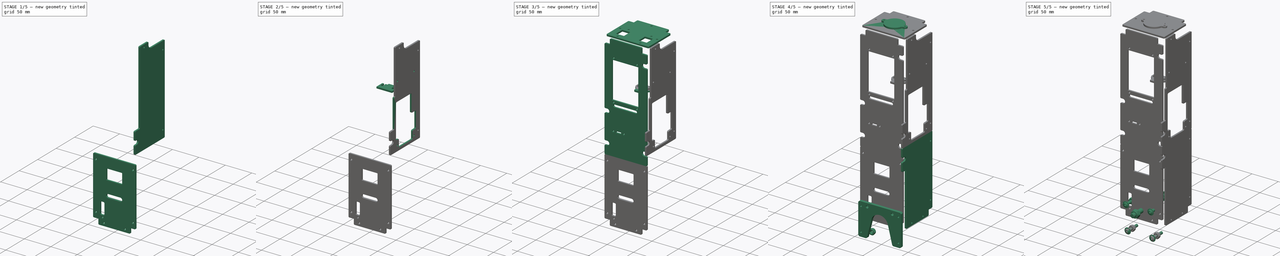
[diagram: build sequence overview — one tinted view per stage of 5, left to right]
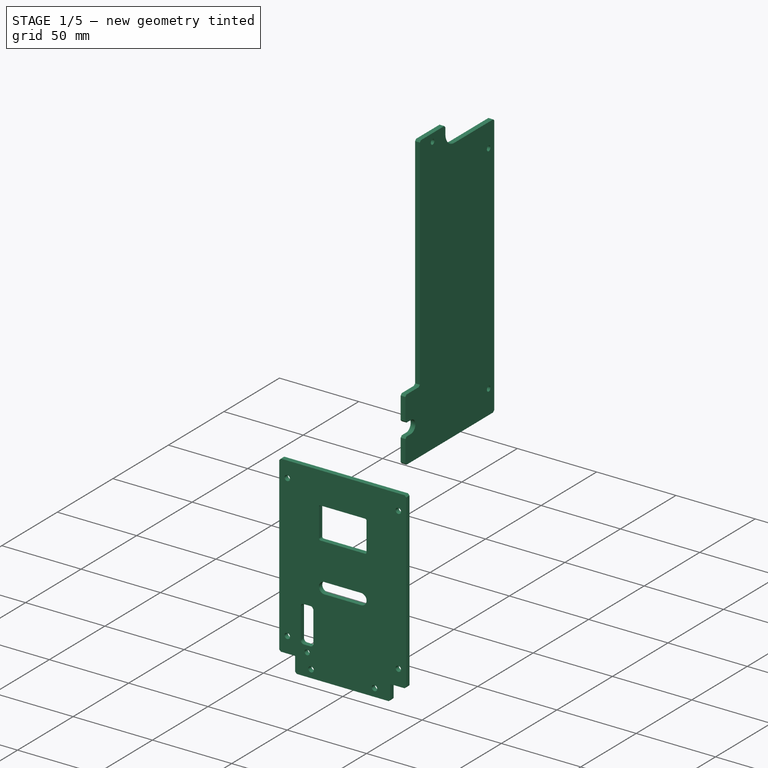
[diagram: stage 1 of 5 — iso view after this stage's code; geometry added in this stage tinted green]
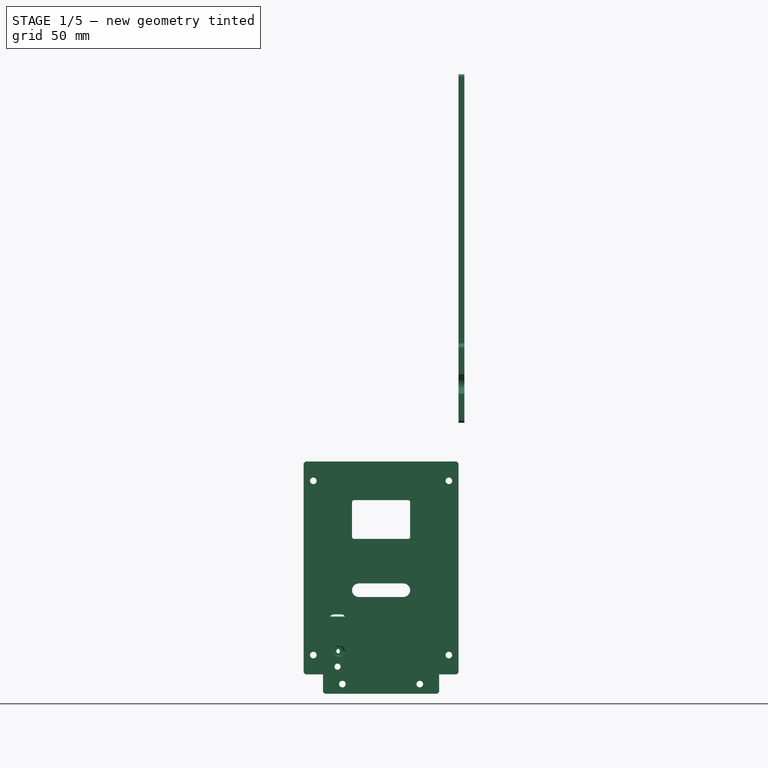
[diagram: stage 1 of 5 — front view after this stage's code; geometry added in this stage tinted green]
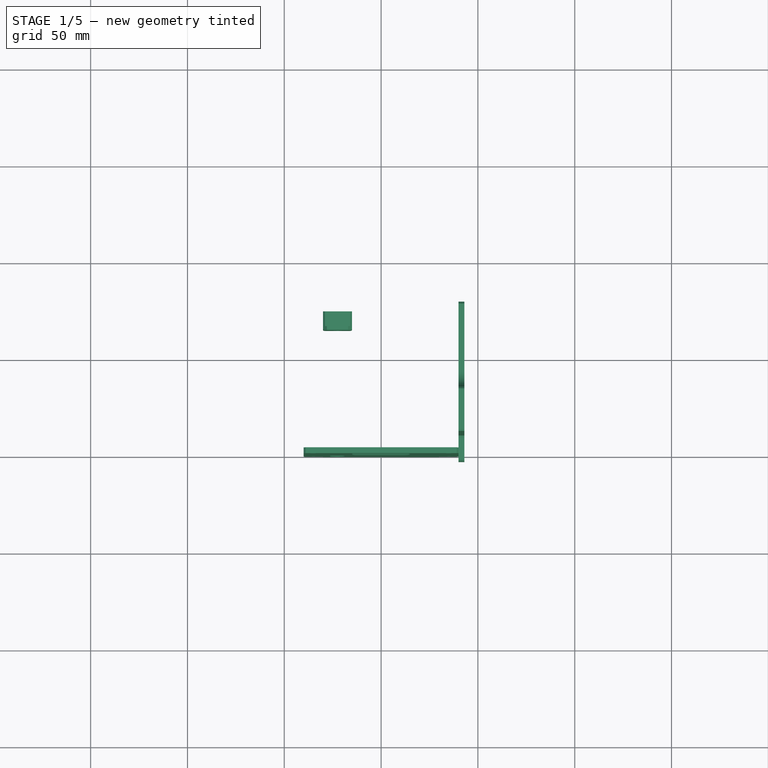
[diagram: stage 1 of 5 — top view after this stage's code; geometry added in this stage tinted green]
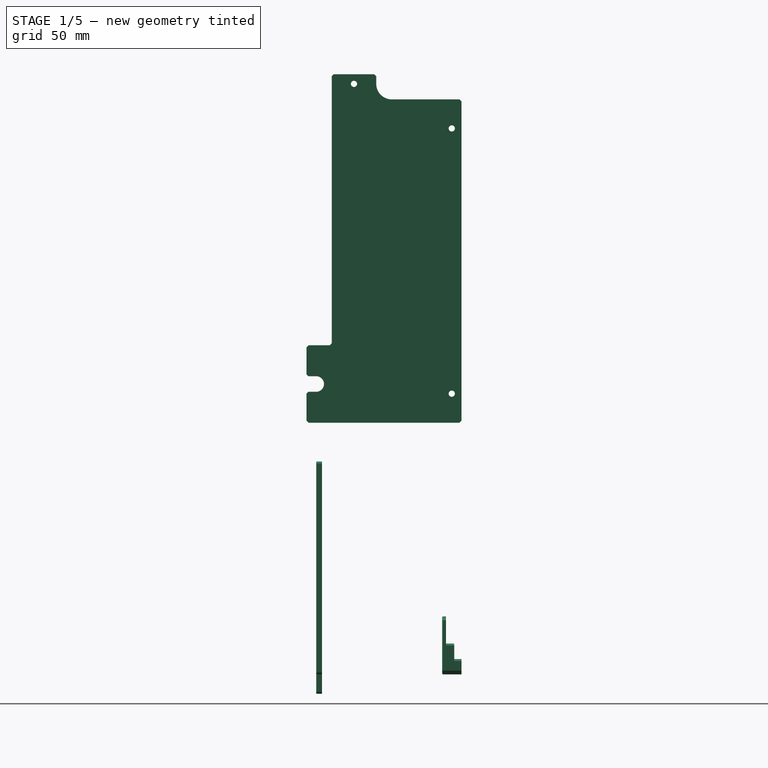
[diagram: stage 1 of 5 — right view after this stage's code; geometry added in this stage tinted green]
FCSTD DOCUMENT  (FreeCAD 2023.131R26244 +5365 (Git))
Label: colonne-moteur
License: Creative Commons Attribution-NoDerivatives
LicenseURL: http://creativecommons.org/licenses/by-nd/4.0/
objects: Sketcher::SketchObject×41, App::Link×26, PartDesign::Pocket×21, PartDesign::Pad×20, PartDesign::Chamfer×20, PartDesign::Body×18, TechDraw::DrawProjGroupItem×17, TechDraw::DrawProjGroup×17, TechDraw::DrawSVGTemplate×16, TechDraw::DrawPage×16, Part::FeaturePython×11, App::Part×8, PartDesign::Fillet×8, Part::SubShapeBinder×4, PartDesign::Plane×3, PartDesign::FeatureBase×3, PartDesign::SubShapeBinder×2, App::DocumentObjectGroup×2, PartDesign::Mirrored×1, Sketcher::SketchExport×1
note: 337 computed .brp shape members not serialized (recipe doc carries the construction recipe); baked Part::Feature solids carry a one-line shape summary decoded from their .brp
EXTERNAL_REF file=omniwheel.FCStd obj=Part016
EXTERNAL_REF file=generic-hardware.FCStd obj=_3HS16_0884S
EXTERNAL_REF file=generic-hardware.FCStd obj=Body004
EXTERNAL_REF file=generic-hardware.FCStd obj=Body003
EXTERNAL_REF file=generic-hardware.FCStd obj=Body001
EXTERNAL_REF file=structures.FCStd obj=Part004
EXTERNAL_REF file=structures.FCStd obj=Part005
EXTERNAL_REF file=structures.FCStd obj=Part006
EXTERNAL_REF file=structures.FCStd obj=Part
EXTERNAL_REF file=../robots_2023.FCStd obj=Part001

FEATURE [PartDesign::Body] Body072  label="CarterTop"
  AutoGroupSolids = false
  ClaimAllChildren = false
  ExportMode = 0
  Group = -> [Sketch152,Pad084,Chamfer055]
  InvalidShape = false
  Origin = -> Origin155
  Placement = pos=(0,35,320) rot=(0,0,1;0rad)
  SingleSolid = true
  Tip = -> Chamfer055
  TreeRank = 0
  ValidateShape = true
  _ExportChildren = -> [Pad084,Chamfer055]
  _GroupVersion = 1
FEATURE [Sketcher::SketchObject] Sketch151
  ArcFitTolerance = 0
  AttachmentSupport = -> [XZ_Plane088]
  ExternalBSplineMaxDegree = 0
  ExternalBSplineTolerance = 0
  FullyConstrained = true
  InternalTolerance = 1e-06
  InvalidShape = false
  MakeInternals = false
  MapMode = 5
  Placement = pos=(0,0,0) rot=(1,0,0;1.5708rad)
  Support = -> [XZ_Plane088]
  TreeRank = 0
  ValidateShape = true
  sketch-geometry (22):
    g0: LineSegment StartX=-30 StartY=0 StartZ=0 EndX=30 EndY=0 EndZ=0
    g1: LineSegment StartX=30 StartY=0 StartZ=0 EndX=30 EndY=10 EndZ=0
    g2: LineSegment StartX=30 StartY=10 StartZ=0 EndX=40 EndY=10 EndZ=0
    g3: LineSegment StartX=40 StartY=10 StartZ=0 EndX=40 EndY=120 EndZ=0
    g4: LineSegment StartX=40 StartY=120 StartZ=0 EndX=-40 EndY=120 EndZ=0
    g5: LineSegment StartX=-40 StartY=120 StartZ=0 EndX=-40 EndY=10 EndZ=0
    g6: LineSegment StartX=-40 StartY=10 StartZ=0 EndX=-30 EndY=10 EndZ=0
    g7: LineSegment StartX=-30 StartY=10 StartZ=0 EndX=-30 EndY=0 EndZ=0
    g8: LineSegment StartX=-15 StartY=100 StartZ=0 EndX=15 EndY=100 EndZ=0
    g9: LineSegment StartX=15 StartY=100 StartZ=0 EndX=15 EndY=80 EndZ=0
    g10: LineSegment StartX=15 StartY=80 StartZ=0 EndX=-15 EndY=80 EndZ=0
    g11: LineSegment StartX=-15 StartY=80 StartZ=0 EndX=-15 EndY=100 EndZ=0
    g12: ArcOfCircle CenterX=-11.5 CenterY=53.5 CenterZ=0 NormalX=0 NormalY=0 NormalZ=1 AngleXU=0 Radius=3.5 StartAngle=1.5708 EndAngle=4.71239
    g13: ArcOfCircle CenterX=11.5 CenterY=53.5 CenterZ=0 NormalX=0 NormalY=0 NormalZ=1 AngleXU=0 Radius=3.5 StartAngle=4.71239 EndAngle=7.85398
    g14: LineSegment StartX=-11.5 StartY=50 StartZ=0 EndX=11.5 EndY=50 EndZ=0
    g15: LineSegment StartX=-11.5 StartY=57 StartZ=0 EndX=11.5 EndY=57 EndZ=0
    g16: Circle CenterX=-35 CenterY=110 CenterZ=0 NormalX=0 NormalY=0 NormalZ=1 AngleXU=0 Radius=1.7
    g17: Circle CenterX=-35 CenterY=20 CenterZ=0 NormalX=0 NormalY=0 NormalZ=1 AngleXU=0 Radius=1.7
    g18: Circle CenterX=-20 CenterY=5 CenterZ=0 NormalX=0 NormalY=0 NormalZ=1 AngleXU=0 Radius=1.7
    g19: Circle CenterX=20 CenterY=5 CenterZ=0 NormalX=0 NormalY=0 NormalZ=1 AngleXU=0 Radius=1.7
    g20: Circle CenterX=35 CenterY=20 CenterZ=0 NormalX=0 NormalY=0 NormalZ=1 AngleXU=0 Radius=1.7
    g21: Circle CenterX=35 CenterY=110 CenterZ=0 NormalX=0 NormalY=0 NormalZ=1 AngleXU=0 Radius=1.7
  constraints (54):
    c: PointOnObject(g0,g-1)
    c: Coincident(g0,g1)
    c: Coincident(g1,g2)
    c: Horizontal(g2)
    c: Coincident(g2,g3)
    c: Vertical(g3)
    c: Coincident(g3,g4)
    c: Horizontal(g4)
    c: Coincident(g4,g5)
    c: Vertical(g5)
    c: Coincident(g5,g6)
    c: Horizontal(g6)
    c: Coincident(g6,g7)
    c: Coincident(g7,g0)
    c: Vertical(g7)
    c: Vertical(g1)
    c: Equal(g1,g2)
    c: Equal(g2,g6)
    c: Equal(g6,g7)
    c: DistanceX(g6,g6) = 10
    c: DistanceX(g0,g0) = 60
    c: Symmetric(g0,g0,g-1)
    c: DistanceY(g4) = 120
    c: Coincident(g8,g9)
    c: Coincident(g9,g10)
    c: Coincident(g10,g11)
    c: Coincident(g11,g8)
    c: Horizontal(g10)
    c: Vertical(g9)
    c: Vertical(g11)
    c: Symmetric(g8,g8,g-2)
    c: DistanceY(g8) = 100
    c: DistanceX(g8,g8) = 30
    c: DistanceY(g11,g11) = 20
    c: Tangent(g12,g15) = 1.5708
    c: Tangent(g12,g14) = -1.5708
    c: Tangent(g14,g13) = -1.5708
    c: Tangent(g15,g13) = 1.5708
    c: Horizontal(g14)
    c: Symmetric(g13,g12,g-2)
    c: DistanceY(g13) = 50
    c: DistanceY(g13) = 57
    c: Tangent(g9,g13)
    c: Diameter(g21) = 3.4
    c: Equal(g21, g16-g20) x5
    c: DistanceY(g16,g4) = 10
    c: Symmetric(g16,g21,g-2)
    c: Symmetric(g17,g20,g-2)
    c: Symmetric(g19,g18,g-2)
    c: DistanceY(g0,g18) = 5
    c: DistanceX(g0,g18) = 10
    c: DistanceY(g5,g17) = 10
    c: DistanceX(g5,g17) = 5
    c: DistanceX(g4,g16) = 5
FEATURE [PartDesign::Pad] Pad083
  AddSubType = 0
  AutoTaperInnerAngle = false
  CheckUpToFaceLimits = true
  ClaimChildren = false
  Direction = (1,1,1)
  Fit = 0
  FitJoin = 0
  InnerFit = 0
  InnerFitJoin = 0
  InvalidShape = false
  Length = 3
  Length2 = 100
  Linearize = true
  NewSolid = false
  Placement = pos=(0,0,0) rot=(1,0,0;1.5708rad)
  Profile = -> Sketch151
  Refine = true
  Reversed = true
  Suppress = false
  TaperInnerAngle = 0
  TaperInnerAngleRev = 0
  TreeRank = 0
  Type = 0
  ValidateShape = true
  _ProfileBasedVersion = 1
FEATURE [PartDesign::Chamfer] Chamfer054
  AddSubType = 0
  Angle = 45
  Base = -> Pad083 [Edge11,Edge14,Edge17,Edge1,Edge2,Edge8]
  BaseFeature = -> Pad083
  ChamferType = 0
  FlipDirection = false
  InvalidShape = false
  NewSolid = false
  Placement = pos=(0,0,0) rot=(1,0,0;1.5708rad)
  Refine = true
  Size = 1
  Size2 = 1
  SupportTransform = false
  Suppress = false
  TreeRank = 0
  ValidateShape = true
FEATURE [PartDesign::Fillet] Fillet055
  AddSubType = 0
  Base = -> Chamfer054 [Edge73,Edge74,Edge71,Edge72]
  BaseFeature = -> Chamfer054
  InvalidShape = false
  NewSolid = false
  Placement = pos=(0,0,0) rot=(1,0,0;1.5708rad)
  Radius = 1
  Refine = true
  SupportTransform = false
  Suppress = false
  TreeRank = 0
  ValidateShape = true
FEATURE [PartDesign::Body] Body086  label="CarterSide240*320"
  AutoGroupSolids = false
  ClaimAllChildren = false
  ExportMode = 0
  Group = -> [Sketch183,Pad098,Sketch184,Pocket028,Chamfer064,Sketch185,Pocket029,Sketch186,Pocket030,Sketch187,Pocket031]
  InvalidShape = false
  Origin = -> Origin174
  Placement = pos=(0,75,0) rot=(0,0,1;0rad)
  SingleSolid = true
  Tip = -> Pocket031
  TreeRank = 382
  ValidateShape = true
  _ExportChildren = -> [Pad098,Pocket028,Chamfer064,Pocket029,Pocket030,Pocket031]
  _GroupVersion = 1
FEATURE [TechDraw::DrawSVGTemplate] Template014
  Height = 210
  Orientation = 1
  TreeRank = 384
  Width = 297
FEATURE [TechDraw::DrawProjGroupItem] ProjItem015  label="Front015"
  CoarseView = false
  Direction = (0,1,0)
  Focus = 100
  HardHidden = false
  IsoCount = 0
  IsoHidden = false
  IsoVisible = false
  LockPosition = true
  Perspective = false
  Rotation = 0
  RotationVector = (1,0,0)
  ScaleType = 2
  SeamHidden = false
  SeamVisible = true
  SmoothHidden = false
  SmoothVisible = true
  Source = -> [Pocket031]
  TreeRank = 387
  Type = 0
  X = 0
  XDirection = (1,0,0)
  Y = 0
FEATURE [TechDraw::DrawProjGroup] ProjGroup015
  Anchor = -> ProjItem015
  AutoDistribute = true
  LockPosition = false
  ProjectionType = 0
  Rotation = 0
  ScaleType = 0
  Source = -> [Pocket031]
  TreeRank = 388
  Views = -> [ProjItem015]
  X = 44.4419
  Y = 105.663
  spacingX = 15
  spacingY = 15
FEATURE [TechDraw::DrawPage] Page014  label="Laser3mmCarterSide240-320"
  KeepUpdated = true
  NextBalloonIndex = 1
  ProjectionType = 0
  Template = -> Template014
  TreeRank = 385
  Views = -> [ProjGroup015]
FEATURE [TechDraw::DrawSVGTemplate] Template015
  Height = 210
  Orientation = 1
  TreeRank = 390
  Width = 297
FEATURE [TechDraw::DrawProjGroupItem] ProjItem016  label="Front016"
  CoarseView = false
  Direction = (0,0,1)
  Focus = 100
  HardHidden = false
  IsoCount = 0
  IsoHidden = false
  IsoVisible = false
  LockPosition = true
  Perspective = false
  Rotation = 0
  RotationVector = (0,1,0)
  ScaleType = 2
  SeamHidden = false
  SeamVisible = true
  SmoothHidden = false
  SmoothVisible = true
  Source = -> [Fillet065]
  TreeRank = 393
  Type = 0
  X = 0
  XDirection = (0,1,0)
  Y = 0
FEATURE [TechDraw::DrawProjGroup] ProjGroup016
  Anchor = -> ProjItem016
  AutoDistribute = true
  LockPosition = false
  ProjectionType = 0
  Rotation = 0
  ScaleType = 0
  Source = -> [Fillet065]
  TreeRank = 394
  Views = -> [ProjItem016]
  X = 14.285
  Y = 193.483
  spacingX = 15
  spacingY = 15
FEATURE [TechDraw::DrawPage] Page015  label="Laser3mmDiffuseur"
  KeepUpdated = true
  NextBalloonIndex = 1
  ProjectionType = 0
  Template = -> Template015
  TreeRank = 391
  Views = -> [ProjGroup016]
FEATURE [TechDraw::DrawSVGTemplate] Template016
  Height = 210
  Orientation = 1
  TreeRank = 415
  Width = 297
FEATURE [Part::SubShapeBinder] Import  label="Import(Chamfer001)"
  BindCopyOnChange = 0
  BindMode = 0
  ClaimChildren = false
  Context = -> <external ../robots_2023.FCStd>#Part001 [Link001.Group001.Link003.Body088.Import.]
  EdgeTolerance = 1e-06
  FillStyle = 0
  Fuse = false
  InvalidShape = false
  MakeFace = false
  MergeEdges = true
  OffsetFill = false
  OffsetIntersection = false
  OffsetJoinType = 0
  OffsetOpenResult = false
  Outline = false
  PartialLoad = false
  Relative = true
  SplitEdges = false
  Support = -> [Part[Body014.Chamfer001.]]
  TightBound = false
  TreeRank = 430
  ValidateShape = true
  _Version = 8
FEATURE [Sketcher::SketchObject] Sketch191
  ArcFitTolerance = 1e-06
  AttachmentSupport = -> [Import]
  ExternalBSplineMaxDegree = 5
  ExternalBSplineTolerance = 0.0001
  FullyConstrained = true
  InternalTolerance = 1e-06
  InvalidShape = false
  MakeInternals = true
  MapMode = 5
  Placement = pos=(0,65,1.44e-14) rot=(0,0.707107,0.707107;3.14159rad)
  Support = -> [Import]
  TreeRank = 431
  ValidateShape = true
  sketch-geometry (6):
    g0: LineSegment StartX=30 StartY=10 StartZ=0 EndX=15 EndY=10 EndZ=0
    g1: LineSegment StartX=15 StartY=10 StartZ=0 EndX=15 EndY=40 EndZ=0
    g2: LineSegment StartX=15 StartY=40 StartZ=0 EndX=30 EndY=40 EndZ=0
    g3: LineSegment StartX=30 StartY=40 StartZ=0 EndX=30 EndY=10 EndZ=0
    g4: Circle CenterX=22.5 CenterY=14 CenterZ=0 NormalX=0 NormalY=0 NormalZ=1 AngleXU=0 Radius=2.1
    g5: LineSegment [constr] StartX=22.5 StartY=10 StartZ=0 EndX=22.5 EndY=40 EndZ=0
  constraints (18):
    c: Coincident(g0,g1)
    c: Coincident(g1,g2)
    c: Coincident(g2,g3)
    c: Coincident(g3,g0)
    c: Horizontal(g0)
    c: Horizontal(g2)
    c: Vertical(g1)
    c: Vertical(g3)
    c: DistanceX(g2,g2) = 15
    c: DistanceY(g1,g1) = 30
    c: DistanceX(g-1,g0) = 30
    c: DistanceY(g-1,g0) = 10
    c: PointOnObject(g5,g0)
    c: Vertical(g5)
    c: Symmetric(g1,g2,g5)
    c: PointOnObject(g4,g5)
    c: Diameter(g4) = 4.2
    c: DistanceY(g5,g4) = 4
FEATURE [PartDesign::Pad] Pad101
  AddSubType = 0
  AlongSketchNormal = false
  AutoTaperInnerAngle = true
  CheckUpToFaceLimits = true
  ClaimChildren = false
  Direction = (0,1,2e-16)
  Fit = 0
  FitJoin = 0
  InnerFit = 0
  InnerFitJoin = 0
  InvalidShape = false
  Length = 10
  Length2 = 100
  Linearize = true
  NewSolid = false
  Profile = -> Sketch191
  Refine = true
  Suppress = false
  TaperInnerAngle = 0
  TaperInnerAngleRev = 0
  TreeRank = 432
  Type = 0
  ValidateShape = true
  _ProfileBasedVersion = 1
FEATURE [Sketcher::SketchObject] Sketch192
  ArcFitTolerance = 1e-06
  AttachmentSupport = -> [Pad101]
  ExternalBSplineMaxDegree = 5
  ExternalBSplineTolerance = 0.0001
  ExternalGeometry = -> [Pad101]
  FullyConstrained = true
  InternalTolerance = 1e-06
  InvalidShape = false
  MakeInternals = true
  MapMode = 5
  Placement = pos=(0,75,3.62e-14) rot=(0,0.707107,0.707107;3.14159rad)
  Support = -> [Pad101]
  TreeRank = 433
  ValidateShape = true
  sketch-geometry (4):
    g0: LineSegment StartX=15 StartY=40 StartZ=0 EndX=30 EndY=40 EndZ=0
    g1: LineSegment StartX=30 StartY=40 StartZ=0 EndX=30 EndY=18 EndZ=0
    g2: LineSegment StartX=30 StartY=18 StartZ=0 EndX=15 EndY=18 EndZ=0
    g3: LineSegment StartX=15 StartY=18 StartZ=0 EndX=15 EndY=40 EndZ=0
  constraints (10):
    c: Coincident(g0,g1)
    c: Coincident(g1,g2)
    c: Coincident(g2,g3)
    c: Coincident(g3,g0)
    c: Horizontal(g2)
    c: Vertical(g1)
    c: Vertical(g3)
    c: Coincident(g0,g-3)
    c: Coincident(g0,g-3)
    c: DistanceY(g-4,g2) = 8
FEATURE [PartDesign::Pocket] Pocket033
  AddSubType = 1
  AutoTaperInnerAngle = true
  BaseFeature = -> Pad101
  CheckUpToFaceLimits = true
  ClaimChildren = false
  Fit = 0
  FitJoin = 0
  InnerFit = 0
  InnerFitJoin = 0
  InvalidShape = false
  Length = 8
  Length2 = 100
  Linearize = true
  NewSolid = false
  Profile = -> Sketch192
  Refine = true
  Suppress = false
  TaperInnerAngle = 0
  TaperInnerAngleRev = 0
  TreeRank = 434
  Type = 0
  ValidateShape = true
  _ProfileBasedVersion = 1
  _Version = 1
FEATURE [Sketcher::SketchObject] Sketch193
  ArcFitTolerance = 1e-06
  AttachmentSupport = -> [Pocket033]
  ExternalBSplineMaxDegree = 5
  ExternalBSplineTolerance = 0.0001
  ExternalGeometry = -> [Pocket033]
  FullyConstrained = true
  InternalTolerance = 1e-06
  InvalidShape = false
  MakeInternals = true
  MapMode = 5
  Placement = pos=(0,67,0) rot=(0,0.707107,0.707107;3.14159rad)
  Support = -> [Pocket033]
  TreeRank = 435
  ValidateShape = true
  sketch-geometry (4):
    g0: LineSegment StartX=15 StartY=18 StartZ=0 EndX=30 EndY=18 EndZ=0
    g1: LineSegment StartX=30 StartY=18 StartZ=0 EndX=30 EndY=26 EndZ=0
    g2: LineSegment StartX=30 StartY=26 StartZ=0 EndX=15 EndY=26 EndZ=0
    g3: LineSegment StartX=15 StartY=26 StartZ=0 EndX=15 EndY=18 EndZ=0
  constraints (10):
    c: Coincident(g0,g1)
    c: Coincident(g1,g2)
    c: Coincident(g2,g3)
    c: Coincident(g3,g0)
    c: Horizontal(g2)
    c: Vertical(g1)
    c: Vertical(g3)
    c: Coincident(g0,g-3)
    c: Coincident(g0,g-3)
    c: DistanceY(g3,g3) = 8
FEATURE [PartDesign::Pad] Pad102
  AddSubType = 0
  AlongSketchNormal = false
  AutoTaperInnerAngle = true
  BaseFeature = -> Pocket033
  CheckUpToFaceLimits = true
  ClaimChildren = false
  Direction = (0,1,-2e-16)
  Fit = 0
  FitJoin = 0
  InnerFit = 0
  InnerFitJoin = 0
  InvalidShape = false
  Length = 1.5
  Length2 = 100
  Linearize = true
  NewSolid = false
  Profile = -> Sketch193
  Refine = true
  Suppress = false
  TaperInnerAngle = 0
  TaperInnerAngleRev = 0
  TreeRank = 436
  Type = 0
  ValidateShape = true
  _ProfileBasedVersion = 1
FEATURE [Sketcher::SketchObject] Sketch194
  ArcFitTolerance = 1e-06
  AttachmentSupport = -> [Pad102]
  ExternalBSplineMaxDegree = 5
  ExternalBSplineTolerance = 0.0001
  ExternalGeometry = -> [Pad102]
  FullyConstrained = true
  InternalTolerance = 1e-06
  InvalidShape = false
  MakeInternals = true
  MapMode = 5
  Placement = pos=(0,-8e-15,18) rot=(0,0,1;0rad)
  Support = -> [Pad102]
  TreeRank = 437
  ValidateShape = true
  sketch-geometry (4):
    g0: LineSegment [constr] StartX=0 StartY=75 StartZ=0 EndX=-22.5 EndY=75 EndZ=0
    g1: LineSegment [constr] StartX=-22.5 StartY=75 StartZ=0 EndX=-1.1511e-12 EndY=-45 EndZ=0
    g2: LineSegment StartX=-30 StartY=68.5 StartZ=0 EndX=-15 EndY=71.3125 EndZ=0
    g3: LineSegment StartX=-15 StartY=71.3125 StartZ=0 EndX=-15 EndY=68.5 EndZ=0
  constraints (11):
    c: PointOnObject(g0,g-2)
    c: Horizontal(g0)
    c: Coincident(g1,g0)
    c: PointOnObject(g1,g-2)
    c: DistanceY(g1,g0) = 120
    c: Symmetric(g-3,g-3,g0)
    c: Coincident(g2,g-4)
    c: Coincident(g3,g2)
    c: Coincident(g3,g-4)
    c: Vertical(g3)
    c: Perpendicular(g1,g2)
FEATURE [PartDesign::Pad] Pad103
  AddSubType = 0
  AlongSketchNormal = false
  AutoTaperInnerAngle = true
  BaseFeature = -> Pad102
  CheckUpToFaceLimits = true
  ClaimChildren = false
  Direction = (0,-4e-16,1)
  Fit = 0
  FitJoin = 0
  InnerFit = 0
  InnerFitJoin = 0
  InvalidShape = false
  Length = 10
  Length2 = 100
  Linearize = true
  NewSolid = false
  Profile = -> Sketch194
  Refine = true
  Suppress = false
  TaperInnerAngle = 0
  TaperInnerAngleRev = 0
  TreeRank = 438
  Type = 3
  UpToFace = -> Pad102 [Face9]
  ValidateShape = true
  _ProfileBasedVersion = 1
FEATURE [Sketcher::SketchObject] Sketch195
  ArcFitTolerance = 1e-06
  AttachmentSupport = -> [Pad103]
  ExternalBSplineMaxDegree = 5
  ExternalBSplineTolerance = 0.0001
  ExternalGeometry = -> [Pad103]
  FullyConstrained = true
  InternalTolerance = 1e-06
  InvalidShape = false
  MakeInternals = true
  MapMode = 5
  Placement = pos=(-13.4264,71.6075,3.18e-14) rot=(-0.065577,0.705585,0.705585;3.27256rad)
  Support = -> [Pad103]
  TreeRank = 439
  ValidateShape = true
  sketch-geometry (2):
    g0: LineSegment [constr] StartX=1.60101 StartY=26 StartZ=0 EndX=16.8624 EndY=18 EndZ=0
    g1: Circle CenterX=9.2317 CenterY=22 CenterZ=0 NormalX=0 NormalY=0 NormalZ=1 AngleXU=0 Radius=1.2
  constraints (4):
    c: Coincident(g0,g-3)
    c: Coincident(g0,g-4)
    c: Diameter(g1) = 2.4
    c: Symmetric(g-3,g-4,g1)
FEATURE [PartDesign::Pocket] Pocket034
  AddSubType = 1
  AutoTaperInnerAngle = true
  BaseFeature = -> Pad103
  CheckUpToFaceLimits = true
  ClaimChildren = false
  Fit = 0
  FitJoin = 0
  InnerFit = 0
  InnerFitJoin = 0
  InvalidShape = false
  Length = 5
  Length2 = 100
  Linearize = true
  NewSolid = false
  Profile = -> Sketch195
  Refine = true
  Suppress = false
  TaperInnerAngle = 0
  TaperInnerAngleRev = 0
  TreeRank = 440
  Type = 1
  ValidateShape = true
  _ProfileBasedVersion = 1
  _Version = 1
FEATURE [Sketcher::SketchObject] Sketch196
  ArcFitTolerance = 1e-06
  AttachmentOffset = pos=(0,0,-3) rot=(0,0,1;0rad)
  AttachmentSupport = -> [Pocket034]
  ExternalBSplineMaxDegree = 5
  ExternalBSplineTolerance = 0.0001
  ExternalGeometry = -> [Pocket034]
  FullyConstrained = true
  InternalTolerance = 1e-06
  InvalidShape = false
  MakeInternals = true
  MapMode = 5
  Placement = pos=(-12.8735,68.6589,3e-14) rot=(-0.065577,0.705585,0.705585;3.27256rad)
  Support = -> [Pocket034]
  TreeRank = 441
  ValidateShape = true
  sketch-geometry (7):
    g0: LineSegment StartX=6.63363 StartY=22 StartZ=0 EndX=7.93267 EndY=19.75 EndZ=0
    g1: LineSegment StartX=7.93267 StartY=19.75 StartZ=0 EndX=10.5307 EndY=19.75 EndZ=0
    g2: LineSegment StartX=10.5307 StartY=19.75 StartZ=0 EndX=11.8298 EndY=22 EndZ=0
    g3: LineSegment StartX=11.8298 StartY=22 StartZ=0 EndX=10.5307 EndY=24.25 EndZ=0
    g4: LineSegment StartX=10.5307 StartY=24.25 StartZ=0 EndX=7.93267 EndY=24.25 EndZ=0
    g5: LineSegment StartX=7.93267 StartY=24.25 StartZ=0 EndX=6.63363 EndY=22 EndZ=0
    g6: Circle [constr] CenterX=9.2317 CenterY=22 CenterZ=0 NormalX=0 NormalY=0 NormalZ=1 AngleXU=0 Radius=2.59808
  constraints (16):
    c: Coincident(g0,g1)
    c: Coincident(g1,g2)
    c: Coincident(g2,g3)
    c: Coincident(g3,g4)
    c: Coincident(g4,g5)
    c: Coincident(g5,g0)
    c: Equal(g0, g1-g5) x5
    c: PointOnObject(g0,g6)
    c: PointOnObject(g1,g6)
    c: PointOnObject(g2,g6)
    c: PointOnObject(g3,g6)
    c: PointOnObject(g4,g6)
    c: PointOnObject(g5,g6)
    c: Coincident(g6,g-3)
    c: Horizontal(g4)
    c: DistanceY(g1,g3) = 4.5
FEATURE [PartDesign::Pocket] Pocket035
  AddSubType = 1
  AutoTaperInnerAngle = true
  BaseFeature = -> Pocket034
  CheckUpToFaceLimits = true
  ClaimChildren = false
  Fit = 0
  FitJoin = 0
  InnerFit = 0
  InnerFitJoin = 0
  InvalidShape = false
  Length = 5
  Length2 = 100
  Linearize = true
  NewSolid = false
  Profile = -> Sketch196
  Refine = true
  Suppress = false
  TaperInnerAngle = 0
  TaperInnerAngleRev = 0
  TreeRank = 442
  Type = 0
  ValidateShape = true
  _ProfileBasedVersion = 1
  _Version = 1
FEATURE [PartDesign::Chamfer] Chamfer066
  AddSubType = 0
  Angle = 45
  Base = -> Pocket035 [Edge2,Edge1,Edge18,Edge6]
  BaseFeature = -> Pocket035
  ChamferType = 0
  FlipDirection = false
  InvalidShape = false
  NewSolid = false
  Refine = true
  Size = 2
  Size2 = 1
  SupportTransform = false
  Suppress = false
  TreeRank = 443
  ValidateShape = true
FEATURE [PartDesign::Chamfer] Chamfer067
  AddSubType = 0
  Angle = 45
  Base = -> Chamfer066 [Edge26,Edge58]
  BaseFeature = -> Chamfer066
  ChamferType = 0
  FlipDirection = false
  InvalidShape = false
  NewSolid = false
  Refine = true
  Size = 0.5
  Size2 = 1
  SupportTransform = false
  Suppress = false
  TreeRank = 444
  ValidateShape = true
FEATURE [PartDesign::Chamfer] Chamfer068
  AddSubType = 0
  Angle = 45
  Base = -> Chamfer067 [Edge27,Edge20,Edge26,Edge21]
  BaseFeature = -> Chamfer067
  ChamferType = 0
  FlipDirection = false
  InvalidShape = false
  NewSolid = false
  Refine = true
  Size = 1
  Size2 = 1
  SupportTransform = false
  Suppress = false
  TreeRank = 445
  ValidateShape = true
FEATURE [PartDesign::Chamfer] Chamfer069
  AddSubType = 0
  Angle = 45
  Base = -> Chamfer068 [Face12]
  BaseFeature = -> Chamfer068
  ChamferType = 0
  FlipDirection = false
  InvalidShape = false
  NewSolid = false
  Refine = true
  Size = 0.4
  Size2 = 1
  SupportTransform = false
  Suppress = false
  TreeRank = 446
  ValidateShape = true
FEATURE [PartDesign::Body] Body088  label="SupportPololuPOL4079"
  AutoGroupSolids = false
  ClaimAllChildren = false
  ExportMode = 0
  Group = -> [Import,Sketch191,Pad101,Sketch192,Pocket033,Sketch193,Pad102,Sketch194,Pad103,Sketch195,Pocket034,Sketch196,Pocket035,Chamfer066,Chamfer067,Chamfer068,Chamfer069]
  InvalidShape = false
  Origin = -> Origin176
  SingleSolid = true
  Tip = -> Chamfer069
  TreeRank = 429
  ValidateShape = true
  _ExportChildren = -> [Import,Pad101,Pocket033,Pad102,Pad103,Pocket034,Pocket035,Chamfer066,Chamfer067,Chamfer068,Chamfer069]
  _GroupVersion = 1
FEATURE [Part::SubShapeBinder] Import003  label="Import003(Chamfer069)"
  BindCopyOnChange = 0
  BindMode = 0
  ClaimChildren = false
  Context = -> <external ../robots_2023.FCStd>#Part001 [Link001.Group001.Link003.Part004.Body071.Import003.]
  EdgeTolerance = 1e-06
  FillStyle = 0
  Fuse = false
  InvalidShape = false
  MakeFace = false
  MergeEdges = true
  OffsetFill = false
  OffsetIntersection = false
  OffsetJoinType = 0
  OffsetOpenResult = false
  Outline = false
  PartialLoad = false
  Relative = true
  SplitEdges = false
  Support = -> [Body088[Chamfer069.]]
  TightBound = false
  TreeRank = 448
  ValidateShape = true
  _Version = 8
FEATURE [Sketcher::SketchObject] Sketch197
  ArcFitTolerance = 1e-06
  AttachmentSupport = -> [XZ_Plane088]
  ExternalBSplineMaxDegree = 5
  ExternalBSplineTolerance = 0.0001
  ExternalGeometry = -> [Import003]
  FullyConstrained = true
  InternalTolerance = 1e-06
  InvalidShape = false
  MakeInternals = true
  MapMode = 5
  Placement = pos=(0,0,0) rot=(1,0,0;1.5708rad)
  Support = -> [XZ_Plane088]
  TreeRank = 447
  ValidateShape = true
  sketch-geometry (6):
    g0: LineSegment StartX=-26.5 StartY=41 StartZ=0 EndX=-18.5 EndY=41 EndZ=0
    g1: LineSegment StartX=-18.5 StartY=41 StartZ=0 EndX=-18.5 EndY=18 EndZ=0
    g2: LineSegment StartX=-18.5 StartY=18 StartZ=0 EndX=-26.5 EndY=18 EndZ=0
    g3: LineSegment StartX=-26.5 StartY=18 StartZ=0 EndX=-26.5 EndY=41 EndZ=0
    g4: LineSegment [constr] StartX=-22.5 StartY=41 StartZ=0 EndX=-22.5 EndY=14 EndZ=0
    g5: Circle CenterX=-22.5 CenterY=14 CenterZ=0 NormalX=0 NormalY=0 NormalZ=1 AngleXU=0 Radius=1.6
  constraints (16):
    c: Coincident(g0,g1)
    c: Coincident(g1,g2)
    c: Coincident(g2,g3)
    c: Coincident(g3,g0)
    c: Horizontal(g0)
    c: Horizontal(g2)
    c: Vertical(g1)
    c: Vertical(g3)
    c: PointOnObject(g2,g-3)
    c: Coincident(g4,g-4)
    c: Vertical(g4)
    c: Symmetric(g0,g0,g4)
    c: DistanceX(g0,g0) = 8
    c: DistanceY(g1,g1) = 23
    c: Coincident(g5,g-4)
    c: Diameter(g5) = 3.2
FEATURE [PartDesign::Pocket] Pocket036
  AddSubType = 1
  AutoTaperInnerAngle = true
  BaseFeature = -> Fillet055
  CheckUpToFaceLimits = true
  ClaimChildren = false
  Fit = 0
  FitJoin = 0
  InnerFit = 0
  InnerFitJoin = 0
  InvalidShape = false
  Length = 5
  Length2 = 100
  Linearize = true
  NewSolid = false
  Profile = -> Sketch197
  Refine = true
  Suppress = false
  TaperInnerAngle = 0
  TaperInnerAngleRev = 0
  TreeRank = 449
  Type = 0
  ValidateShape = true
  _ProfileBasedVersion = 1
  _Version = 1
FEATURE [PartDesign::Fillet] Fillet067
  AddSubType = 0
  Base = -> Pocket036 [Edge75,Edge77,Edge72,Edge74]
  BaseFeature = -> Pocket036
  InvalidShape = false
  NewSolid = false
  Radius = 2
  Refine = true
  SupportTransform = false
  Suppress = false
  TreeRank = 450
  ValidateShape = true
FEATURE [PartDesign::Body] Body071  label="CarterMoteur"
  AutoGroupSolids = false
  ClaimAllChildren = false
  ExportMode = 0
  Group = -> [Sketch151,Pad083,Chamfer054,Fillet055,Sketch197,Import003,Pocket036,Fillet067]
  InvalidShape = false
  Origin = -> Origin154
  Placement = pos=(6.56498e-06,75,1.43051e-06) rot=(0,0,1;0rad)
  SingleSolid = true
  Tip = -> Fillet067
  TreeRank = 0
  ValidateShape = true
  _ExportChildren = -> [Pad083,Chamfer054,Fillet055,Import003,Pocket036,Fillet067]
  _GroupVersion = 1
FEATURE [App::Part] Part004  label="Carters"
  ClaimAllChildren = false
  ExportMode = 1
  Group = -> [Body071]
  Origin = -> Origin031
  TreeRank = 0
  _ExportChildren = -> [Body071]
  _GroupVersion = 1
FEATURE [App::Part] Part005  label="ColonneMoteur"
  ClaimAllChildren = false
  ExportMode = 1
  Group = -> [Part004,Part,Part002,Part003,Link025,Body088]
  Origin = -> Origin032
  TreeRank = 0
  _ExportChildren = -> [Part004,Part,Part002,Part003,Link025,Body088]
  _GroupVersion = 1
FEATURE [TechDraw::DrawProjGroupItem] ProjItem001  label="Front001"
  CoarseView = false
  Direction = (0,1,0)
  Focus = 100
  HardHidden = false
  IsoCount = 0
  IsoHidden = false
  IsoVisible = false
  LockPosition = true
  Perspective = false
  Rotation = 0
  RotationVector = (-1,0,0)
  ScaleType = 2
  SeamHidden = false
  SeamVisible = true
  SmoothHidden = false
  SmoothVisible = true
  Source = -> [Body071]
  TreeRank = 0
  Type = 0
  X = 0
  XDirection = (-1,0,0)
  Y = 0
FEATURE [TechDraw::DrawProjGroup] ProjGroup001
  Anchor = -> ProjItem001
  AutoDistribute = true
  LockPosition = false
  ProjectionType = 0
  Rotation = 0
  ScaleType = 0
  Source = -> [Body071]
  TreeRank = 0
  Views = -> [ProjItem001]
  X = 43.2673
  Y = 147.419
  spacingX = 15
  spacingY = 15
FEATURE [TechDraw::DrawPage] Page001  label="Laser3mmCarterMoteur"
  KeepUpdated = true
  NextBalloonIndex = 1
  ProjectionType = 0
  Template = -> Template001
  TreeRank = 0
  Views = -> [ProjGroup001]
FEATURE [App::DocumentObjectGroup] Group  label="Laser"
  ClaimAllChildren = true
  ExportMode = 1
  Group = -> [Page,Page001,Page002,Unfold_Sketch,Page003,Page004,Page005,Page006,Page007,Page008,Page009,Page010,Page011,Page013,Page014,Page015]
  TreeRank = 0
  _GroupVersion = 1
FEATURE [App::DocumentObjectGroup] Group001  label="EnsembleCarters"
  ClaimAllChildren = true
  ExportMode = 1
  Group = -> [Body,Body073,Body072,Body074,Body076,Part009,Body085,Body086,Body087]
  TreeRank = 264
  _GroupVersion = 1
FEATURE [PartDesign::Body] Body  label="CarterSup"
  AutoGroupSolids = false
  ClaimAllChildren = false
  ExportMode = 0
  Group = -> [Sketch,Export,Pad,Chamfer,Sketch158,Pocket014,Chamfer059,Sketch159,Pocket015]
  InvalidShape = false
  Origin = -> Origin157
  SingleSolid = true
  Tip = -> Pocket015
  TreeRank = 11
  ValidateShape = true
  _ExportChildren = -> [Pad,Chamfer,Pocket014,Chamfer059,Pocket015]
  _GroupVersion = 1
FEATURE [Sketcher::SketchObject] Sketch
  ArcFitTolerance = 0
  AttachmentOffset = pos=(0,0,40) rot=(0,0,1;0rad)
  AttachmentSupport = -> [YZ_Plane090]
  Exports = -> [Export]
  ExternalBSplineMaxDegree = 0
  ExternalBSplineTolerance = 0
  FullyConstrained = true
  InternalTolerance = 1e-06
  InvalidShape = false
  MakeInternals = false
  MapMode = 5
  Placement = pos=(40,-8.9e-15,8.9e-15) rot=(0.57735,0.57735,0.57735;2.0944rad)
  Support = -> [YZ_Plane090]
  TreeRank = 12
  ValidateShape = true
  expr: Constraints[16] = 3 + 5
  sketch-geometry (17):
    g0: LineSegment StartX=8 StartY=320 StartZ=0 EndX=31 EndY=320 EndZ=0
    g1: LineSegment StartX=8 StartY=320 StartZ=0 EndX=8 EndY=180 EndZ=0
    g2: LineSegment StartX=8 StartY=180 StartZ=0 EndX=-5 EndY=180 EndZ=0
    g3: LineSegment StartX=-5 StartY=180 StartZ=0 EndX=-5 EndY=164 EndZ=0
    g4: LineSegment StartX=-5 StartY=140 StartZ=0 EndX=75 EndY=140 EndZ=0
    g5: LineSegment StartX=75 StartY=140 StartZ=0 EndX=75 EndY=307 EndZ=0
    g6: LineSegment StartX=75 StartY=307 StartZ=0 EndX=39 EndY=307 EndZ=0
    g7: LineSegment StartX=31 StartY=320 StartZ=0 EndX=31 EndY=315 EndZ=0
    g8: ArcOfCircle CenterX=39 CenterY=315 CenterZ=0 NormalX=0 NormalY=0 NormalZ=1 AngleXU=0 Radius=8 StartAngle=3.14159 EndAngle=4.71239
    g9: ArcOfCircle CenterX=4.1873e-12 CenterY=160 CenterZ=0 NormalX=0 NormalY=0 NormalZ=1 AngleXU=0 Radius=4 StartAngle=4.71239 EndAngle=7.85398
    g10: LineSegment StartX=-5 StartY=156 StartZ=0 EndX=4.56684e-11 EndY=156 EndZ=0
    g11: LineSegment StartX=4.17683e-11 StartY=164 StartZ=0 EndX=-5 EndY=164 EndZ=0
    g12: Circle CenterX=19.5 CenterY=315 CenterZ=0 NormalX=0 NormalY=0 NormalZ=1 AngleXU=0 Radius=1.6
    g13: Circle CenterX=70 CenterY=292 CenterZ=0 NormalX=0 NormalY=0 NormalZ=1 AngleXU=0 Radius=1.6
    g14: Circle CenterX=70 CenterY=155 CenterZ=0 NormalX=0 NormalY=0 NormalZ=1 AngleXU=0 Radius=1.6
    g15: LineSegment [constr] StartX=19.5 StartY=315 StartZ=0 EndX=19.5 EndY=320 EndZ=0
    g16: LineSegment StartX=-5 StartY=156 StartZ=0 EndX=-5 EndY=140 EndZ=0
  constraints (48):
    c: Horizontal(g0)
    c: Coincident(g0,g1)
    c: Vertical(g1)
    c: Coincident(g1,g2)
    c: Horizontal(g2)
    c: Coincident(g2,g3)
    c: Vertical(g3)
    c: Coincident(g16,g4)
    c: Horizontal(g4)
    c: Coincident(g4,g5)
    c: Vertical(g5)
    c: Coincident(g5,g6)
    c: Horizontal(g6)
    c: Coincident(g0,g7)
    c: Vertical(g7)
    c: DistanceY(g0) = 320
    c: DistanceX(g0) = 8
    c: DistanceX(g8) = 39
    c: DistanceY(g7,g7) = 5
    c: Tangent(g8,g7) = -1.5708
    c: Tangent(g8,g6) = 1.5708
    c: DistanceX(g5) = 75
    c: Radius(g8) = 8
    c: DistanceY(g2) = 180
    c: DistanceX(g2) = -5
    c: DistanceY(g16,g3) = 40
    c: Tangent(g10,g9) = -1.5708
    c: Tangent(g9,g11) = -1.5708
    c: Horizontal(g11)
    c: PointOnObject(g9,g-2)
    c: Radius(g9) = 4
    c: Vertical(g14,g13)
    c: DistanceX(g13,g5) = 5
    c: DistanceY(g13,g5) = 15
    c: DistanceY(g4,g14) = 15
    c: Equal(g14,g13)
    c: Equal(g14,g12)
    c: Diameter(g14) = 3.2
    c: Coincident(g15,g12)
    c: Vertical(g15)
    c: Symmetric(g0,g0,g15)
    c: DistanceY(g12,g15) = 5
    c: Equal(g3,g16)
    c: Coincident(g10,g16)
    c: Vertical(g16)
    c: Horizontal(g10)
    c: DistanceX(g4,g9) = 5
    c: Coincident(g3,g11)
FEATURE [Sketcher::SketchExport] Export
  Base = -> Sketch
  BaseRefs = -> Sketch [vertex1,vertex2,edge1,vertex3,vertex4,edge2,vertex5,vertex6,edge3,vertex7,vertex8,edge4,vertex9,vertex10,edge5,vertex11,vertex12,edge6,vertex13,vertex14,edge7,vertex15,vertex16,edge8,edge9,vertex17,vertex18,vertex19]
  InvalidShape = false
  Placement = pos=(40,-8.9e-15,8.9e-15) rot=(0.57735,0.57735,0.57735;2.0944rad)
  Refs = ;g1v1.vertex1 | ;g1v2.vertex2 | ;g1.edge1 | ;g2v1.vertex3 | ;g2v2.vertex4 | ;g2.edge2 | ;g3v1.vertex5 | ;g3v2.vertex6 | ;g3.edge3 | ;g4v1.vertex7 | ;g4v2.vertex8 | ;g4.edge4 | ;g5v1.vertex9 | ;g5v2.vertex10 | ;g5.edge5 | ;g6v1.vertex11 | ;g6v2.vertex12 | ;g6.edge6 | ;g7v1.vertex13 | ;g7v2.vertex14 | ;g7.edge7 | ;g8v1.vertex15 | ;g8v2.vertex16 | ;g8.edge8 | ;g9.edge9 | ;g9v1.vertex17 | ;g9v2.vertex18 | ;g9v3.vertex19
  SyncPlacement = true
  TreeRank = 13
  ValidateShape = true
FEATURE [PartDesign::Pad] Pad
  AddSubType = 0
  AlongSketchNormal = false
  AutoTaperInnerAngle = false
  CheckUpToFaceLimits = true
  ClaimChildren = false
  Direction = (1,-2e-16,3e-16)
  Fit = 0
  FitJoin = 0
  InnerFit = 0
  InnerFitJoin = 0
  InvalidShape = false
  Length = 3
  Length2 = 100
  Linearize = true
  NewSolid = false
  Placement = pos=(0,0,0) rot=(0.57735,0.57735,0.57735;2.0944rad)
  Profile = -> Sketch
  Refine = true
  Suppress = false
  TaperInnerAngle = 0
  TaperInnerAngleRev = 0
  TreeRank = 14
  Type = 0
  ValidateShape = true
  _ProfileBasedVersion = 1
FEATURE [PartDesign::Chamfer] Chamfer
  AddSubType = 0
  Angle = 45
  Base = -> Pad [Edge11,Edge14,Edge8,Edge1,Edge35,Edge32,Edge29,Edge17,Edge20]
  BaseFeature = -> Pad
  ChamferType = 0
  FlipDirection = false
  InvalidShape = false
  NewSolid = false
  Placement = pos=(0,0,0) rot=(0.57735,0.57735,0.57735;2.0944rad)
  Refine = true
  Size = 1
  Size2 = 1
  SupportTransform = false
  Suppress = false
  TreeRank = 15
  ValidateShape = true
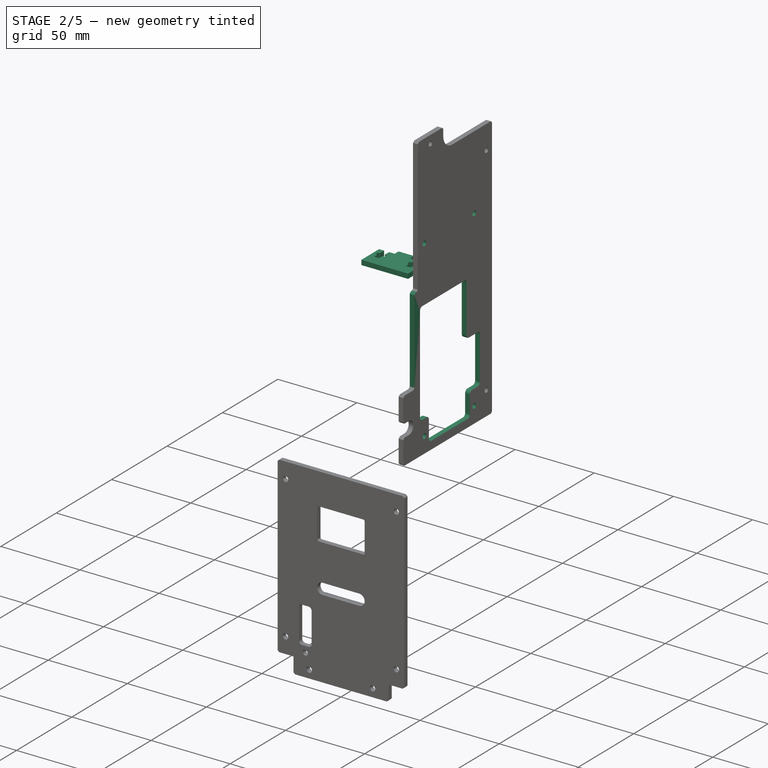
[diagram: stage 2 of 5 — iso view after this stage's code; geometry added in this stage tinted green]
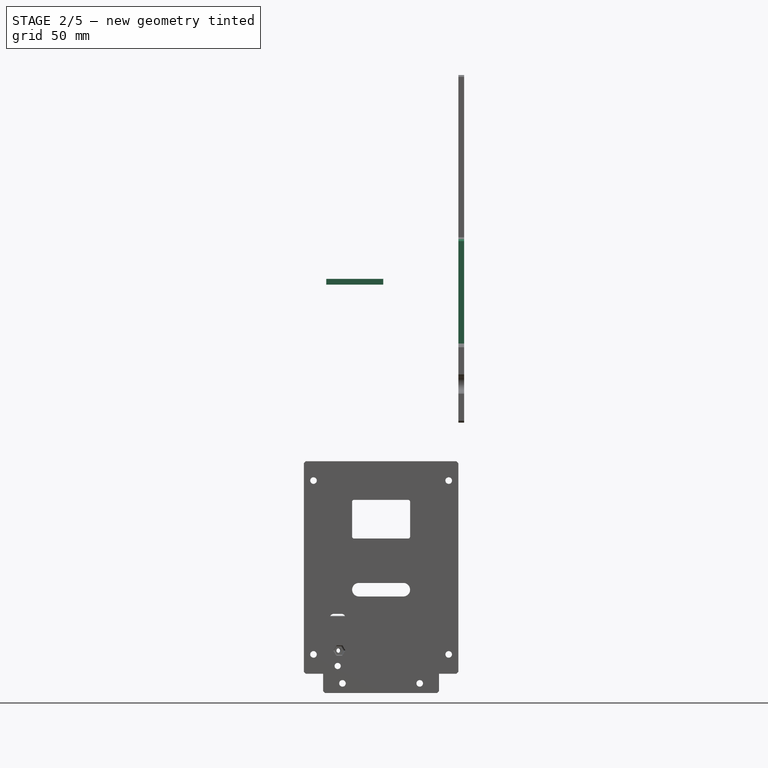
[diagram: stage 2 of 5 — front view after this stage's code; geometry added in this stage tinted green]
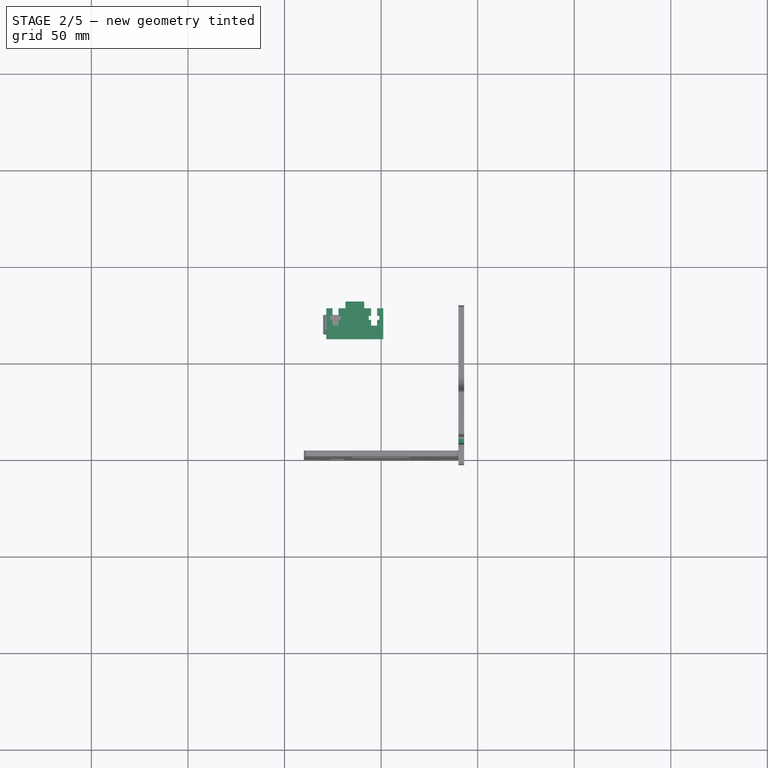
[diagram: stage 2 of 5 — top view after this stage's code; geometry added in this stage tinted green]
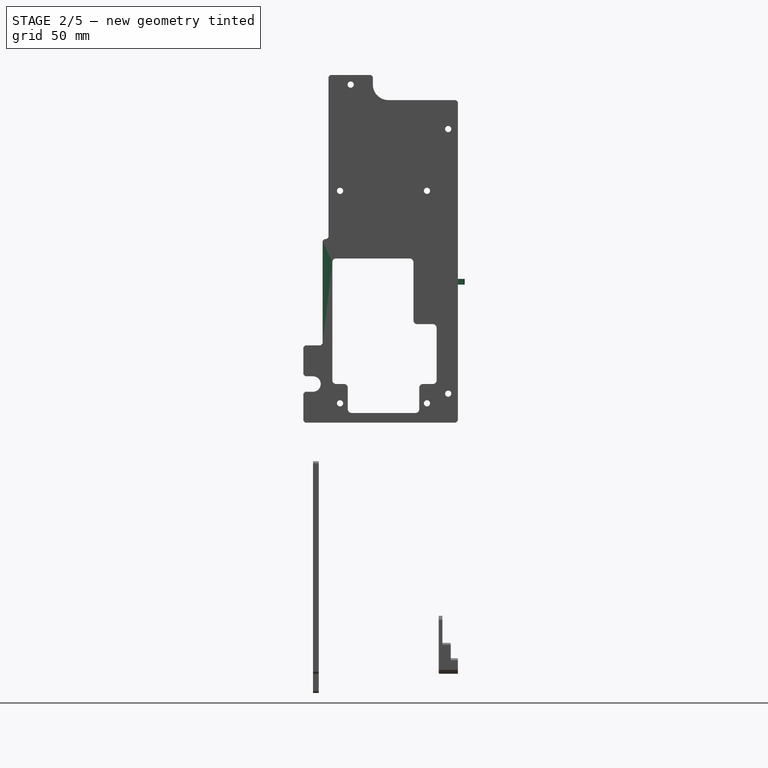
[diagram: stage 2 of 5 — right view after this stage's code; geometry added in this stage tinted green]
FEATURE [TechDraw::DrawSVGTemplate] Template002
  Height = 210
  Orientation = 1
  TreeRank = 46
  Width = 297
FEATURE [Sketcher::SketchObject] Unfold_Sketch
  ArcFitTolerance = 0
  ExternalBSplineMaxDegree = 0
  ExternalBSplineTolerance = 0
  FullyConstrained = false
  InternalTolerance = 1e-06
  InvalidShape = false
  MakeInternals = false
  TreeRank = 87
  ValidateShape = true
  sketch-geometry (15):
    g0: LineSegment StartX=-20 StartY=-87.4558 StartZ=0 EndX=-19 EndY=-88.4558 EndZ=0
    g1: LineSegment StartX=-1 StartY=-88.4558 StartZ=0 EndX=-19 EndY=-88.4558 EndZ=0
    g2: LineSegment StartX=4.9e-15 StartY=-87.4558 StartZ=0 EndX=-1 EndY=-88.4558 EndZ=0
    g3: LineSegment StartX=0 StartY=-75 StartZ=0 EndX=0 EndY=-87.4558 EndZ=0
    g4: LineSegment StartX=19 StartY=-75 StartZ=0 EndX=0 EndY=-75 EndZ=0
    g5: LineSegment StartX=19 StartY=-75 StartZ=0 EndX=20 EndY=-74 EndZ=0
    g6: LineSegment StartX=20 StartY=-61 StartZ=0 EndX=20 EndY=-74 EndZ=0
    g7: LineSegment StartX=19 StartY=-60 StartZ=0 EndX=20 EndY=-61 EndZ=0
    g8: LineSegment StartX=19 StartY=-60 StartZ=0 EndX=-10 EndY=-60 EndZ=0
    g9: ArcOfCircle CenterX=-10 CenterY=-70 CenterZ=0 NormalX=0 NormalY=0 NormalZ=1 AngleXU=0 Radius=10 StartAngle=1.5708 EndAngle=3.14159
    g10: LineSegment StartX=-20 StartY=-70 StartZ=0 EndX=-20 EndY=-87.4558 EndZ=0
    g11: Circle CenterX=-5 CenterY=-83.9558 CenterZ=0 NormalX=0 NormalY=0 NormalZ=1 AngleXU=1.5708 Radius=1.6
    g12: Circle CenterX=-13 CenterY=-83.9558 CenterZ=0 NormalX=0 NormalY=0 NormalZ=1 AngleXU=1.5708 Radius=1.6
    g13: Circle CenterX=10 CenterY=-70.5 CenterZ=0 NormalX=0 NormalY=0 NormalZ=-1 AngleXU=-1.5708 Radius=1.6
    g14: LineSegment StartX=-20 StartY=-76.7279 StartZ=0 EndX=0 EndY=-76.7279 EndZ=0
FEATURE [TechDraw::DrawSVGTemplate] Template003
  Height = 210
  Orientation = 1
  TreeRank = 89
  Width = 297
FEATURE [TechDraw::DrawProjGroupItem] ProjItem003  label="Front003"
  CoarseView = false
  Direction = (0,0,1)
  Focus = 100
  HardHidden = false
  IsoCount = 0
  IsoHidden = false
  IsoVisible = false
  LockPosition = true
  Perspective = false
  Rotation = 0
  RotationVector = (0,1,0)
  ScaleType = 2
  SeamHidden = false
  SeamVisible = true
  SmoothHidden = false
  SmoothVisible = true
  Source = -> [Unfold_Sketch]
  TreeRank = 92
  Type = 0
  X = 0
  XDirection = (0,1,0)
  Y = 0
FEATURE [TechDraw::DrawProjGroup] ProjGroup003
  Anchor = -> ProjItem003
  AutoDistribute = true
  LockPosition = false
  ProjectionType = 0
  Rotation = 0
  ScaleType = 0
  Source = -> [Unfold_Sketch]
  TreeRank = 93
  Views = -> [ProjItem003]
  X = 15.4001
  Y = 188.736
  spacingX = 15
  spacingY = 15
FEATURE [TechDraw::DrawPage] Page003  label="Laser3mmAngleDrageChain"
  KeepUpdated = true
  NextBalloonIndex = 1
  ProjectionType = 0
  Template = -> Template003
  TreeRank = 90
  Views = -> [ProjGroup003]
FEATURE [TechDraw::DrawSVGTemplate] Template004
  Height = 210
  Orientation = 1
  TreeRank = 98
  Width = 297
FEATURE [Sketcher::SketchObject] Sketch160
  ArcFitTolerance = 0
  AttachmentSupport = -> [XZ_Plane095]
  ExternalBSplineMaxDegree = 0
  ExternalBSplineTolerance = 0
  FullyConstrained = true
  InternalTolerance = 1e-06
  InvalidShape = false
  MakeInternals = false
  MapMode = 5
  Placement = pos=(0,0,0) rot=(0,0.707107,0.707107;3.14159rad)
  Support = -> [XZ_Plane095]
  TreeRank = 115
  ValidateShape = true
  sketch-geometry (8):
    g0: LineSegment StartX=-40 StartY=310 StartZ=0 EndX=-30 EndY=310 EndZ=0
    g1: LineSegment StartX=-30 StartY=310 StartZ=0 EndX=-30 EndY=320 EndZ=0
    g2: LineSegment StartX=-30 StartY=320 StartZ=0 EndX=30 EndY=320 EndZ=0
    g3: LineSegment StartX=30 StartY=320 StartZ=0 EndX=30 EndY=310 EndZ=0
    g4: LineSegment StartX=30 StartY=310 StartZ=0 EndX=40 EndY=310 EndZ=0
    g5: LineSegment StartX=40 StartY=310 StartZ=0 EndX=40 EndY=120 EndZ=0
    g6: LineSegment StartX=40 StartY=120 StartZ=0 EndX=-40 EndY=120 EndZ=0
    g7: LineSegment StartX=-40 StartY=120 StartZ=0 EndX=-40 EndY=310 EndZ=0
  constraints (23):
    c: Horizontal(g0)
    c: Coincident(g0,g1)
    c: Vertical(g1)
    c: Coincident(g1,g2)
    c: Coincident(g2,g3)
    c: Vertical(g3)
    c: Coincident(g3,g4)
    c: Horizontal(g4)
    c: Coincident(g4,g5)
    c: Vertical(g5)
    c: Coincident(g5,g6)
    c: Horizontal(g6)
    c: Coincident(g6,g7)
    c: Coincident(g7,g0)
    c: Vertical(g7)
    c: Equal(g0,g1)
    c: Equal(g1,g3)
    c: Equal(g3,g4)
    c: DistanceY(g1,g1) = 10
    c: Symmetric(g1,g2,g-2)
    c: DistanceX(g2,g2) = 60
    c: DistanceY(g2) = 320
    c: DistanceY(g5) = 120
FEATURE [PartDesign::Pad] Pad087
  AddSubType = 0
  AlongSketchNormal = false
  AutoTaperInnerAngle = false
  CheckUpToFaceLimits = true
  ClaimChildren = false
  Direction = (0,1,-2e-16)
  Fit = 0
  FitJoin = 0
  InnerFit = 0
  InnerFitJoin = 0
  InvalidShape = false
  Length = 3
  Length2 = 100
  Linearize = true
  NewSolid = false
  Placement = pos=(0,0,0) rot=(1,0,0;1.5708rad)
  Profile = -> Sketch160
  Refine = true
  Suppress = false
  TaperInnerAngle = 0
  TaperInnerAngleRev = 0
  TreeRank = 116
  Type = 0
  ValidateShape = true
  _ProfileBasedVersion = 1
FEATURE [Sketcher::SketchObject] Sketch161
  ArcFitTolerance = 0
  AttachmentSupport = -> [XZ_Plane095]
  ExternalBSplineMaxDegree = 0
  ExternalBSplineTolerance = 0
  ExternalGeometry = -> [Pad087]
  FullyConstrained = true
  InternalTolerance = 1e-06
  InvalidShape = false
  MakeInternals = false
  MapMode = 5
  Placement = pos=(0,0,0) rot=(0,0.707107,0.707107;3.14159rad)
  Support = -> [XZ_Plane095]
  TreeRank = 117
  ValidateShape = true
  sketch-geometry (20):
    g0: ArcOfCircle CenterX=-40 CenterY=290 CenterZ=0 NormalX=0 NormalY=0 NormalZ=1 AngleXU=0 Radius=4 StartAngle=1.5708 EndAngle=4.71239
    g1: ArcOfCircle CenterX=-35 CenterY=290 CenterZ=0 NormalX=0 NormalY=0 NormalZ=1 AngleXU=0 Radius=4 StartAngle=4.71239 EndAngle=7.85398
    g2: LineSegment StartX=-40 StartY=286 StartZ=0 EndX=-35 EndY=286 EndZ=0
    g3: LineSegment StartX=-35 StartY=294 StartZ=0 EndX=-40 EndY=294 EndZ=0
    g4: ArcOfCircle CenterX=-40 CenterY=140 CenterZ=0 NormalX=0 NormalY=0 NormalZ=1 AngleXU=0 Radius=4 StartAngle=1.5708 EndAngle=4.71239
    g5: ArcOfCircle CenterX=-35 CenterY=140 CenterZ=0 NormalX=0 NormalY=0 NormalZ=1 AngleXU=0 Radius=4 StartAngle=4.71239 EndAngle=7.85398
    g6: LineSegment StartX=-40 StartY=136 StartZ=0 EndX=-35 EndY=136 EndZ=0
    g7: LineSegment StartX=-35 StartY=144 StartZ=0 EndX=-40 EndY=144 EndZ=0
    g8: ArcOfCircle CenterX=40 CenterY=140 CenterZ=0 NormalX=0 NormalY=0 NormalZ=1 AngleXU=0 Radius=4 StartAngle=4.71239 EndAngle=7.85398
    g9: ArcOfCircle CenterX=35 CenterY=140 CenterZ=0 NormalX=0 NormalY=0 NormalZ=1 AngleXU=0 Radius=4 StartAngle=1.5708 EndAngle=4.71239
    g10: LineSegment StartX=40 StartY=144 StartZ=0 EndX=35 EndY=144 EndZ=0
    g11: LineSegment StartX=35 StartY=136 StartZ=0 EndX=40 EndY=136 EndZ=0
    g12: ArcOfCircle [constr] CenterX=40 CenterY=290 CenterZ=0 NormalX=0 NormalY=0 NormalZ=1 AngleXU=0 Radius=4 StartAngle=4.71239 EndAngle=7.85398
    g13: ArcOfCircle [constr] CenterX=35 CenterY=290 CenterZ=0 NormalX=0 NormalY=0 NormalZ=1 AngleXU=0 Radius=4 StartAngle=1.5708 EndAngle=4.71239
    g14: LineSegment [constr] StartX=40 StartY=294 StartZ=0 EndX=35 EndY=294 EndZ=0
    g15: LineSegment [constr] StartX=35 StartY=286 StartZ=0 EndX=40 EndY=286 EndZ=0
    g16: ArcOfCircle CenterX=40 CenterY=195 CenterZ=0 NormalX=0 NormalY=0 NormalZ=1 AngleXU=0 Radius=4 StartAngle=4.71239 EndAngle=7.85398
    g17: ArcOfCircle CenterX=35 CenterY=195 CenterZ=0 NormalX=0 NormalY=0 NormalZ=1 AngleXU=0 Radius=4 StartAngle=1.5708 EndAngle=4.71239
    g18: LineSegment StartX=40 StartY=199 StartZ=0 EndX=35 EndY=199 EndZ=0
    g19: LineSegment StartX=35 StartY=191 StartZ=0 EndX=40 EndY=191 EndZ=0
  constraints (50):
    c: Tangent(g0,g2) = -1.5708
    c: Tangent(g2,g1) = -1.5708
    c: Tangent(g1,g3) = -1.5708
    c: Tangent(g3,g0) = -1.5708
    c: Equal(g0,g1)
    c: Tangent(g4,g6) = -1.5708
    c: Tangent(g6,g5) = -1.5708
    c: Tangent(g5,g7) = -1.5708
    c: Tangent(g7,g4) = -1.5708
    c: Equal(g4,g5)
    c: Tangent(g8,g10) = -1.5708
    c: Tangent(g10,g9) = -1.5708
    c: Tangent(g9,g11) = -1.5708
    c: Tangent(g11,g8) = -1.5708
    c: Equal(g8,g9)
    c: Tangent(g12,g14) = -1.5708
    c: Tangent(g14,g13) = -1.5708
    c: Tangent(g13,g15) = -1.5708
    c: Tangent(g15,g12) = -1.5708
    c: Equal(g12,g13)
    c: Horizontal(g0,g1)
    c: Horizontal(g13,g12)
    c: Horizontal(g13,g1)
    c: Horizontal(g8,g9)
    c: Horizontal(g9,g5)
    c: Horizontal(g5,g4)
    c: Equal(g9,g5)
    c: Equal(g5,g1)
    c: Equal(g1,g13)
    c: Equal(g15,g2)
    c: Equal(g2,g7)
    c: Equal(g7,g10)
    c: PointOnObject(g12,g-4)
    c: PointOnObject(g0,g-3)
    c: PointOnObject(g4,g-3)
    c: PointOnObject(g8,g-4)
    c: DistanceX(g13,g12) = 5
    c: Radius(g13) = 4
    c: DistanceY(g12,g-4) = 20
    c: DistanceY(g-4,g8) = 20
    c: Tangent(g16,g18) = -1.5708
    c: Tangent(g18,g17) = -1.5708
    c: Tangent(g17,g19) = -1.5708
    c: Tangent(g19,g16) = -1.5708
    c: Equal(g16,g17)
    c: PointOnObject(g16,g-4)
    c: Horizontal(g16,g17)
    c: Equal(g16,g12)
    c: Equal(g18,g15)
    c: DistanceY(g8,g16) = 55
FEATURE [PartDesign::Pocket] Pocket016
  AddSubType = 1
  AutoTaperInnerAngle = false
  BaseFeature = -> Pad087
  CheckUpToFaceLimits = true
  ClaimChildren = false
  Fit = 0
  FitJoin = 0
  InnerFit = 0
  InnerFitJoin = 0
  InvalidShape = false
  Length = 5
  Length2 = 100
  Linearize = true
  NewSolid = false
  Placement = pos=(0,0,0) rot=(1,0,0;1.5708rad)
  Profile = -> Sketch161
  Refine = true
  Reversed = true
  Suppress = false
  TaperInnerAngle = 0
  TaperInnerAngleRev = 0
  TreeRank = 118
  Type = 1
  ValidateShape = true
  _ProfileBasedVersion = 1
  _Version = 1
FEATURE [PartDesign::Chamfer] Chamfer060
  AddSubType = 0
  Angle = 45
  Base = -> Pocket016 [Edge1,Edge8,Edge7,Edge71,Edge56,Edge54,Edge70,Edge67,Edge66,Edge65,Edge64,Edge61,Edge60,Edge57]
  BaseFeature = -> Pocket016
  ChamferType = 0
  FlipDirection = false
  InvalidShape = false
  NewSolid = false
  Placement = pos=(0,0,0) rot=(1,0,0;1.5708rad)
  Refine = true
  Size = 1
  Size2 = 1
  SupportTransform = false
  Suppress = false
  TreeRank = 119
  ValidateShape = true
FEATURE [PartDesign::Body] Body074  label="CarterTopUsb"
  AutoGroupSolids = false
  BaseFeature = -> Body072
  ClaimAllChildren = false
  ExportMode = 0
  Group = -> [Clone,Sketch154,Pocket,Mirrored,Chamfer057,Sketch178,Pocket024]
  InvalidShape = false
  Origin = -> Origin159
  SingleSolid = true
  Tip = -> Pocket024
  TreeRank = 39
  ValidateShape = true
  _ExportChildren = -> [Clone,Pocket,Mirrored,Chamfer057,Pocket024]
  _GroupVersion = 1
FEATURE [TechDraw::DrawProjGroupItem] ProjItem002  label="Front002"
  CoarseView = false
  Direction = (0,0,1)
  Focus = 100
  HardHidden = false
  IsoCount = 0
  IsoHidden = false
  IsoVisible = false
  LockPosition = true
  Perspective = false
  Rotation = 0
  RotationVector = (-1,0,0)
  ScaleType = 2
  SeamHidden = false
  SeamVisible = true
  SmoothHidden = false
  SmoothVisible = true
  Source = -> [Body074]
  TreeRank = 49
  Type = 0
  X = 0
  XDirection = (-1,0,0)
  Y = 0
FEATURE [TechDraw::DrawProjGroup] ProjGroup002
  Anchor = -> ProjItem002
  AutoDistribute = true
  LockPosition = false
  ProjectionType = 0
  Rotation = 0
  ScaleType = 0
  Source = -> [Body074]
  TreeRank = 50
  Views = -> [ProjItem002]
  X = 43.0339
  Y = 171.164
  spacingX = 15
  spacingY = 15
FEATURE [TechDraw::DrawPage] Page002  label="Laser3mmCarterTopUsb"
  KeepUpdated = true
  NextBalloonIndex = 1
  ProjectionType = 0
  Template = -> Template002
  TreeRank = 47
  Views = -> [ProjGroup002]
FEATURE [Sketcher::SketchObject] Sketch179
  ArcFitTolerance = 1e-06
  AttachmentSupport = -> [Chamfer060]
  ExternalBSplineMaxDegree = 0
  ExternalBSplineTolerance = 0
  FullyConstrained = false
  InternalTolerance = 1e-06
  InvalidShape = false
  MakeInternals = false
  MapMode = 5
  Placement = pos=(0,3,-7e-16) rot=(-1,0,0;1.5708rad)
  Support = -> [Chamfer060]
  TreeRank = 350
  ValidateShape = true
  sketch-geometry (27):
    g0: LineSegment StartX=26.4801 StartY=-297.947 StartZ=0 EndX=-28.5199 EndY=-297.947 EndZ=0
    g1: LineSegment [constr] StartX=-28.5199 StartY=-297.947 StartZ=0 EndX=-28.5199 EndY=-211.447 EndZ=0
    g2: LineSegment StartX=-28.5199 StartY=-211.447 StartZ=0 EndX=26.4801 EndY=-211.447 EndZ=0
    g3: LineSegment [constr] StartX=26.4801 StartY=-211.447 StartZ=0 EndX=26.4801 EndY=-297.947 EndZ=0
    g4: LineSegment [constr] StartX=23.7301 StartY=-300.697 StartZ=0 EndX=-25.7699 EndY=-300.697 EndZ=0
    g5: LineSegment [constr] StartX=-25.7699 StartY=-300.697 StartZ=0 EndX=-25.7699 EndY=-208.697 EndZ=0
    g6: LineSegment [constr] StartX=-25.7699 StartY=-208.697 StartZ=0 EndX=23.7301 EndY=-208.697 EndZ=0
    g7: LineSegment [constr] StartX=23.7301 StartY=-208.697 StartZ=0 EndX=23.7301 EndY=-300.697 EndZ=0
    g8: GeomPoint [constr] X=-17.6699 Y=-207.697 Z=0
    g9: LineSegment [constr] StartX=-1.0199 StartY=-300.697 StartZ=0 EndX=-1.0199 EndY=-209.056 EndZ=0
    g10: LineSegment [constr] StartX=23.7301 StartY=-254.697 StartZ=0 EndX=-25.7699 EndY=-254.697 EndZ=0
    g11: Circle CenterX=-25.7699 CenterY=-208.697 CenterZ=0 NormalX=0 NormalY=0 NormalZ=1 AngleXU=0 Radius=1.6
    g12: Circle CenterX=23.7301 CenterY=-208.697 CenterZ=0 NormalX=0 NormalY=0 NormalZ=1 AngleXU=0 Radius=1.6
    g13: Circle CenterX=23.7301 CenterY=-300.697 CenterZ=0 NormalX=0 NormalY=0 NormalZ=1 AngleXU=0 Radius=1.6
    g14: Circle CenterX=-25.7699 CenterY=-300.697 CenterZ=0 NormalX=0 NormalY=0 NormalZ=1 AngleXU=0 Radius=1.6
    g15: LineSegment StartX=-28.5199 StartY=-253.447 StartZ=0 EndX=-30.0199 EndY=-253.447 EndZ=0
    g16: LineSegment StartX=-30.0199 StartY=-253.447 StartZ=0 EndX=-30.0199 EndY=-260.947 EndZ=0
    g17: LineSegment StartX=-30.0199 StartY=-260.947 StartZ=0 EndX=-28.5199 EndY=-260.947 EndZ=0
    g18: LineSegment [constr] StartX=-28.5199 StartY=-260.947 StartZ=0 EndX=-28.5199 EndY=-253.447 EndZ=0
    g19: LineSegment StartX=26.4801 StartY=-253.447 StartZ=0 EndX=27.9801 EndY=-253.447 EndZ=0
    g20: LineSegment StartX=27.9801 StartY=-253.447 StartZ=0 EndX=27.9801 EndY=-260.947 EndZ=0
    g21: LineSegment StartX=27.9801 StartY=-260.947 StartZ=0 EndX=26.4801 EndY=-260.947 EndZ=0
    g22: LineSegment [constr] StartX=26.4801 StartY=-260.947 StartZ=0 EndX=26.4801 EndY=-253.447 EndZ=0
    g23: LineSegment StartX=-28.5199 StartY=-253.447 StartZ=0 EndX=-28.5199 EndY=-211.447 EndZ=0
    g24: LineSegment StartX=-28.5199 StartY=-297.947 StartZ=0 EndX=-28.5199 EndY=-260.947 EndZ=0
    g25: LineSegment StartX=26.4801 StartY=-297.947 StartZ=0 EndX=26.4801 EndY=-260.947 EndZ=0
    g26: LineSegment StartX=26.4801 StartY=-211.447 StartZ=0 EndX=26.4801 EndY=-253.447 EndZ=0
  constraints (67):
    c: Coincident(g0,g1)
    c: Coincident(g1,g2)
    c: Coincident(g2,g3)
    c: Coincident(g3,g0)
    c: Horizontal(g0)
    c: Horizontal(g2)
    c: Vertical(g1)
    c: Vertical(g3)
    c: Coincident(g4,g5)
    c: Coincident(g5,g6)
    c: Coincident(g6,g7)
    c: Coincident(g7,g4)
    c: Horizontal(g4)
    c: Horizontal(g6)
    c: Vertical(g5)
    c: Vertical(g7)
    c: DistanceX(g4,g4) = 49.5
    c: DistanceY(g5,g5) = 92
    c: DistanceX(g8) = -17.6699
    c: DistanceY(g8) = -207.697
    c: DistanceY(g5,g8) = 1
    c: DistanceX(g5,g8) = 8.1
    c: Symmetric(g4,g4,g9)
    c: Symmetric(g0,g0,g9)
    c: DistanceY(g3,g3) = 86.5
    c: DistanceX(g0,g0) = 55
    c: PointOnObject(g10,g7)
    c: Symmetric(g5,g4,g10)
    c: Symmetric(g2,g0,g10)
    c: Coincident(g11,g5)
    c: Coincident(g12,g6)
    c: Coincident(g13,g4)
    c: Coincident(g14,g4)
    c: Equal(g14,g13)
    c: Equal(g14,g12)
    c: Equal(g14,g11)
    c: Diameter(g14) = 3.2
    c: Coincident(g15,g16)
    c: Coincident(g16,g17)
    c: Coincident(g17,g18)
    c: Coincident(g18,g15)
    c: Horizontal(g15)
    c: Horizontal(g17)
    c: Vertical(g16)
    c: Vertical(g18)
    c: PointOnObject(g15,g1)
    c: Coincident(g19,g20)
    c: Coincident(g20,g21)
    c: Coincident(g21,g22)
    c: Coincident(g22,g19)
    c: Horizontal(g19)
    c: Horizontal(g21)
    c: Vertical(g20)
    c: Vertical(g22)
    c: Symmetric(g19,g15,g9)
    c: Symmetric(g20,g16,g9)
    c: DistanceY(g19,g2) = 42
    c: DistanceY(g0,g21) = 37
    c: DistanceX(g19,g19) = 1.5
    c: Coincident(g23,g15)
    c: Coincident(g23,g2)
    c: Coincident(g24,g0)
    c: Coincident(g24,g17)
    c: Coincident(g25,g0)
    c: Coincident(g25,g21)
    c: Coincident(g26,g2)
    c: Coincident(g26,g19)
FEATURE [PartDesign::Pocket] Pocket025
  AddSubType = 1
  AutoTaperInnerAngle = false
  BaseFeature = -> Chamfer060
  CheckUpToFaceLimits = true
  ClaimChildren = false
  Fit = 0
  FitJoin = 0
  InnerFit = 0
  InnerFitJoin = 0
  InvalidShape = false
  Length = 5
  Length2 = 100
  Linearize = true
  NewSolid = false
  Profile = -> Sketch179
  Refine = true
  Suppress = false
  TaperInnerAngle = 0
  TaperInnerAngleRev = 0
  TreeRank = 351
  Type = 1
  ValidateShape = true
  _ProfileBasedVersion = 1
  _Version = 1
FEATURE [Sketcher::SketchObject] Sketch180
  ArcFitTolerance = 1e-06
  AttachmentSupport = -> [Pocket025]
  ExternalBSplineMaxDegree = 0
  ExternalBSplineTolerance = 0
  FullyConstrained = true
  InternalTolerance = 1e-06
  InvalidShape = false
  MakeInternals = false
  MapMode = 5
  Placement = pos=(0,3,-7e-16) rot=(0,0.707107,0.707107;3.14159rad)
  Support = -> [Pocket025]
  TreeRank = 352
  ValidateShape = true
  sketch-geometry (9):
    g0: LineSegment StartX=18.62 StartY=161.87 StartZ=0 EndX=8.62 EndY=161.87 EndZ=0
    g1: LineSegment StartX=8.62 StartY=161.87 StartZ=0 EndX=8.62 EndY=164.87 EndZ=0
    g2: LineSegment StartX=8.62 StartY=164.87 StartZ=0 EndX=18.62 EndY=164.87 EndZ=0
    g3: LineSegment StartX=18.62 StartY=164.87 StartZ=0 EndX=18.62 EndY=161.87 EndZ=0
    g4: Circle CenterX=23.62 CenterY=163.37 CenterZ=0 NormalX=0 NormalY=0 NormalZ=1 AngleXU=0 Radius=1.6
    g5: Circle CenterX=3.62 CenterY=163.37 CenterZ=0 NormalX=0 NormalY=0 NormalZ=1 AngleXU=0 Radius=1.6
    g6: LineSegment [constr] StartX=23.62 StartY=163.37 StartZ=0 EndX=3.62 EndY=163.37 EndZ=0
    g7: LineSegment [constr] StartX=13.62 StartY=161.87 StartZ=0 EndX=13.62 EndY=164.87 EndZ=0
    g8: GeomPoint [constr] X=13.62 Y=163.37 Z=0
  constraints (23):
    c: Coincident(g0,g1)
    c: Coincident(g1,g2)
    c: Coincident(g2,g3)
    c: Coincident(g3,g0)
    c: Horizontal(g0)
    c: Horizontal(g2)
    c: Vertical(g1)
    c: Vertical(g3)
    c: DistanceY(g3,g3) = 3
    c: Equal(g5,g4)
    c: Diameter(g5) = 3.2
    c: Coincident(g6,g4)
    c: Coincident(g6,g5)
    c: Symmetric(g1,g0,g6)
    c: DistanceX(g5,g4) = 20
    c: DistanceX(g0,g0) = 10
    c: PointOnObject(g7,g2)
    c: Symmetric(g0,g0,g7)
    c: Symmetric(g4,g5,g7)
    c: PointOnObject(g8,g6)
    c: PointOnObject(g8,g7)
    c: DistanceX(g8) = 13.62
    c: DistanceY(g8) = 163.37
FEATURE [PartDesign::Pocket] Pocket026
  AddSubType = 1
  AutoTaperInnerAngle = false
  BaseFeature = -> Pocket025
  CheckUpToFaceLimits = true
  ClaimChildren = false
  Fit = 0
  FitJoin = 0
  InnerFit = 0
  InnerFitJoin = 0
  InvalidShape = false
  Length = 5
  Length2 = 100
  Linearize = true
  NewSolid = false
  Profile = -> Sketch180
  Refine = true
  Suppress = false
  TaperInnerAngle = 0
  TaperInnerAngleRev = 0
  TreeRank = 353
  Type = 1
  ValidateShape = true
  _ProfileBasedVersion = 1
  _Version = 1
FEATURE [PartDesign::SubShapeBinder] Binder  label="Binder(Pocket026)"
  BindCopyOnChange = 0
  BindMode = 0
  ClaimChildren = false
  Context = -> Group001 [Body085.Binder.]
  EdgeTolerance = 1e-06
  FillStyle = 0
  Fuse = false
  InvalidShape = false
  MakeFace = true
  MergeEdges = true
  OffsetFill = false
  OffsetIntersection = false
  OffsetJoinType = 0
  OffsetOpenResult = false
  Outline = false
  PartialLoad = false
  Relative = true
  SplitEdges = false
  Support = -> [Body076[Pocket026.Face5]]
  TightBound = false
  TreeRank = 364
  ValidateShape = true
  _Version = 8
FEATURE [PartDesign::SubShapeBinder] Binder001  label="Binder001(Pocket026)"
  BindCopyOnChange = 0
  BindMode = 0
  ClaimChildren = false
  Context = -> Group001 [Body085.Binder001.]
  EdgeTolerance = 1e-06
  FillStyle = 0
  Fuse = false
  InvalidShape = false
  MakeFace = true
  MergeEdges = true
  OffsetFill = false
  OffsetIntersection = false
  OffsetJoinType = 0
  OffsetOpenResult = false
  Outline = false
  PartialLoad = false
  Relative = true
  SplitEdges = false
  Support = -> [Body076[Pocket026.Face60]]
  TightBound = false
  TreeRank = 365
  ValidateShape = true
  _Version = 8
FEATURE [Sketcher::SketchObject] Sketch181
  ArcFitTolerance = 1e-06
  AttachmentSupport = -> [Binder001]
  ExternalBSplineMaxDegree = 0
  ExternalBSplineTolerance = 0
  FullyConstrained = false
  InternalTolerance = 1e-06
  InvalidShape = false
  MakeInternals = false
  MapMode = 5
  Placement = pos=(0,4.7e-14,211.447) rot=(0,0,1;0rad)
  Support = -> [Binder001]
  TreeRank = 366
  ValidateShape = true
  sketch-geometry (35):
    g0: LineSegment StartX=-28.3715 StartY=75 StartZ=0 EndX=-25.1715 EndY=75 EndZ=0
    g1: LineSegment StartX=-18.5215 StartY=75 StartZ=0 EndX=-18.5215 EndY=78.5 EndZ=0
    g2: LineSegment StartX=-8.72148 StartY=78.5 StartZ=0 EndX=-8.72148 EndY=75 EndZ=0
    g3: LineSegment StartX=-8.72148 StartY=75 StartZ=0 EndX=-5.17148 EndY=75 EndZ=0
    g4: LineSegment StartX=1.12852 StartY=75 StartZ=0 EndX=1.12852 EndY=59 EndZ=0
    g5: LineSegment StartX=1.12852 StartY=59 StartZ=0 EndX=-28.3715 EndY=59 EndZ=0
    g6: LineSegment StartX=-28.3715 StartY=59 StartZ=0 EndX=-28.3715 EndY=75 EndZ=0
    g7: LineSegment StartX=-18.5215 StartY=78.5 StartZ=0 EndX=-8.72148 EndY=78.5 EndZ=0
    g8: LineSegment StartX=-22.0715 StartY=75 StartZ=0 EndX=-22.0715 EndY=71.2 EndZ=0
    g9: LineSegment StartX=-22.0715 StartY=66 StartZ=0 EndX=-25.1715 EndY=66 EndZ=0
    g10: LineSegment StartX=-25.1715 StartY=66 StartZ=0 EndX=-25.1715 EndY=69 EndZ=0
    g11: LineSegment StartX=-2.07148 StartY=75 StartZ=0 EndX=-2.07148 EndY=71.2 EndZ=0
    g12: LineSegment StartX=-2.07148 StartY=66 StartZ=0 EndX=-5.17148 EndY=66 EndZ=0
    g13: LineSegment StartX=-5.17148 StartY=66 StartZ=0 EndX=-5.17148 EndY=69 EndZ=0
    g14: LineSegment [constr] StartX=-3.62148 StartY=75 StartZ=0 EndX=-3.62148 EndY=66 EndZ=0
    g15: LineSegment [constr] StartX=-23.6215 StartY=66 StartZ=0 EndX=-23.6215 EndY=75 EndZ=0
    g16: LineSegment [constr] StartX=-13.6215 StartY=78.5 StartZ=0 EndX=-13.6215 EndY=59 EndZ=0
    g17: LineSegment StartX=-6.37148 StartY=71.2 StartZ=0 EndX=-5.17148 EndY=71.2 EndZ=0
    g18: LineSegment StartX=-0.87148 StartY=71.2 StartZ=0 EndX=-0.87148 EndY=69 EndZ=0
    g19: LineSegment StartX=-0.87148 StartY=69 StartZ=0 EndX=-2.07148 EndY=69 EndZ=0
    g20: LineSegment StartX=-6.37148 StartY=69 StartZ=0 EndX=-6.37148 EndY=71.2 EndZ=0
    g21: LineSegment StartX=-20.8715 StartY=71.2 StartZ=0 EndX=-20.8715 EndY=69 EndZ=0
    g22: LineSegment StartX=-20.8715 StartY=69 StartZ=0 EndX=-22.0715 EndY=69 EndZ=0
    g23: LineSegment StartX=-26.3715 StartY=69 StartZ=0 EndX=-26.3715 EndY=71.2 EndZ=0
    g24: LineSegment StartX=-22.0715 StartY=75 StartZ=0 EndX=-18.5215 EndY=75 EndZ=0
    g25: LineSegment StartX=-22.0715 StartY=71.2 StartZ=0 EndX=-20.8715 EndY=71.2 EndZ=0
    g26: LineSegment StartX=-26.3715 StartY=71.2 StartZ=0 EndX=-25.1715 EndY=71.2 EndZ=0
    g27: LineSegment StartX=-25.1715 StartY=69 StartZ=0 EndX=-26.3715 EndY=69 EndZ=0
    g28: LineSegment StartX=-25.1715 StartY=71.2 StartZ=0 EndX=-25.1715 EndY=75 EndZ=0
    g29: LineSegment StartX=-22.0715 StartY=69 StartZ=0 EndX=-22.0715 EndY=66 EndZ=0
    g30: LineSegment StartX=-2.07148 StartY=75 StartZ=0 EndX=1.12852 EndY=75 EndZ=0
    g31: LineSegment StartX=-2.07148 StartY=71.2 StartZ=0 EndX=-0.87148 EndY=71.2 EndZ=0
    g32: LineSegment StartX=-5.17148 StartY=69 StartZ=0 EndX=-6.37148 EndY=69 EndZ=0
    g33: LineSegment StartX=-5.17148 StartY=71.2 StartZ=0 EndX=-5.17148 EndY=75 EndZ=0
    g34: LineSegment StartX=-2.07148 StartY=69 StartZ=0 EndX=-2.07148 EndY=66 EndZ=0
  constraints (98):
    c: Horizontal(g0)
    c: Coincident(g24,g1)
    c: Vertical(g1)
    c: Vertical(g2)
    c: Coincident(g2,g3)
    c: Horizontal(g3)
    c: Coincident(g30,g4)
    c: Vertical(g4)
    c: Coincident(g4,g5)
    c: Horizontal(g5)
    c: Coincident(g5,g6)
    c: Coincident(g6,g0)
    c: Vertical(g6)
    c: Equal(g1,g2)
    c: Equal(g6,g4)
    c: Coincident(g7,g1)
    c: Coincident(g7,g2)
    c: Coincident(g29,g9)
    c: Coincident(g9,g10)
    c: Horizontal(g9)
    c: Vertical(g8)
    c: Vertical(g10)
    c: Coincident(g34,g12)
    c: Coincident(g12,g13)
    c: Horizontal(g12)
    c: Vertical(g11)
    c: Vertical(g13)
    c: Vertical(g14)
    c: Vertical(g15)
    c: Symmetric(g9,g29,g15)
    c: Symmetric(g12,g34,g14)
    c: Equal(g12,g9)
    c: DistanceX(g15,g14) = 20
    c: Symmetric(g5,g4,g16)
    c: Symmetric(g15,g14,g16)
    c: DistanceX(g12,g12) = 3.1
    c: Coincident(g31,g18)
    c: Coincident(g18,g19)
    c: Coincident(g32,g20)
    c: Coincident(g20,g17)
    c: Horizontal(g19)
    c: Vertical(g18)
    c: Vertical(g20)
    c: Coincident(g25,g21)
    c: Coincident(g21,g22)
    c: Coincident(g27,g23)
    c: Horizontal(g22)
    c: Vertical(g21)
    c: Vertical(g23)
    c: Symmetric(g25,g23,g15)
    c: Symmetric(g17,g31,g14)
    c: DistanceX(g17,g31) = 5.5
    c: Equal(g21,g20)
    c: DistanceY(g20,g20) = 2.2
    c: Horizontal(g21,g32)
    c: DistanceY(g18,g11) = 6
    c: DistanceY(g34,g11) = 9
    c: DistanceX(g31,g30) = 2
    c: Horizontal(g7)
    c: Coincident(g26,g23)
    c: Horizontal(g26)
    c: Coincident(g10,g27)
    c: Coincident(g28,g26)
    c: Coincident(g8,g25)
    c: Coincident(g29,g22)
    c: Coincident(g13,g32)
    c: Coincident(g33,g17)
    c: Coincident(g11,g31)
    c: Coincident(g34,g19)
    c: Vertical(g28)
    c: Equal(g26,g25)
    c: Equal(g25,g22)
    c: Equal(g22,g27)
    c: Equal(g28,g8)
    c: Equal(g10,g29)
    c: Horizontal(g27)
    c: Coincident(g28,g0)
    c: Coincident(g8,g24)
    c: Horizontal(g25)
    c: Horizontal(g24)
    c: Horizontal(g8,g15)
    c: Horizontal(g31)
    c: Horizontal(g17)
    c: Horizontal(g32)
    c: Vertical(g17,g13)
    c: Vertical(g33)
    c: Vertical(g11,g19)
    c: Vertical(g34)
    c: Horizontal(g19,g13)
    c: Coincident(g11,g30)
    c: Coincident(g3,g33)
    c: Horizontal(g30)
    c: Vertical(g16)
    c: Symmetric(g1,g2,g16)
    c: Equal(g22,g32)
    c: Equal(g29,g13)
    c: DistanceY(g2,g2) = 3.5
    c: DistanceY(g4,g4) = 16
FEATURE [PartDesign::Pad] Pad096
  AddSubType = 0
  AlongSketchNormal = false
  AutoTaperInnerAngle = false
  CheckUpToFaceLimits = true
  ClaimChildren = false
  Direction = (0,2e-16,1)
  Fit = 0
  FitJoin = 0
  InnerFit = 0
  InnerFitJoin = 0
  InvalidShape = false
  Length = 3
  Length2 = 100
  Linearize = true
  NewSolid = false
  Profile = -> Sketch181
  Refine = true
  Suppress = false
  TaperInnerAngle = 0
  TaperInnerAngleRev = 0
  TreeRank = 367
  Type = 0
  ValidateShape = true
  _ProfileBasedVersion = 1
FEATURE [PartDesign::Fillet] Fillet
  AddSubType = 0
  Base = -> Pad096 [Edge53,Edge56]
  BaseFeature = -> Pad096
  InvalidShape = false
  NewSolid = false
  Radius = 0.5
  Refine = true
  SupportTransform = false
  Suppress = false
  TreeRank = 368
  ValidateShape = true
FEATURE [PartDesign::Body] Body085  label="DiffuseurLed"
  AutoGroupSolids = false
  ClaimAllChildren = false
  ExportMode = 0
  Group = -> [Binder,Binder001,Sketch181,Pad096,Fillet,Chamfer061,Chamfer062,Pad097,Chamfer063,Fillet065]
  InvalidShape = false
  Origin = -> Origin173
  SingleSolid = true
  Tip = -> Fillet065
  TreeRank = 363
  ValidateShape = true
  _ExportChildren = -> [Binder,Binder001,Pad096,Fillet,Chamfer061,Chamfer062,Pad097,Chamfer063,Fillet065]
  _GroupVersion = 1
FEATURE [TechDraw::DrawSVGTemplate] Template013
  Height = 210
  Orientation = 1
  TreeRank = 375
  Width = 297
FEATURE [Sketcher::SketchObject] Sketch182
  ArcFitTolerance = 1e-06
  AttachmentSupport = -> [XZ_Plane095]
  ExternalBSplineMaxDegree = 5
  ExternalBSplineTolerance = 0.0001
  ExternalGeometry = -> [Pocket026]
  FullyConstrained = true
  InternalTolerance = 1e-06
  InvalidShape = false
  MakeInternals = false
  MapMode = 5
  Placement = pos=(0,0,0) rot=(1,0,0;1.5708rad)
  Support = -> [XZ_Plane095]
  TreeRank = 380
  ValidateShape = true
  sketch-geometry (5):
    g0: ArcOfCircle CenterX=-21.0199 CenterY=207.197 CenterZ=0 NormalX=0 NormalY=0 NormalZ=1 AngleXU=0 Radius=2.5 StartAngle=1.5708 EndAngle=4.71239
    g1: ArcOfCircle CenterX=18.9801 CenterY=207.197 CenterZ=0 NormalX=0 NormalY=0 NormalZ=1 AngleXU=0 Radius=2.5 StartAngle=4.71239 EndAngle=7.85398
    g2: LineSegment StartX=-21.0199 StartY=204.697 StartZ=0 EndX=18.9801 EndY=204.697 EndZ=0
    g3: LineSegment StartX=18.9801 StartY=209.697 StartZ=0 EndX=-21.0199 EndY=209.697 EndZ=0
    g4: LineSegment [constr] StartX=-1.0199 StartY=209.697 StartZ=0 EndX=-1.0199 EndY=204.697 EndZ=0
  constraints (12):
    c: Tangent(g0,g2) = -1.5708
    c: Tangent(g2,g1) = -1.5708
    c: Tangent(g1,g3) = -1.5708
    c: Tangent(g3,g0) = -1.5708
    c: Equal(g0,g1)
    c: Horizontal(g1,g0)
    c: DistanceY(g1,g-3) = 4
    c: PointOnObject(g4,g2)
    c: Symmetric(g-4,g-3,g4)
    c: Symmetric(g0,g1,g4)
    c: DistanceY(g1,g1) = 5
    c: DistanceX(g3,g3) = 40
FEATURE [PartDesign::Pocket] Pocket027
  AddSubType = 1
  AutoTaperInnerAngle = true
  BaseFeature = -> Pocket026
  CheckUpToFaceLimits = true
  ClaimChildren = false
  Fit = 0
  FitJoin = 0
  InnerFit = 0
  InnerFitJoin = 0
  InvalidShape = false
  Length = 5
  Length2 = 100
  Linearize = true
  NewSolid = false
  Profile = -> Sketch182
  Refine = true
  Suppress = false
  TaperInnerAngle = 0
  TaperInnerAngleRev = 0
  TreeRank = 381
  Type = 1
  ValidateShape = true
  _ProfileBasedVersion = 1
  _Version = 1
FEATURE [Sketcher::SketchObject] Sketch158
  ArcFitTolerance = 0
  AttachmentSupport = -> [Chamfer]
  ExternalBSplineMaxDegree = 0
  ExternalBSplineTolerance = 0
  ExternalGeometry = -> [Chamfer]
  FullyConstrained = true
  InternalTolerance = 1e-06
  InvalidShape = false
  MakeInternals = false
  MapMode = 5
  Placement = pos=(43,-1.03e-14,9.5e-15) rot=(0.57735,0.57735,0.57735;2.0944rad)
  Support = -> [Chamfer]
  TreeRank = 94
  ValidateShape = true
  sketch-geometry (4):
    g0: ArcOfCircle CenterX=56.5 CenterY=140 CenterZ=0 NormalX=0 NormalY=0 NormalZ=1 AngleXU=0 Radius=2.5 StartAngle=3.14159 EndAngle=6.28319
    g1: ArcOfCircle CenterX=56.5 CenterY=160 CenterZ=0 NormalX=0 NormalY=0 NormalZ=1 AngleXU=0 Radius=2.5 StartAngle=-3.944e-13 EndAngle=3.14159
    g2: LineSegment StartX=59 StartY=140 StartZ=0 EndX=59 EndY=160 EndZ=0
    g3: LineSegment StartX=54 StartY=160 StartZ=0 EndX=54 EndY=140 EndZ=0
  constraints (10):
    c: Tangent(g0,g2) = -1.5708
    c: Tangent(g2,g1) = -1.5708
    c: Tangent(g1,g3) = -1.5708
    c: Tangent(g3,g0) = -1.5708
    c: Equal(g0,g1)
    c: Vertical(g2)
    c: DistanceX(g0,g-3) = 16
    c: DistanceX(g1,g1) = 5
    c: DistanceY(g3,g3) = 20
    c: PointOnObject(g0,g-4)
FEATURE [PartDesign::Pocket] Pocket014
  AddSubType = 1
  AutoTaperInnerAngle = false
  BaseFeature = -> Chamfer
  CheckUpToFaceLimits = true
  ClaimChildren = false
  Fit = 0
  FitJoin = 0
  InnerFit = 0
  InnerFitJoin = 0
  InvalidShape = false
  Length = 5
  Length2 = 100
  Linearize = true
  NewSolid = false
  Placement = pos=(0,0,0) rot=(0.57735,0.57735,0.57735;2.0944rad)
  Profile = -> Sketch158
  Refine = true
  Suppress = false
  TaperInnerAngle = 0
  TaperInnerAngleRev = 0
  TreeRank = 95
  Type = 1
  ValidateShape = true
  _ProfileBasedVersion = 1
  _Version = 1
FEATURE [PartDesign::Chamfer] Chamfer059
  AddSubType = 0
  Angle = 45
  Base = -> Pocket014 [Edge82,Edge79]
  BaseFeature = -> Pocket014
  ChamferType = 0
  FlipDirection = false
  InvalidShape = false
  NewSolid = false
  Placement = pos=(0,0,0) rot=(0.57735,0.57735,0.57735;2.0944rad)
  Refine = true
  Size = 1
  Size2 = 1
  SupportTransform = false
  Suppress = false
  TreeRank = 96
  ValidateShape = true
FEATURE [TechDraw::DrawPage] Page004  label="Laser3mmCarterSupAscenseur"
  KeepUpdated = true
  NextBalloonIndex = 1
  ProjectionType = 0
  Template = -> Template004
  TreeRank = 99
  Views = -> [ProjGroup004]
FEATURE [TechDraw::DrawProjGroup] ProjGroup004
  Anchor = -> ProjItem004
  AutoDistribute = true
  LockPosition = false
  ProjectionType = 0
  Rotation = 0
  ScaleType = 0
  Source = -> [Chamfer059]
  TreeRank = 102
  Views = -> [ProjItem004]
  X = 43.3532
  Y = 118.018
  spacingX = 15
  spacingY = 15
FEATURE [TechDraw::DrawProjGroupItem] ProjItem004  label="Front004"
  CoarseView = false
  Direction = (1,0,0)
  Focus = 100
  HardHidden = false
  IsoCount = 0
  IsoHidden = false
  IsoVisible = false
  LockPosition = true
  Perspective = false
  Rotation = 0
  RotationVector = (0,-1,0)
  ScaleType = 2
  SeamHidden = false
  SeamVisible = true
  SmoothHidden = false
  SmoothVisible = true
  Source = -> [Chamfer059]
  TreeRank = 101
  Type = 0
  X = 0
  XDirection = (0,-1,0)
  Y = 0
FEATURE [Sketcher::SketchObject] Sketch159
  ArcFitTolerance = 0
  AttachmentSupport = -> [YZ_Plane090]
  ExternalBSplineMaxDegree = 0
  ExternalBSplineTolerance = 0
  ExternalGeometry = -> [Chamfer059]
  FullyConstrained = true
  InternalTolerance = 1e-06
  InvalidShape = false
  MakeInternals = false
  MapMode = 5
  Placement = pos=(0,0,0) rot=(0.57735,0.57735,0.57735;2.0944rad)
  Support = -> [YZ_Plane090]
  TreeRank = 103
  ValidateShape = true
  sketch-geometry (8):
    g0: Circle CenterX=18 CenterY=260 CenterZ=0 NormalX=0 NormalY=0 NormalZ=1 AngleXU=0 Radius=1.6
    g1: Circle CenterX=35.78 CenterY=260 CenterZ=0 NormalX=0 NormalY=0 NormalZ=1 AngleXU=0 Radius=1.6
    g2: LineSegment [constr] StartX=18 StartY=260 StartZ=0 EndX=35.78 EndY=260 EndZ=0
    g3: LineSegment [constr] StartX=35.78 StartY=260 StartZ=0 EndX=35.78 EndY=204.76 EndZ=0
    g4: LineSegment [constr] StartX=35.78 StartY=204.76 StartZ=0 EndX=18 EndY=204.76 EndZ=0
    g5: LineSegment [constr] StartX=18 StartY=204.76 StartZ=0 EndX=18 EndY=260 EndZ=0
    g6: Circle CenterX=18 CenterY=204.76 CenterZ=0 NormalX=0 NormalY=0 NormalZ=1 AngleXU=0 Radius=1.6
    g7: Circle CenterX=35.78 CenterY=204.76 CenterZ=0 NormalX=0 NormalY=0 NormalZ=1 AngleXU=0 Radius=1.6
  constraints (20):
    c: Coincident(g2,g3)
    c: Coincident(g3,g4)
    c: Coincident(g4,g5)
    c: Coincident(g5,g2)
    c: Horizontal(g2)
    c: Horizontal(g4)
    c: Vertical(g3)
    c: Vertical(g5)
    c: Coincident(g2,g0)
    c: Coincident(g1,g2)
    c: Coincident(g6,g4)
    c: Coincident(g7,g3)
    c: Equal(g7,g6)
    c: Equal(g6,g0)
    c: Equal(g0,g1)
    c: Diameter(g1) = 3.2
    c: DistanceY(g5,g5) = 55.24
    c: DistanceX(g2,g2) = 17.78
    c: DistanceX(g-3,g0) = 10
    c: DistanceY(g0,g-4) = 60
FEATURE [PartDesign::Pocket] Pocket015
  AddSubType = 1
  AutoTaperInnerAngle = false
  BaseFeature = -> Chamfer059
  CheckUpToFaceLimits = true
  ClaimChildren = false
  Fit = 0
  FitJoin = 0
  InnerFit = 0
  InnerFitJoin = 0
  InvalidShape = false
  Length = 5
  Length2 = 100
  Linearize = true
  NewSolid = false
  Placement = pos=(0,0,0) rot=(0.57735,0.57735,0.57735;2.0944rad)
  Profile = -> Sketch159
  Refine = true
  Reversed = true
  Suppress = false
  TaperInnerAngle = 0
  TaperInnerAngleRev = 0
  TreeRank = 104
  Type = 1
  ValidateShape = true
  _ProfileBasedVersion = 1
  _Version = 1
FEATURE [TechDraw::DrawPage] Page005  label="Laser3mmCarterLateralPompe"
  KeepUpdated = true
  NextBalloonIndex = 1
  ProjectionType = 0
  Template = -> Template005
  TreeRank = 122
  Views = -> [ProjGroup005]
FEATURE [TechDraw::DrawProjGroup] ProjGroup005
  Anchor = -> ProjItem005
  AutoDistribute = true
  LockPosition = false
  ProjectionType = 0
  Rotation = 0
  ScaleType = 0
  Source = -> [Pocket015]
  TreeRank = 125
  Views = -> [ProjItem005]
  X = 43.9241
  Y = 116.972
  spacingX = 15
  spacingY = 15
FEATURE [TechDraw::DrawProjGroupItem] ProjItem005  label="Front005"
  CoarseView = false
  Direction = (1,0,0)
  Focus = 100
  HardHidden = false
  IsoCount = 0
  IsoHidden = false
  IsoVisible = false
  LockPosition = true
  Perspective = false
  Rotation = 0
  RotationVector = (0,-1,0)
  ScaleType = 2
  SeamHidden = false
  SeamVisible = true
  SmoothHidden = false
  SmoothVisible = true
  Source = -> [Pocket015]
  TreeRank = 124
  Type = 0
  X = 0
  XDirection = (0,-1,0)
  Y = 0
FEATURE [PartDesign::Body] Body087  label="CarterPcbTurbine"
  AutoGroupSolids = false
  BaseFeature = -> Body
  ClaimAllChildren = false
  ExportMode = 0
  Group = -> [Clone004,Sketch188,Pad099,Sketch189,Pocket032,Sketch190,Pad100,Chamfer065,Fillet066]
  InvalidShape = false
  Origin = -> Origin175
  SingleSolid = true
  Tip = -> Fillet066
  TreeRank = 405
  ValidateShape = true
  _ExportChildren = -> [Clone004,Pad099,Pocket032,Pad100,Chamfer065,Fillet066]
  _GroupVersion = 1
FEATURE [PartDesign::FeatureBase] Clone004
  BaseFeature = -> Body
  InvalidShape = false
  NewSolid = false
  Suppress = false
  TreeRank = 404
  ValidateShape = true
FEATURE [Sketcher::SketchObject] Sketch188
  ArcFitTolerance = 1e-06
  AttachmentSupport = -> [Clone004]
  ExternalBSplineMaxDegree = 5
  ExternalBSplineTolerance = 0.0001
  ExternalGeometry = -> [Clone004]
  FullyConstrained = false
  InternalTolerance = 1e-06
  InvalidShape = false
  MakeInternals = true
  MapMode = 5
  Placement = pos=(43,-2.92e-14,-4.7e-15) rot=(0.57735,0.57735,0.57735;2.0944rad)
  Support = -> [Clone004]
  TreeRank = 406
  ValidateShape = true
  sketch-geometry (8):
    g0: LineSegment StartX=49.4599 StartY=191.343 StartZ=0 EndX=12.3407 EndY=191.343 EndZ=0
    g1: LineSegment StartX=12.3407 StartY=191.343 StartZ=0 EndX=12.3407 EndY=270.298 EndZ=0
    g2: LineSegment StartX=12.3407 StartY=270.298 StartZ=0 EndX=49.4599 EndY=270.298 EndZ=0
    g3: LineSegment StartX=49.4599 StartY=270.298 StartZ=0 EndX=49.4599 EndY=191.343 EndZ=0
    g4: LineSegment StartX=53 StartY=140 StartZ=0 EndX=60 EndY=140 EndZ=0
    g5: LineSegment StartX=60 StartY=140 StartZ=0 EndX=60 EndY=170 EndZ=0
    g6: LineSegment StartX=60 StartY=170 StartZ=0 EndX=53 EndY=170 EndZ=0
    g7: LineSegment StartX=53 StartY=170 StartZ=0 EndX=53 EndY=140 EndZ=0
  constraints (18):
    c: Coincident(g0,g1)
    c: Coincident(g1,g2)
    c: Coincident(g2,g3)
    c: Coincident(g3,g0)
    c: Horizontal(g0)
    c: Horizontal(g2)
    c: Vertical(g1)
    c: Vertical(g3)
    c: Coincident(g4,g5)
    c: Coincident(g5,g6)
    c: Coincident(g6,g7)
    c: Coincident(g7,g4)
    c: Horizontal(g6)
    c: Vertical(g5)
    c: Vertical(g7)
    c: Coincident(g4,g-3)
    c: Coincident(g4,g-4)
    c: DistanceY(g7,g7) = 30
FEATURE [PartDesign::Pad] Pad099
  AddSubType = 0
  AlongSketchNormal = false
  AutoTaperInnerAngle = true
  BaseFeature = -> Clone004
  CheckUpToFaceLimits = true
  ClaimChildren = false
  Direction = (1,-6e-16,-2e-16)
  Fit = 0
  FitJoin = 0
  InnerFit = 0
  InnerFitJoin = 0
  InvalidShape = false
  Length = 3
  Length2 = 100
  Linearize = true
  NewSolid = false
  Profile = -> Sketch188
  Refine = true
  Reversed = true
  Suppress = false
  TaperInnerAngle = 0
  TaperInnerAngleRev = 0
  TreeRank = 407
  Type = 0
  ValidateShape = true
  _ProfileBasedVersion = 1
FEATURE [Sketcher::SketchObject] Sketch189
  ArcFitTolerance = 1e-06
  AttachmentSupport = -> [Pad099]
  ExternalBSplineMaxDegree = 5
  ExternalBSplineTolerance = 0.0001
  ExternalGeometry = -> [Pad099]
  FullyConstrained = true
  InternalTolerance = 1e-06
  InvalidShape = false
  MakeInternals = true
  MapMode = 5
  Placement = pos=(43,3.72e-14,4.19e-14) rot=(0.57735,0.57735,0.57735;2.0944rad)
  Support = -> [Pad099]
  TreeRank = 408
  ValidateShape = true
  sketch-geometry (24):
    g0: LineSegment [constr] StartX=14 StartY=260 StartZ=0 EndX=59 EndY=260 EndZ=0
    g1: LineSegment [constr] StartX=59 StartY=260 StartZ=0 EndX=59 EndY=150 EndZ=0
    g2: LineSegment [constr] StartX=59 StartY=150 StartZ=0 EndX=14 EndY=150 EndZ=0
    g3: LineSegment [constr] StartX=14 StartY=150 StartZ=0 EndX=14 EndY=260 EndZ=0
    g4: Circle CenterX=14 CenterY=260 CenterZ=0 NormalX=0 NormalY=0 NormalZ=1 AngleXU=0 Radius=1.6
    g5: Circle CenterX=59 CenterY=260 CenterZ=0 NormalX=0 NormalY=0 NormalZ=1 AngleXU=0 Radius=1.6
    g6: Circle CenterX=59 CenterY=150 CenterZ=0 NormalX=0 NormalY=0 NormalZ=1 AngleXU=0 Radius=1.6
    g7: Circle CenterX=14 CenterY=150 CenterZ=0 NormalX=0 NormalY=0 NormalZ=1 AngleXU=0 Radius=1.6
    g8: LineSegment [constr] StartX=9 StartY=265 StartZ=0 EndX=64 EndY=265 EndZ=0
    g9: LineSegment [constr] StartX=64 StartY=265 StartZ=0 EndX=64 EndY=145 EndZ=0
    g10: LineSegment [constr] StartX=64 StartY=145 StartZ=0 EndX=9 EndY=145 EndZ=0
    g11: LineSegment [constr] StartX=9 StartY=145 StartZ=0 EndX=9 EndY=265 EndZ=0
    g12: LineSegment [constr] StartX=9 StartY=205 StartZ=0 EndX=64 EndY=205 EndZ=0
    g13: LineSegment [constr] StartX=36.5 StartY=265 StartZ=0 EndX=36.5 EndY=145 EndZ=0
    g14: LineSegment StartX=10 StartY=225 StartZ=0 EndX=52 EndY=225 EndZ=0
    g15: LineSegment StartX=52 StartY=225 StartZ=0 EndX=52 EndY=191 EndZ=0
    g16: LineSegment StartX=52 StartY=191 StartZ=0 EndX=64 EndY=191 EndZ=0
    g17: LineSegment StartX=64 StartY=191 StartZ=0 EndX=64 EndY=160 EndZ=0
    g18: LineSegment StartX=64 StartY=160 StartZ=0 EndX=55 EndY=160 EndZ=0
    g19: LineSegment StartX=55 StartY=160 StartZ=0 EndX=55 EndY=145 EndZ=0
    g20: LineSegment StartX=55 StartY=145 StartZ=0 EndX=18 EndY=145 EndZ=0
    g21: LineSegment StartX=18 StartY=145 StartZ=0 EndX=18 EndY=160 EndZ=0
    g22: LineSegment StartX=18 StartY=160 StartZ=0 EndX=10 EndY=160 EndZ=0
    g23: LineSegment StartX=10 StartY=160 StartZ=0 EndX=10 EndY=225 EndZ=0
  constraints (65):
    c: Coincident(g0,g1)
    c: Coincident(g1,g2)
    c: Coincident(g2,g3)
    c: Coincident(g3,g0)
    c: Horizontal(g0)
    c: Horizontal(g2)
    c: Vertical(g1)
    c: Vertical(g3)
    c: DistanceX(g0,g0) = 45
    c: DistanceY(g1,g1) = 110
    c: Coincident(g4,g0)
    c: Coincident(g5,g0)
    c: Coincident(g6,g1)
    c: Coincident(g7,g2)
    c: Equal(g7,g6)
    c: Equal(g7,g5)
    c: Equal(g7,g4)
    c: Diameter(g7) = 3.2
    c: Coincident(g8,g9)
    c: Coincident(g9,g10)
    c: Coincident(g10,g11)
    c: Coincident(g11,g8)
    c: Horizontal(g8)
    c: Horizontal(g10)
    c: Vertical(g9)
    c: Vertical(g11)
    c: DistanceX(g8,g8) = 55
    c: DistanceY(g9,g9) = 120
    c: PointOnObject(g12,g11)
    c: Symmetric(g9,g8,g12)
    c: Symmetric(g5,g6,g12)
    c: PointOnObject(g13,g10)
    c: Symmetric(g8,g8,g13)
    c: Symmetric(g4,g5,g13)
    c: DistanceX(g8,g-3) = 11
    c: DistanceY(g-4,g9) = 5
    c: Horizontal(g14)
    c: Coincident(g15,g14)
    c: Vertical(g15)
    c: Coincident(g16,g15)
    c: Horizontal(g16)
    c: Coincident(g17,g16)
    c: Vertical(g17)
    c: Coincident(g18,g17)
    c: Coincident(g19,g18)
    c: Vertical(g19)
    c: Coincident(g20,g19)
    c: Coincident(g21,g20)
    c: Vertical(g21)
    c: Coincident(g22,g21)
    c: Horizontal(g22)
    c: Coincident(g23,g22)
    c: Vertical(g23)
    c: Coincident(g14,g23)
    c: Symmetric(g20,g19,g13)
    c: Horizontal(g18)
    c: PointOnObject(g18,g22)
    c: DistanceY(g9,g18) = 15
    c: DistanceX(g20,g19) = 37
    c: DistanceY(g9,g15) = 46
    c: DistanceY(g9,g14) = 80
    c: PointOnObject(g17,g9)
    c: DistanceX(g15,g16) = 12
    c: DistanceX(g12,g14) = 1
    c: PointOnObject(g19,g10)
FEATURE [PartDesign::Pocket] Pocket032
  AddSubType = 1
  AutoTaperInnerAngle = true
  BaseFeature = -> Pad099
  CheckUpToFaceLimits = true
  ClaimChildren = false
  Fit = 0
  FitJoin = 0
  InnerFit = 0
  InnerFitJoin = 0
  InvalidShape = false
  Length = 5
  Length2 = 100
  Linearize = true
  NewSolid = false
  Profile = -> Sketch189
  Refine = true
  Suppress = false
  TaperInnerAngle = 0
  TaperInnerAngleRev = 0
  TreeRank = 409
  Type = 1
  ValidateShape = true
  _ProfileBasedVersion = 1
  _Version = 1
FEATURE [Sketcher::SketchObject] Sketch190
  ArcFitTolerance = 1e-06
  AttachmentSupport = -> [Pocket032]
  ExternalBSplineMaxDegree = 5
  ExternalBSplineTolerance = 0.0001
  ExternalGeometry = -> [Pocket032]
  FullyConstrained = true
  InternalTolerance = 1e-06
  InvalidShape = false
  MakeInternals = true
  MapMode = 5
  Placement = pos=(43,3.72e-14,4.19e-14) rot=(0.57735,0.57735,0.57735;2.0944rad)
  Support = -> [Pocket032]
  TreeRank = 410
  ValidateShape = true
  sketch-geometry (4):
    g0: LineSegment StartX=8 StartY=235 StartZ=0 EndX=5 EndY=235 EndZ=0
    g1: LineSegment StartX=5 StartY=235 StartZ=0 EndX=5 EndY=180 EndZ=0
    g2: LineSegment StartX=5 StartY=180 StartZ=0 EndX=8 EndY=180 EndZ=0
    g3: LineSegment StartX=8 StartY=180 StartZ=0 EndX=8 EndY=235 EndZ=0
  constraints (12):
    c: Coincident(g0,g1)
    c: Coincident(g1,g2)
    c: Coincident(g2,g3)
    c: Coincident(g3,g0)
    c: Horizontal(g0)
    c: Horizontal(g2)
    c: Vertical(g1)
    c: Vertical(g3)
    c: PointOnObject(g0,g-3)
    c: PointOnObject(g1,g-4)
    c: DistanceX(g2,g2) = 3
    c: DistanceY(g3,g3) = 55
FEATURE [PartDesign::Pad] Pad100
  AddSubType = 0
  AlongSketchNormal = false
  AutoTaperInnerAngle = true
  BaseFeature = -> Pocket032
  CheckUpToFaceLimits = true
  ClaimChildren = false
  Direction = (1,9e-16,9e-16)
  Fit = 0
  FitJoin = 0
  InnerFit = 0
  InnerFitJoin = 0
  InvalidShape = false
  Length = 3
  Length2 = 100
  Linearize = true
  NewSolid = false
  Profile = -> Sketch190
  Refine = true
  Reversed = true
  Suppress = false
  TaperInnerAngle = 0
  TaperInnerAngleRev = 0
  TreeRank = 411
  Type = 0
  ValidateShape = true
  _ProfileBasedVersion = 1
FEATURE [PartDesign::Chamfer] Chamfer065
  AddSubType = 0
  Angle = 45
  Base = -> Pad100 [Edge4,Edge65,Edge63]
  BaseFeature = -> Pad100
  ChamferType = 0
  FlipDirection = false
  InvalidShape = false
  NewSolid = false
  Refine = true
  Size = 1
  Size2 = 1
  SupportTransform = false
  Suppress = false
  TreeRank = 412
  ValidateShape = true
FEATURE [PartDesign::Fillet] Fillet066
  AddSubType = 0
  Base = -> Chamfer065 [Edge117,Edge120,Edge113,Edge121,Edge122,Edge114,Edge115,Edge116,Edge119,Edge118]
  BaseFeature = -> Chamfer065
  InvalidShape = false
  NewSolid = false
  Radius = 2
  Refine = true
  SupportTransform = false
  Suppress = false
  TreeRank = 413
  ValidateShape = true
FEATURE [TechDraw::DrawPage] Page016
  KeepUpdated = true
  NextBalloonIndex = 1
  ProjectionType = 0
  Template = -> Template016
  TreeRank = 416
  Views = -> [ProjGroup017]
FEATURE [TechDraw::DrawProjGroup] ProjGroup017
  Anchor = -> ProjItem017
  AutoDistribute = true
  LockPosition = false
  ProjectionType = 0
  Rotation = 0
  ScaleType = 0
  Source = -> [Fillet066]
  TreeRank = 419
  Views = -> [ProjItem017]
  X = 44.5932
  Y = 117.082
  spacingX = 15
  spacingY = 15
FEATURE [TechDraw::DrawProjGroupItem] ProjItem017  label="Front017"
  CoarseView = false
  Direction = (1,0,0)
  Focus = 100
  HardHidden = false
  IsoCount = 0
  IsoHidden = false
  IsoVisible = false
  LockPosition = true
  Perspective = false
  Rotation = 0
  RotationVector = (0,-1,0)
  ScaleType = 2
  SeamHidden = false
  SeamVisible = true
  SmoothHidden = false
  SmoothVisible = true
  Source = -> [Fillet066]
  TreeRank = 418
  Type = 0
  X = 0
  XDirection = (0,-1,0)
  Y = 0

RESOLVED EXTERNAL PARTS (link-assembly join: the EXTERNAL_REF files above that resolve inside this repo's crawl, each included once):
---- part ../robots_2023.FCStd = doc fcstd_c846855fa617 ----
FCSTD DOCUMENT  (FreeCAD 2023.131R26244 +5365 (Git))
Label: robots_2023
License: Creative Commons Attribution-NoDerivatives
LicenseURL: http://creativecommons.org/licenses/by-nd/4.0/
objects: App::Link×21, Part::Feature×11, App::Part×6, App::DocumentObjectGroup×3, Part::SubShapeBinder×1, Sketcher::SketchObject×1
note: 14 computed .brp shape members not serialized (recipe doc carries the construction recipe); baked Part::Feature solids carry a one-line shape summary decoded from their .brp
EXTERNAL_REF file=robot_holonome.FCStd obj=Part
EXTERNAL_REF file=mechanical-parts/colonne-moteur.FCStd obj=Body
EXTERNAL_REF file=mechanical-parts/colonne-moteur.FCStd obj=Body073
EXTERNAL_REF file=mechanical-parts/actuator.FCStd obj=Assembly
EXTERNAL_REF file=mechanical-parts/ball-actuator.FCStd obj=BallActionneur
EXTERNAL_REF file=mechanical-parts/structures.FCStd obj=Part013

FEATURE [App::Link] Link  label="RobotHolonome01"
  AutoLinkLabel = true
  AutoPlacement = true
  LinkedObject = -> <external robot_holonome.FCStd>#Part
  ShowElement = false
  SyncGroupVisibility = false
  TreeRank = 1
  _LinkVersion = 1
FEATURE [App::Link] Link001  label="RobotHolonome02"
  AutoLinkLabel = true
  AutoPlacement = true
  LinkedObject = -> <external robot_holonome.FCStd>#Part
  ShowElement = false
  SyncGroupVisibility = false
  TreeRank = 8
  _LinkVersion = 1
FEATURE [App::DocumentObjectGroup] Group003  label="Actionneurs02"
  ClaimAllChildren = true
  ExportMode = 1
  TreeRank = 12
  _GroupVersion = 1
FEATURE [App::Link] Link002  label="CarterSup"
  AutoLinkLabel = true
  AutoPlacement = true
  LinkPlacement = pos=(0,45,0) rot=(0,0,1;0rad)
  LinkedObject = -> <external mechanical-parts/colonne-moteur.FCStd>#Body
  Placement = pos=(0,45,0) rot=(0,0,1;0rad)
  ShowElement = false
  SyncGroupVisibility = false
  TreeRank = 21
  _LinkVersion = 1
FEATURE [App::Link] Link003  label="CarterSup001"
  AutoLinkLabel = true
  AutoPlacement = true
  LinkPlacement = pos=(38.9711,-22.5,0) rot=(0,0,1;4.18879rad)
  LinkedObject = -> <external mechanical-parts/colonne-moteur.FCStd>#Body
  Placement = pos=(38.9711,-22.5,0) rot=(0,0,1;4.18879rad)
  ShowElement = false
  SyncGroupVisibility = false
  TreeRank = 22
  _LinkVersion = 1
FEATURE [App::Link] Link004  label="CarterSup002"
  AutoLinkLabel = true
  AutoPlacement = true
  LinkPlacement = pos=(80.4712,49.3801,0) rot=(0,0,1;4.18879rad)
  LinkedObject = -> <external mechanical-parts/colonne-moteur.FCStd>#Body
  Placement = pos=(80.4712,49.3801,0) rot=(0,0,1;4.18879rad)
  ShowElement = false
  SyncGroupVisibility = false
  TreeRank = 23
  _LinkVersion = 1
FEATURE [App::Link] Link005  label="CarterSup003"
  AutoLinkLabel = true
  AutoPlacement = true
  LinkPlacement = pos=(2.52885,-94.3801,0) rot=(0,0,1;2.0944rad)
  LinkedObject = -> <external mechanical-parts/colonne-moteur.FCStd>#Body
  Placement = pos=(2.52885,-94.3801,0) rot=(0,0,1;2.0944rad)
  ShowElement = false
  SyncGroupVisibility = false
  TreeRank = 24
  _LinkVersion = 1
FEATURE [App::Link] Link006  label="CarterInf"
  AutoLinkLabel = true
  AutoPlacement = true
  LinkPlacement = pos=(0,45,0) rot=(0,0,1;0rad)
  LinkedObject = -> <external mechanical-parts/colonne-moteur.FCStd>#Body073
  Placement = pos=(0,45,0) rot=(0,0,1;0rad)
  ShowElement = false
  SyncGroupVisibility = false
  TreeRank = 27
  _LinkVersion = 1
FEATURE [App::Link] Link007  label="CarterInf001"
  AutoLinkLabel = true
  AutoPlacement = true
  LinkPlacement = pos=(38.9711,-22.5,0) rot=(0,0,1;4.18879rad)
  LinkedObject = -> <external mechanical-parts/colonne-moteur.FCStd>#Body073
  Placement = pos=(38.9711,-22.5,0) rot=(0,0,1;4.18879rad)
  ShowElement = false
  SyncGroupVisibility = false
  TreeRank = 28
  _LinkVersion = 1
FEATURE [App::Link] Link008  label="CarterInf002"
  AutoLinkLabel = true
  AutoPlacement = true
  LinkPlacement = pos=(2.52887,-94.3801,0) rot=(0,0,1;2.0944rad)
  LinkedObject = -> <external mechanical-parts/colonne-moteur.FCStd>#Body073
  Placement = pos=(2.52887,-94.3801,0) rot=(0,0,1;2.0944rad)
  ShowElement = false
  SyncGroupVisibility = false
  TreeRank = 29
  _LinkVersion = 1
FEATURE [App::Link] Link009  label="CarterInf003"
  AutoLinkLabel = true
  AutoPlacement = true
  LinkPlacement = pos=(80.4712,49.3801,0) rot=(0,0,1;4.18879rad)
  LinkedObject = -> <external mechanical-parts/colonne-moteur.FCStd>#Body073
  Placement = pos=(80.4712,49.3801,0) rot=(0,0,1;4.18879rad)
  ShowElement = false
  SyncGroupVisibility = false
  TreeRank = 30
  _LinkVersion = 1
FEATURE [App::Link] Link010  label="CarterInf004"
  AutoLinkLabel = true
  AutoPlacement = true
  LinkPlacement = pos=(-38.9711,-22.5,4.76834e-07) rot=(0,0,1;2.0944rad)
  LinkedObject = -> Link008
  Placement = pos=(-38.9711,-22.5,4.76834e-07) rot=(0,0,1;2.0944rad)
  ShowElement = false
  SyncGroupVisibility = false
  TreeRank = 31
  _LinkVersion = 1
FEATURE [App::Link] Link011  label="CarterInf005"
  AutoLinkLabel = true
  AutoPlacement = true
  LinkPlacement = pos=(-83,45,1.42966e-05) rot=(0,0,1;0rad)
  LinkedObject = -> Link006
  Placement = pos=(-83,45,1.42966e-05) rot=(0,0,1;0rad)
  ShowElement = false
  SyncGroupVisibility = false
  TreeRank = 32
  _LinkVersion = 1
FEATURE [App::Link] Link012  label="CarterSup004"
  AutoLinkLabel = true
  AutoPlacement = true
  LinkPlacement = pos=(-38.9711,-22.5,4.76833e-07) rot=(0,0,1;2.0944rad)
  LinkedObject = -> Link005
  Placement = pos=(-38.9711,-22.5,4.76833e-07) rot=(0,0,1;2.0944rad)
  ShowElement = false
  SyncGroupVisibility = false
  TreeRank = 25
  _LinkVersion = 1
FEATURE [App::Link] Link013  label="CarterSup005"
  AutoLinkLabel = true
  AutoPlacement = true
  LinkPlacement = pos=(-83,45,1.42966e-05) rot=(0,0,1;0rad)
  LinkedObject = -> Link002
  Placement = pos=(-83,45,1.42966e-05) rot=(0,0,1;0rad)
  ShowElement = false
  SyncGroupVisibility = false
  TreeRank = 26
  _LinkVersion = 1
FEATURE [App::Part] Part002  label="Carters"
  ClaimAllChildren = false
  ExportMode = 1
  Group = -> [Link002,Link003,Link004,Link005,Link012,Link013,Link006,Link007,Link008,Link009,Link010,Link011]
  Origin = -> Origin002
  TreeRank = 35
  _ExportChildren = -> [Link002,Link003,Link004,Link005,Link012,Link013,Link006,Link007,Link008,Link009,Link010,Link011]
  _GroupVersion = 1
FEATURE [App::DocumentObjectGroup] Group005  label="Parts"
  ClaimAllChildren = true
  ExportMode = 1
  Group = -> [Part002]
  TreeRank = 37
  _GroupVersion = 1
FEATURE [App::Link] Link014  label="Carters01"
  AutoLinkLabel = true
  AutoPlacement = true
  LinkedObject = -> Part002
  ShowElement = false
  SyncGroupVisibility = false
  TreeRank = 38
  _LinkVersion = 1
FEATURE [App::Link] Link015  label="Carters02"
  AutoLinkLabel = true
  AutoPlacement = true
  LinkedObject = -> Part002
  ShowElement = false
  SyncGroupVisibility = false
  TreeRank = 39
  _LinkVersion = 1
FEATURE [App::Part] Part001  label="Dary"
  ClaimAllChildren = false
  ExportMode = 1
  Group = -> [Link001,Group003,Link015]
  Origin = -> Origin001
  TreeRank = 7
  _ExportChildren = -> [Link001,Group003,Link015]
  _GroupVersion = 1
FEATURE [App::Link] Link016  label="Link016(AssembledActuator)"
  AutoLinkLabel = true
  AutoPlacement = true
  LinkedObject = -> <external mechanical-parts/actuator.FCStd>#Assembly
  ShowElement = false
  SyncGroupVisibility = false
  TreeRank = 40
  _LinkVersion = 1
FEATURE [App::Link] Link018  label="Link018(*AssembledActuator)"
  AutoLinkLabel = true
  AutoPlacement = true
  LinkPlacement = pos=(0,0,0) rot=(0,0,1;4.18879rad)
  LinkedObject = -> Link016
  Placement = pos=(0,0,0) rot=(0,0,1;4.18879rad)
  ShowElement = false
  SyncGroupVisibility = false
  TreeRank = 66
  _LinkVersion = 1
FEATURE [App::Link] Link019  label="Link019(*AssembledActuator)"
  AutoLinkLabel = true
  AutoPlacement = true
  LinkPlacement = pos=(0,0,0) rot=(0,0,1;2.0944rad)
  LinkedObject = -> Link016
  Placement = pos=(0,0,0) rot=(0,0,1;2.0944rad)
  ShowElement = false
  SyncGroupVisibility = false
  TreeRank = 67
  _LinkVersion = 1
FEATURE [Part::Feature] Part__Feature  label="CarterVac"
  InvalidShape = false
  TreeRank = 91
  ValidateShape = true
  shape: bbox 80 x 3 x 200 mm, 74 faces (baked)
FEATURE [Part::Feature] Part__Feature001  label="TubeInterne"
  InvalidShape = false
  TreeRank = 92
  ValidateShape = true
  shape: bbox 61.94 x 98.3 x 192.5 mm, 124 faces (baked)
FEATURE [Part::Feature] Part__Feature002  label="TubeExterne"
  InvalidShape = false
  TreeRank = 93
  ValidateShape = true
  shape: bbox 60.03 x 49.48 x 124.4 mm, 102 faces (baked)
FEATURE [Part::Feature] Part__Feature003  label="TubeEntree"
  InvalidShape = false
  TreeRank = 94
  ValidateShape = true
  shape: bbox 46.24 x 35.58 x 86.23 mm, 62 faces (baked)
FEATURE [Part::Feature] Part__Feature004  label="SpacerTurbine"
  InvalidShape = false
  TreeRank = 95
  ValidateShape = true
  shape: bbox 45 x 10 x 45 mm, 41 faces (baked)
FEATURE [Part::Feature] Part__Feature005  label="CacheTurbine"
  InvalidShape = false
  TreeRank = 96
  ValidateShape = true
  shape: bbox 45 x 3 x 45 mm, 30 faces (baked)
FEATURE [Part::Feature] Part__Feature006  label="LamelleTurbine"
  InvalidShape = false
  TreeRank = 97
  ValidateShape = true
  shape: bbox 50 x 4.8 x 2.1 mm, 10 faces (baked)
FEATURE [Part::Feature] Part__Feature007  label="Trappe"
  InvalidShape = false
  Placement = pos=(0,28.35,194.28) rot=(0,0,1;0rad)
  TreeRank = 98
  ValidateShape = true
  shape: bbox 60.05 x 16.85 x 35.16 mm, 48 faces (baked)
FEATURE [Part::Feature] Part__Feature008  label="ServoArm"
  InvalidShape = false
  TreeRank = 99
  ValidateShape = true
  shape: bbox 4 x 21.5 x 6.9 mm, 11 faces (baked)
FEATURE [Part::Feature] Part__Feature009  label="BigServoArm"
  InvalidShape = false
  TreeRank = 100
  ValidateShape = true
  shape: bbox 4 x 30.59 x 10.9 mm, 28 faces (baked)
FEATURE [Part::Feature] Part__Feature010  label="ArmLink"
  InvalidShape = false
  Placement = pos=(5.3e-15,21.65,6.0174e-12) rot=(-1,0,0;1.39626rad)
  TreeRank = 101
  ValidateShape = true
  shape: bbox 3 x 12.56 x 38.51 mm, 11 faces (baked)
FEATURE [App::Part] EnsembleServoArm
  ClaimAllChildren = false
  ExportMode = 1
  Group = -> [Part__Feature008,Part__Feature009,Part__Feature010]
  Origin = -> Origin003
  Placement = pos=(15.7,12.1227,220.996) rot=(0,0,1;0rad)
  TreeRank = 103
  _ExportChildren = -> [Part__Feature008,Part__Feature009,Part__Feature010]
  _GroupVersion = 1
FEATURE [App::Part] EnsembleServo
  ClaimAllChildren = false
  ExportMode = 1
  Group = -> [EnsembleServoArm]
  Origin = -> Origin004
  Placement = pos=(-7.4,-2.86102e-07,-2.84e-14) rot=(0,0,1;0rad)
  TreeRank = 105
  _ExportChildren = -> [EnsembleServoArm]
  _GroupVersion = 1
FEATURE [App::Part] BallActionneur
  ClaimAllChildren = false
  ExportMode = 1
  Group = -> [Part__Feature,Part__Feature001,Part__Feature002,Part__Feature003,Part__Feature004,Part__Feature005,Part__Feature006,Part__Feature007,EnsembleServo]
  Origin = -> Origin005
  Placement = pos=(-106.521,-61.5,-10) rot=(0,0,1;2.0944rad)
  TreeRank = 107
  _ExportChildren = -> [Part__Feature,Part__Feature001,Part__Feature002,Part__Feature003,Part__Feature004,Part__Feature005,Part__Feature006,Part__Feature007,EnsembleServo]
  _GroupVersion = 1
FEATURE [Part::SubShapeBinder] Import  label="Import(Fillet008)"
  BindCopyOnChange = 0
  BindMode = 0
  ClaimChildren = false
  EdgeTolerance = 1e-06
  FillStyle = 0
  Fuse = false
  InvalidShape = false
  MakeFace = false
  MergeEdges = true
  OffsetFill = false
  OffsetIntersection = false
  OffsetJoinType = 0
  OffsetOpenResult = false
  Outline = false
  PartialLoad = false
  Relative = true
  SplitEdges = false
  Support = -> [Part[Link016.Part003.Part004.Body044.Fillet008.]]
  TightBound = false
  TreeRank = 133
  ValidateShape = true
  _Version = 8
FEATURE [Sketcher::SketchObject] Sketch
  ArcFitTolerance = 1e-06
  ExternalBSplineMaxDegree = 5
  ExternalBSplineTolerance = 0.0001
  ExternalGeometry = -> [Import]
  FullyConstrained = false
  InternalTolerance = 1e-06
  InvalidShape = false
  MakeInternals = true
  TreeRank = 132
  ValidateShape = true
  sketch-geometry (4):
    g0: LineSegment StartX=0 StartY=-134.06 StartZ=0 EndX=-90.6094 EndY=-134.06 EndZ=0
    g1: LineSegment StartX=-86.0526 StartY=136.28 StartZ=0 EndX=102.499 EndY=136.28 EndZ=0
    g2: LineSegment StartX=-154.715 StartY=-46.0465 StartZ=0 EndX=-98.0532 EndY=-144.187 EndZ=0
    g3: LineSegment StartX=-135.975 StartY=-78.505 StartZ=0 EndX=2.274e-13 EndY=1.705e-13 EndZ=0
  constraints (11):
    c: PointOnObject(g0,g-2)
    c: Horizontal(g0)
    c: Horizontal(g1)
    c: DistanceY(g1) = 136.28
    c: DistanceY(g0) = -134.06
    c: DistanceY(g-3,g-1) = 124.49
    c: Angle(g2,g-1) = 1.0472
    c: PointOnObject(g3,g2)
    c: Coincident(g3,g-1)
    c: Perpendicular(g2,g3)
    c: Distance(g3) = 157.01
FEATURE [App::Link] Link020  label="BallActionneur001"
  AutoLinkLabel = true
  AutoPlacement = true
  LinkPlacement = pos=(-106.521,-61.5,-10) rot=(0,0,1;2.0944rad)
  LinkedObject = -> <external mechanical-parts/ball-actuator.FCStd>#BallActionneur
  Placement = pos=(-106.521,-61.5,-10) rot=(0,0,1;2.0944rad)
  SyncGroupVisibility = false
  TreeRank = 134
  _LinkVersion = 1
FEATURE [App::DocumentObjectGroup] Group002  label="Actionneurs01"
  ClaimAllChildren = true
  ExportMode = 1
  Group = -> [Link016,Link018,Link019,BallActionneur,Link020]
  TreeRank = 11
  _GroupVersion = 1
FEATURE [App::Part] Part  label="Mary"
  ClaimAllChildren = false
  ExportMode = 1
  Group = -> [Link,Group002,Link014,Link016,Link018,Link019,BallActionneur,Link020]
  Origin = -> Origin
  TreeRank = 4
  _ExportChildren = -> [Link,Group002,Link014]
  _GroupVersion = 1
FEATURE [App::Link] Link021  label="RobotStand"
  AutoLinkLabel = true
  AutoPlacement = true
  LinkPlacement = pos=(0,1.19209e-06,-2) rot=(1,0,0;3.14159rad)
  LinkedObject = -> <external mechanical-parts/structures.FCStd>#Part013
  Placement = pos=(0,1.19209e-06,-2) rot=(1,0,0;3.14159rad)
  SyncGroupVisibility = false
  TreeRank = 135
  _LinkVersion = 1
---- part generic-hardware.FCStd = doc fcstd_4d7483fc6a56 (179892 chars; too large to inline — full recipe in that document) ----
---- part omniwheel.FCStd = doc fcstd_5ce99b696103 (60821 chars; too large to inline — full recipe in that document) ----
---- part structures.FCStd = doc fcstd_4202ce3a1060 (169128 chars; too large to inline — full recipe in that document) ----
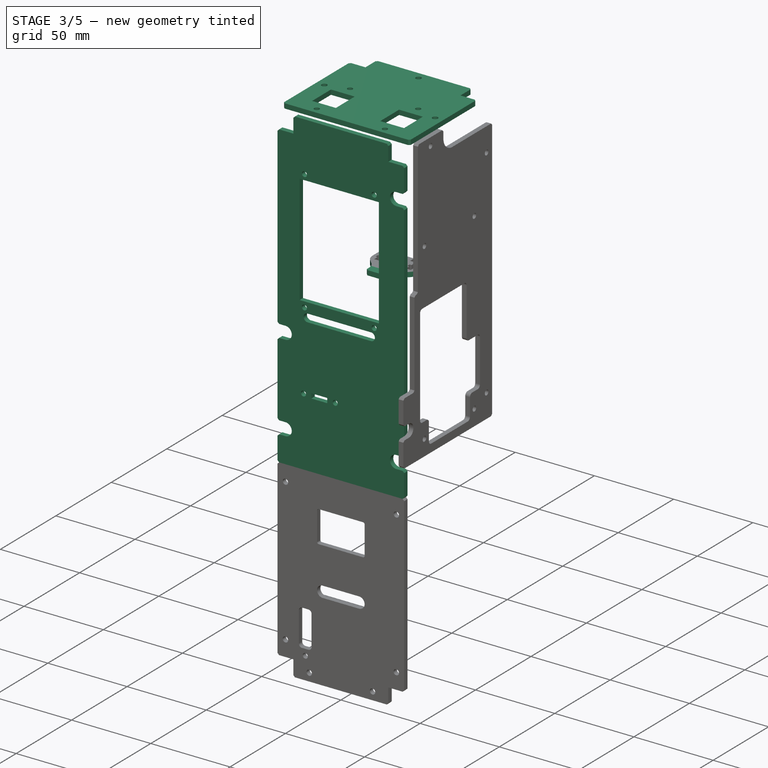
[diagram: stage 3 of 5 — iso view after this stage's code; geometry added in this stage tinted green]
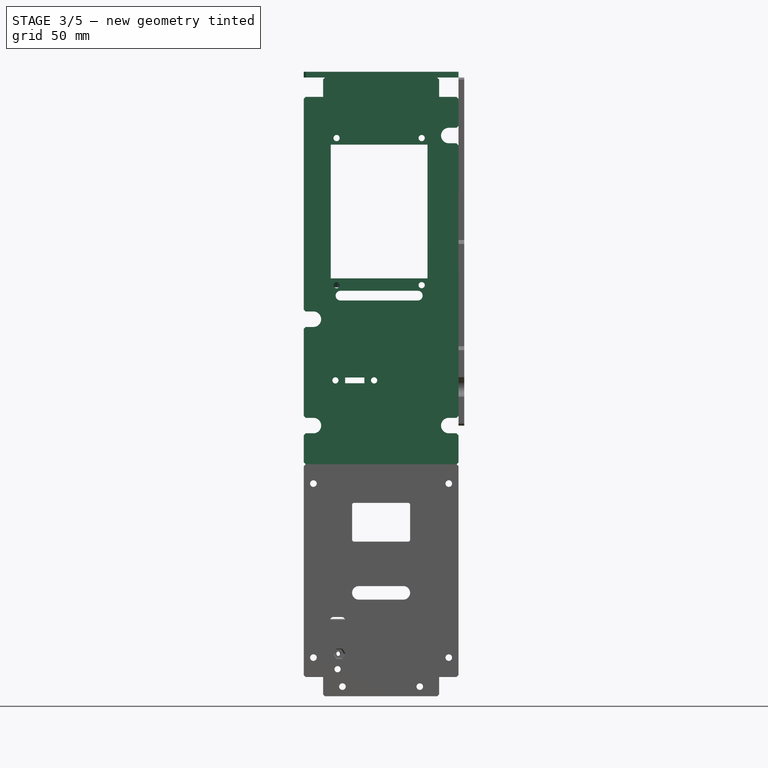
[diagram: stage 3 of 5 — front view after this stage's code; geometry added in this stage tinted green]
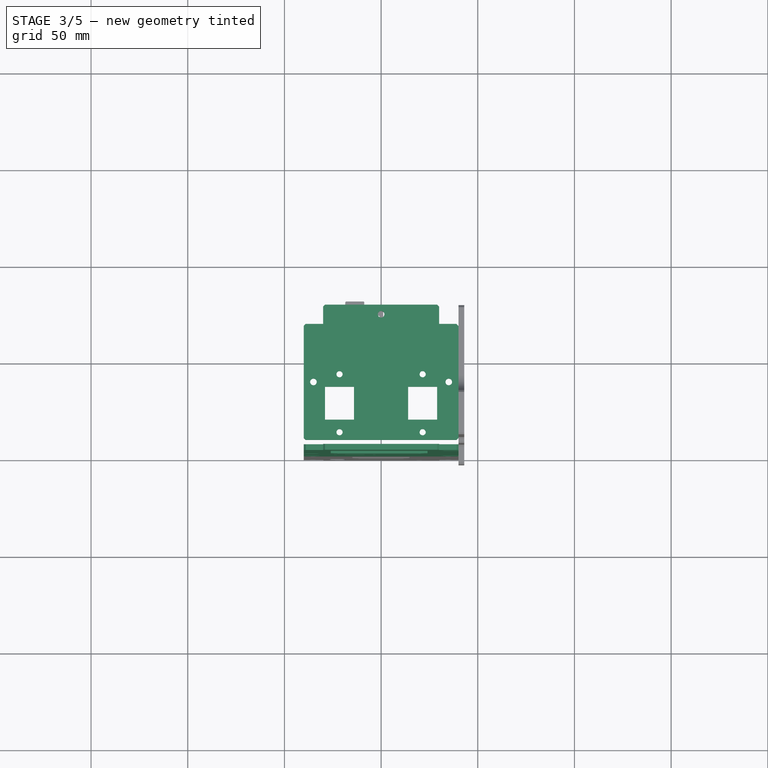
[diagram: stage 3 of 5 — top view after this stage's code; geometry added in this stage tinted green]
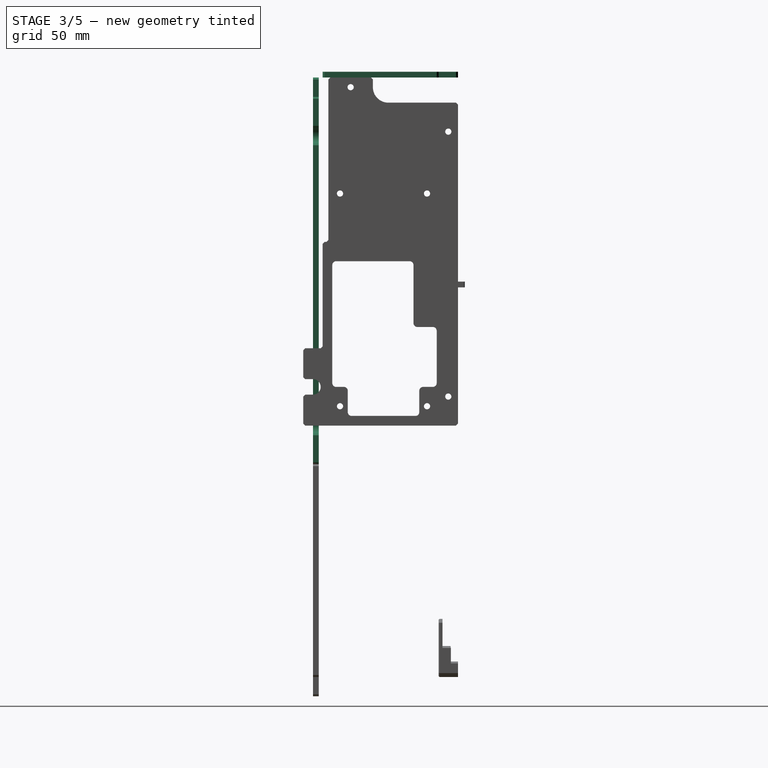
[diagram: stage 3 of 5 — right view after this stage's code; geometry added in this stage tinted green]
FEATURE [App::Part] Part001  label="Part"
  ClaimAllChildren = false
  ExportMode = 1
  Group = -> [Screw007,Nut001,Nut002,Screw005,Screw006,Screw008,Nut003,Nut004]
  Origin = -> Origin028
  TreeRank = 0
  _ExportChildren = -> [Screw007,Nut001,Nut002,Screw005,Screw006,Screw008,Nut003,Nut004]
  _GroupVersion = 1
FEATURE [App::Link] Link001  label="Link001(23HS16_0884S_equiped)"
  AutoLinkLabel = true
  AutoPlacement = true
  LinkPlacement = pos=(4.9174e-07,0,0) rot=(0,-1,0;1.5708rad)
  LinkedObject = -> <external generic-hardware.FCStd>#_3HS16_0884S
  Placement = pos=(4.9174e-07,0,0) rot=(0,-1,0;1.5708rad)
  SyncGroupVisibility = false
  TreeRank = 0
  _LinkVersion = 1
FEATURE [App::Part] Part002  label="EnsembleMoteur"
  ClaimAllChildren = false
  ExportMode = 1
  Group = -> [Body018,Part001,Link001,Body017]
  Origin = -> Origin029
  Placement = pos=(0,13,80) rot=(0,0,1;0rad)
  TreeRank = 0
  _ExportChildren = -> [Body018,Part001,Link001,Body017]
  _GroupVersion = 1
FEATURE [App::Link] Link002  label="Link002(MB_300)"
  AttacherType = Attacher::AttachEngine3D
  AutoLinkLabel = true
  AutoPlacement = true
  LinkPlacement = pos=(35,4.974e-13,-4.17233e-06) rot=(1,0,0;1.5708rad)
  LinkedObject = -> <external generic-hardware.FCStd>#Body004
  Placement = pos=(35,4.974e-13,-4.17233e-06) rot=(1,0,0;1.5708rad)
  SyncGroupVisibility = false
  TreeRank = 0
  _LinkVersion = 1
FEATURE [App::Link] Link003  label="Link003(MB_60)"
  AutoLinkLabel = true
  AutoPlacement = true
  LinkPlacement = pos=(35,5,-5) rot=(0,0,1;0rad)
  LinkedObject = -> <external generic-hardware.FCStd>#Body003
  Placement = pos=(35,5,-5) rot=(0,0,1;0rad)
  SyncGroupVisibility = false
  TreeRank = 0
  _LinkVersion = 1
FEATURE [App::Link] Link004  label="Link004(Corner)"
  AutoLinkLabel = true
  AutoPlacement = true
  LinkPlacement = pos=(35,-4.76836e-06,-5) rot=(0,0,-1;1.5708rad)
  LinkedObject = -> <external generic-hardware.FCStd>#Body001
  Placement = pos=(35,-4.76836e-06,-5) rot=(0,0,-1;1.5708rad)
  SyncGroupVisibility = false
  TreeRank = 0
  _LinkVersion = 1
FEATURE [App::Link] Link005  label="Link005(*Corner)"
  AutoLinkLabel = true
  AutoPlacement = true
  LinkPlacement = pos=(-35,3.57629e-06,-5) rot=(0,0,-1;1.5708rad)
  LinkedObject = -> Link004
  Placement = pos=(-35,3.57629e-06,-5) rot=(0,0,-1;1.5708rad)
  SyncGroupVisibility = false
  TreeRank = 0
  _LinkVersion = 1
FEATURE [App::Link] Link006  label="Link006(*Corner)"
  AutoLinkLabel = true
  AutoPlacement = true
  LinkPlacement = pos=(35,70,-5) rot=(0,0,-1;1.5708rad)
  LinkedObject = -> Link004
  Placement = pos=(35,70,-5) rot=(0,0,-1;1.5708rad)
  SyncGroupVisibility = false
  TreeRank = 0
  _LinkVersion = 1
FEATURE [App::Link] Link007  label="Link007(*Corner)"
  AutoLinkLabel = true
  AutoPlacement = true
  LinkPlacement = pos=(-35,70,-5) rot=(0,0,-1;1.5708rad)
  LinkedObject = -> Link004
  Placement = pos=(-35,70,-5) rot=(0,0,-1;1.5708rad)
  SyncGroupVisibility = false
  TreeRank = 0
  _LinkVersion = 1
FEATURE [App::Link] Link008  label="Link008(*Corner)"
  AutoLinkLabel = true
  AutoPlacement = true
  LinkPlacement = pos=(35,-4.76836e-06,305) rot=(0,0,-1;1.5708rad)
  LinkedObject = -> Link004
  Placement = pos=(35,-4.76836e-06,305) rot=(0,0,-1;1.5708rad)
  SyncGroupVisibility = false
  TreeRank = 0
  _LinkVersion = 1
FEATURE [App::Link] Link009  label="Link009(*Corner)"
  AutoLinkLabel = true
  AutoPlacement = true
  LinkPlacement = pos=(35,70,305) rot=(0,0,-1;1.5708rad)
  LinkedObject = -> Link004
  Placement = pos=(35,70,305) rot=(0,0,-1;1.5708rad)
  SyncGroupVisibility = false
  TreeRank = 0
  _LinkVersion = 1
FEATURE [App::Link] Link010  label="Link010(*Corner)"
  AutoLinkLabel = true
  AutoPlacement = true
  LinkPlacement = pos=(-35,3.57629e-06,305) rot=(0,0,-1;1.5708rad)
  LinkedObject = -> Link004
  Placement = pos=(-35,3.57629e-06,305) rot=(0,0,-1;1.5708rad)
  SyncGroupVisibility = false
  TreeRank = 0
  _LinkVersion = 1
FEATURE [App::Link] Link011  label="Link011(*Corner)"
  AutoLinkLabel = true
  AutoPlacement = true
  LinkPlacement = pos=(-35,70,305) rot=(0,0,-1;1.5708rad)
  LinkedObject = -> Link004
  Placement = pos=(-35,70,305) rot=(0,0,-1;1.5708rad)
  SyncGroupVisibility = false
  TreeRank = 0
  _LinkVersion = 1
FEATURE [App::Link] Link012  label="Link012(*MB_300)"
  AutoLinkLabel = true
  AutoPlacement = true
  LinkPlacement = pos=(-35,-4.974e-13,4.17232e-06) rot=(1,0,0;1.5708rad)
  LinkedObject = -> Link002
  Placement = pos=(-35,-4.974e-13,4.17232e-06) rot=(1,0,0;1.5708rad)
  SyncGroupVisibility = false
  TreeRank = 0
  _LinkVersion = 1
FEATURE [App::Link] Link013  label="Link013(*MB_300)"
  AutoLinkLabel = true
  AutoPlacement = true
  LinkPlacement = pos=(35,70,1.2517e-05) rot=(1,0,0;1.5708rad)
  LinkedObject = -> Link002
  Placement = pos=(35,70,1.2517e-05) rot=(1,0,0;1.5708rad)
  SyncGroupVisibility = false
  TreeRank = 0
  _LinkVersion = 1
FEATURE [App::Link] Link014  label="Link014(*MB_300)"
  AutoLinkLabel = true
  AutoPlacement = true
  LinkPlacement = pos=(-35,70,2.08616e-05) rot=(1,0,0;1.5708rad)
  LinkedObject = -> Link002
  Placement = pos=(-35,70,2.08616e-05) rot=(1,0,0;1.5708rad)
  SyncGroupVisibility = false
  TreeRank = 0
  _LinkVersion = 1
FEATURE [App::Link] Link015  label="Link015(*MB_60)"
  AutoLinkLabel = true
  AutoPlacement = true
  LinkPlacement = pos=(-35,5.00001,-5) rot=(0,0,1;0rad)
  LinkedObject = -> Link003
  Placement = pos=(-35,5.00001,-5) rot=(0,0,1;0rad)
  SyncGroupVisibility = false
  TreeRank = 0
  _LinkVersion = 1
FEATURE [App::Link] Link016  label="Link016(*MB_60)"
  AutoLinkLabel = true
  AutoPlacement = true
  LinkPlacement = pos=(-30,70,-5) rot=(0,0,-1;1.5708rad)
  LinkedObject = -> Link003
  Placement = pos=(-30,70,-5) rot=(0,0,-1;1.5708rad)
  SyncGroupVisibility = false
  TreeRank = 0
  _LinkVersion = 1
FEATURE [App::Link] Link017  label="Link017(*MB_60)"
  AutoLinkLabel = true
  AutoPlacement = true
  LinkPlacement = pos=(35,4.99996,305) rot=(0,0,1;0rad)
  LinkedObject = -> Link003
  Placement = pos=(35,4.99996,305) rot=(0,0,1;0rad)
  SyncGroupVisibility = false
  TreeRank = 0
  _LinkVersion = 1
FEATURE [App::Link] Link018  label="Link018(*MB_60)"
  AutoLinkLabel = true
  AutoPlacement = true
  LinkPlacement = pos=(30,-4.30345e-05,305) rot=(0,0,1;1.5708rad)
  LinkedObject = -> Link003
  Placement = pos=(30,-4.30345e-05,305) rot=(0,0,1;1.5708rad)
  SyncGroupVisibility = false
  TreeRank = 0
  _LinkVersion = 1
FEATURE [App::Link] Link019  label="Link019(*MB_60)"
  AutoLinkLabel = true
  AutoPlacement = true
  LinkPlacement = pos=(-35,4.99996,305) rot=(0,0,1;0rad)
  LinkedObject = -> Link003
  Placement = pos=(-35,4.99996,305) rot=(0,0,1;0rad)
  SyncGroupVisibility = false
  TreeRank = 0
  _LinkVersion = 1
FEATURE [App::Link] Link020  label="Link020(*MB_60)"
  AutoLinkLabel = true
  AutoPlacement = true
  LinkPlacement = pos=(-30,69.9999,305) rot=(0,0,-1;1.5708rad)
  LinkedObject = -> Link003
  Placement = pos=(-30,69.9999,305) rot=(0,0,-1;1.5708rad)
  SyncGroupVisibility = false
  TreeRank = 0
  _LinkVersion = 1
FEATURE [Sketcher::SketchObject] Sketch152
  ArcFitTolerance = 0
  AttachmentSupport = -> [XY_Plane089]
  ExternalBSplineMaxDegree = 0
  ExternalBSplineTolerance = 0
  FullyConstrained = true
  InternalTolerance = 1e-06
  InvalidShape = false
  MakeInternals = false
  MapMode = 5
  Support = -> [XY_Plane089]
  TreeRank = 0
  ValidateShape = true
  sketch-geometry (11):
    g0: LineSegment StartX=40 StartY=-30 StartZ=0 EndX=-40 EndY=-30 EndZ=0
    g1: LineSegment StartX=-40 StartY=-30 StartZ=0 EndX=-40 EndY=30 EndZ=0
    g2: LineSegment StartX=-40 StartY=30 StartZ=0 EndX=-30 EndY=30 EndZ=0
    g3: LineSegment StartX=-30 StartY=30 StartZ=0 EndX=-30 EndY=40 EndZ=0
    g4: LineSegment StartX=-30 StartY=40 StartZ=0 EndX=30 EndY=40 EndZ=0
    g5: LineSegment StartX=30 StartY=40 StartZ=0 EndX=30 EndY=30 EndZ=0
    g6: LineSegment StartX=30 StartY=30 StartZ=0 EndX=40 EndY=30 EndZ=0
    g7: LineSegment StartX=40 StartY=30 StartZ=0 EndX=40 EndY=-30 EndZ=0
    g8: Circle CenterX=0 CenterY=35 CenterZ=0 NormalX=0 NormalY=0 NormalZ=1 AngleXU=0 Radius=1.7
    g9: Circle CenterX=-35 CenterY=0 CenterZ=0 NormalX=0 NormalY=0 NormalZ=1 AngleXU=0 Radius=1.7
    g10: Circle CenterX=35 CenterY=0 CenterZ=0 NormalX=0 NormalY=0 NormalZ=1 AngleXU=0 Radius=1.7
  constraints (30):
    c: Coincident(g0,g1)
    c: Coincident(g1,g2)
    c: Horizontal(g2)
    c: Coincident(g2,g3)
    c: Vertical(g3)
    c: Coincident(g3,g4)
    c: Horizontal(g4)
    c: Coincident(g4,g5)
    c: Vertical(g5)
    c: Coincident(g5,g6)
    c: Horizontal(g6)
    c: Coincident(g6,g7)
    c: Coincident(g7,g0)
    c: Vertical(g7)
    c: Symmetric(g0,g0,g-2)
    c: Symmetric(g1,g0,g-1)
    c: Equal(g2,g3)
    c: Equal(g3,g5)
    c: Equal(g5,g6)
    c: DistanceY(g1,g1) = 60
    c: DistanceX(g0,g0) = 80
    c: DistanceX(g2,g2) = 10
    c: PointOnObject(g8,g-2)
    c: PointOnObject(g9,g-1)
    c: Symmetric(g10,g9,g-1)
    c: DistanceX(g1,g9) = 5
    c: DistanceY(g8,g4) = 5
    c: Diameter(g8) = 3.4
    c: Equal(g8,g9)
    c: Equal(g8,g10)
FEATURE [PartDesign::Pad] Pad084
  AddSubType = 0
  AutoTaperInnerAngle = false
  CheckUpToFaceLimits = true
  ClaimChildren = false
  Direction = (1,1,1)
  Fit = 0
  FitJoin = 0
  InnerFit = 0
  InnerFitJoin = 0
  InvalidShape = false
  Length = 3
  Length2 = 100
  Linearize = true
  NewSolid = false
  Profile = -> Sketch152
  Refine = true
  Suppress = false
  TaperInnerAngle = 0
  TaperInnerAngleRev = 0
  TreeRank = 0
  Type = 0
  ValidateShape = true
  _ProfileBasedVersion = 1
FEATURE [PartDesign::Chamfer] Chamfer055
  AddSubType = 0
  Angle = 45
  Base = -> Pad084 [Edge20,Edge14,Edge11,Edge5,Edge2,Edge1]
  BaseFeature = -> Pad084
  ChamferType = 0
  FlipDirection = false
  InvalidShape = false
  NewSolid = false
  Refine = true
  Size = 1
  Size2 = 1
  SupportTransform = false
  Suppress = false
  TreeRank = 0
  ValidateShape = true
FEATURE [PartDesign::Body] Body073  label="CarterInfAscenseur"
  AutoGroupSolids = false
  ClaimAllChildren = false
  ExportMode = 0
  Group = -> [Sketch153,Pad085,Chamfer056]
  InvalidShape = false
  Origin = -> Origin158
  SingleSolid = true
  Tip = -> Chamfer056
  TreeRank = 25
  ValidateShape = true
  _ExportChildren = -> [Pad085,Chamfer056]
  _GroupVersion = 1
FEATURE [PartDesign::FeatureBase] Clone
  BaseFeature = -> Body072
  InvalidShape = false
  NewSolid = false
  Placement = pos=(0,35,320) rot=(0,0,1;0rad)
  Suppress = false
  TreeRank = 38
  ValidateShape = true
FEATURE [Sketcher::SketchObject] Sketch154
  ArcFitTolerance = 0
  AttachmentSupport = -> [Clone]
  ExternalBSplineMaxDegree = 0
  ExternalBSplineTolerance = 0
  ExternalGeometry = -> [Clone]
  FullyConstrained = true
  InternalTolerance = 1e-06
  InvalidShape = false
  MakeInternals = false
  MapMode = 5
  Placement = pos=(0,35,323) rot=(0,0,1;0rad)
  Support = -> [Clone]
  TreeRank = 40
  ValidateShape = true
  sketch-geometry (7):
    g0: Circle CenterX=-21.5 CenterY=-26 CenterZ=0 NormalX=0 NormalY=0 NormalZ=1 AngleXU=0 Radius=1.6
    g1: Circle CenterX=-21.5 CenterY=4 CenterZ=0 NormalX=0 NormalY=0 NormalZ=1 AngleXU=0 Radius=1.6
    g2: LineSegment StartX=-14 StartY=-2.5 StartZ=0 EndX=-14 EndY=-19.5 EndZ=0
    g3: LineSegment StartX=-14 StartY=-19.5 StartZ=0 EndX=-29 EndY=-19.5 EndZ=0
    g4: LineSegment StartX=-29 StartY=-19.5 StartZ=0 EndX=-29 EndY=-2.5 EndZ=0
    g5: LineSegment StartX=-29 StartY=-2.5 StartZ=0 EndX=-14 EndY=-2.5 EndZ=0
    g6: GeomPoint [constr] X=-21.5 Y=-11 Z=0
  constraints (18):
    c: DistanceY(g0,g1) = 30
    c: Equal(g0,g1)
    c: Diameter(g0) = 3.2
    c: Coincident(g2,g3)
    c: Coincident(g3,g4)
    c: Coincident(g4,g5)
    c: Coincident(g5,g2)
    c: Horizontal(g3)
    c: Horizontal(g5)
    c: Vertical(g2)
    c: Vertical(g4)
    c: Symmetric(g3,g2,g6)
    c: Symmetric(g1,g0,g6)
    c: DistanceX(g3,g3) = 15
    c: DistanceY(g2,g2) = 17
    c: DistanceX(g-3,g3) = 11
    c: Vertical(g1,g0)
    c: DistanceY(g6,g-1) = 11
FEATURE [PartDesign::Pocket] Pocket
  AddSubType = 1
  AutoTaperInnerAngle = false
  BaseFeature = -> Clone
  CheckUpToFaceLimits = true
  ClaimChildren = false
  Fit = 0
  FitJoin = 0
  InnerFit = 0
  InnerFitJoin = 0
  InvalidShape = false
  Length = 5
  Length2 = 100
  Linearize = true
  NewSolid = false
  Placement = pos=(0,35,320) rot=(0,0,1;0rad)
  Profile = -> Sketch154
  Refine = true
  Suppress = false
  TaperInnerAngle = 0
  TaperInnerAngleRev = 0
  TreeRank = 41
  Type = 1
  ValidateShape = true
  _ProfileBasedVersion = 1
  _Version = 1
FEATURE [PartDesign::Mirrored] Mirrored
  AddSubType = 0
  BaseFeature = -> Pocket
  CopyShape = false
  InvalidShape = false
  MirrorPlane = -> Sketch154 [V_Axis]
  NewSolid = false
  OriginalSubs = -> [Pocket]
  Originals = -> [Pocket]
  ParallelTransform = true
  Placement = pos=(0,35,320) rot=(0,0,1;0rad)
  Refine = true
  SubTransform = true
  Suppress = false
  TreeRank = 43
  ValidateShape = true
  _Version = 3
FEATURE [PartDesign::Chamfer] Chamfer061
  AddSubType = 0
  Angle = 45
  Base = -> Fillet [Edge100,Edge98]
  BaseFeature = -> Fillet
  ChamferType = 0
  FlipDirection = false
  InvalidShape = false
  NewSolid = false
  Refine = true
  Size = 7
  Size2 = 1
  SupportTransform = false
  Suppress = false
  TreeRank = 369
  ValidateShape = true
FEATURE [PartDesign::Chamfer] Chamfer062
  AddSubType = 0
  Angle = 45
  Base = -> Chamfer061 [Edge38,Edge52,Edge56,Edge100,Edge86,Edge42]
  BaseFeature = -> Chamfer061
  ChamferType = 0
  FlipDirection = false
  InvalidShape = false
  NewSolid = false
  Refine = true
  Size = 0.4
  Size2 = 1
  SupportTransform = false
  Suppress = false
  TreeRank = 370
  ValidateShape = true
FEATURE [PartDesign::Pad] Pad097
  AddSubType = 0
  AlongSketchNormal = false
  AutoTaperInnerAngle = false
  BaseFeature = -> Chamfer062
  CheckUpToFaceLimits = true
  ClaimChildren = false
  Direction = (0,-1,2e-16)
  Fit = 0
  FitJoin = 0
  InnerFit = 0
  InnerFitJoin = 0
  InvalidShape = false
  Length = 6
  Length2 = 100
  Linearize = true
  NewSolid = false
  Profile = -> Chamfer062 [Face6]
  Refine = true
  Suppress = false
  TaperInnerAngle = 0
  TaperInnerAngleRev = 0
  TreeRank = 371
  Type = 0
  ValidateShape = true
  _ProfileBasedVersion = 1
FEATURE [PartDesign::Chamfer] Chamfer063
  AddSubType = 0
  Angle = 45
  Base = -> Pad097 [Edge130,Edge127]
  BaseFeature = -> Pad097
  ChamferType = 0
  FlipDirection = false
  InvalidShape = false
  NewSolid = false
  Refine = true
  Size = 1
  Size2 = 1
  SupportTransform = false
  Suppress = false
  TreeRank = 372
  ValidateShape = true
FEATURE [PartDesign::Fillet] Fillet065
  AddSubType = 0
  Base = -> Chamfer063 [Edge3,Edge52,Edge98,Edge100]
  BaseFeature = -> Chamfer063
  InvalidShape = false
  NewSolid = false
  Radius = 8
  Refine = true
  SupportTransform = false
  Suppress = false
  TreeRank = 373
  ValidateShape = true
FEATURE [PartDesign::Body] Body076  label="CarterSide480*320"
  AutoGroupSolids = false
  ClaimAllChildren = false
  ExportMode = 0
  Group = -> [Sketch160,Pad087,Sketch161,Pocket016,Chamfer060,Sketch179,Pocket025,Sketch180,Pocket026,Sketch182,Pocket027]
  InvalidShape = false
  Origin = -> Origin161
  Placement = pos=(0,75,0) rot=(0,0,1;0rad)
  SingleSolid = true
  Tip = -> Pocket027
  TreeRank = 114
  ValidateShape = true
  _ExportChildren = -> [Pad087,Pocket016,Chamfer060,Pocket025,Pocket026,Pocket027]
  _GroupVersion = 1
FEATURE [TechDraw::DrawProjGroupItem] ProjItem014  label="Front014"
  CoarseView = false
  Direction = (0,1,0)
  Focus = 100
  HardHidden = false
  IsoCount = 0
  IsoHidden = false
  IsoVisible = false
  LockPosition = true
  Perspective = false
  Rotation = 90
  RotationVector = (1,0,0)
  ScaleType = 2
  SeamHidden = false
  SeamVisible = true
  SmoothHidden = false
  SmoothVisible = true
  Source = -> [Pocket027]
  TreeRank = 378
  Type = 0
  X = 0
  XDirection = (1,0,0)
  Y = 0
FEATURE [TechDraw::DrawProjGroup] ProjGroup014
  Anchor = -> ProjItem014
  AutoDistribute = true
  LockPosition = false
  ProjectionType = 0
  Rotation = 0
  ScaleType = 0
  Source = -> [Pocket026]
  TreeRank = 379
  Views = -> [ProjItem014]
  X = 104.72
  Y = 165.172
  spacingX = 15
  spacingY = 15
FEATURE [TechDraw::DrawPage] Page013  label="Laser3mmCarterSide"
  KeepUpdated = true
  NextBalloonIndex = 1
  ProjectionType = 0
  Template = -> Template013
  TreeRank = 376
  Views = -> [ProjGroup014]
FEATURE [Sketcher::SketchObject] Sketch183
  ArcFitTolerance = 0
  AttachmentSupport = -> [XZ_Plane106]
  ExternalBSplineMaxDegree = 0
  ExternalBSplineTolerance = 0
  FullyConstrained = true
  InternalTolerance = 1e-06
  InvalidShape = false
  MakeInternals = false
  MapMode = 5
  Placement = pos=(0,0,0) rot=(0,0.707107,0.707107;3.14159rad)
  Support = -> [XZ_Plane106]
  TreeRank = 115
  ValidateShape = true
  sketch-geometry (8):
    g0: LineSegment StartX=-40 StartY=310 StartZ=0 EndX=-30 EndY=310 EndZ=0
    g1: LineSegment StartX=-30 StartY=310 StartZ=0 EndX=-30 EndY=320 EndZ=0
    g2: LineSegment StartX=-30 StartY=320 StartZ=0 EndX=30 EndY=320 EndZ=0
    g3: LineSegment StartX=30 StartY=320 StartZ=0 EndX=30 EndY=310 EndZ=0
    g4: LineSegment StartX=30 StartY=310 StartZ=0 EndX=40 EndY=310 EndZ=0
    g5: LineSegment StartX=40 StartY=310 StartZ=0 EndX=40 EndY=120 EndZ=0
    g6: LineSegment StartX=40 StartY=120 StartZ=0 EndX=-40 EndY=120 EndZ=0
    g7: LineSegment StartX=-40 StartY=120 StartZ=0 EndX=-40 EndY=310 EndZ=0
  constraints (23):
    c: Horizontal(g0)
    c: Coincident(g0,g1)
    c: Vertical(g1)
    c: Coincident(g1,g2)
    c: Coincident(g2,g3)
    c: Vertical(g3)
    c: Coincident(g3,g4)
    c: Horizontal(g4)
    c: Coincident(g4,g5)
    c: Vertical(g5)
    c: Coincident(g5,g6)
    c: Horizontal(g6)
    c: Coincident(g6,g7)
    c: Coincident(g7,g0)
    c: Vertical(g7)
    c: Equal(g0,g1)
    c: Equal(g1,g3)
    c: Equal(g3,g4)
    c: DistanceY(g1,g1) = 10
    c: Symmetric(g1,g2,g-2)
    c: DistanceX(g2,g2) = 60
    c: DistanceY(g2) = 320
    c: DistanceY(g5) = 120
FEATURE [PartDesign::Pad] Pad098
  AddSubType = 0
  AlongSketchNormal = false
  AutoTaperInnerAngle = false
  CheckUpToFaceLimits = true
  ClaimChildren = false
  Direction = (0,1,2e-16)
  Fit = 0
  FitJoin = 0
  InnerFit = 0
  InnerFitJoin = 0
  InvalidShape = false
  Length = 3
  Length2 = 100
  Linearize = true
  NewSolid = false
  Profile = -> Sketch183
  Refine = true
  Suppress = false
  TaperInnerAngle = 0
  TaperInnerAngleRev = 0
  TreeRank = 116
  Type = 0
  ValidateShape = true
  _ProfileBasedVersion = 1
FEATURE [Sketcher::SketchObject] Sketch184
  ArcFitTolerance = 0
  AttachmentSupport = -> [XZ_Plane106]
  ExternalBSplineMaxDegree = 0
  ExternalBSplineTolerance = 0
  ExternalGeometry = -> [Pad098]
  FullyConstrained = true
  InternalTolerance = 1e-06
  InvalidShape = false
  MakeInternals = false
  MapMode = 5
  Placement = pos=(0,0,0) rot=(0,0.707107,0.707107;3.14159rad)
  Support = -> [XZ_Plane106]
  TreeRank = 117
  ValidateShape = true
  sketch-geometry (20):
    g0: ArcOfCircle CenterX=-40 CenterY=290 CenterZ=0 NormalX=0 NormalY=0 NormalZ=1 AngleXU=0 Radius=4 StartAngle=1.5708 EndAngle=4.71239
    g1: ArcOfCircle CenterX=-35 CenterY=290 CenterZ=0 NormalX=0 NormalY=0 NormalZ=1 AngleXU=0 Radius=4 StartAngle=4.71239 EndAngle=7.85398
    g2: LineSegment StartX=-40 StartY=286 StartZ=0 EndX=-35 EndY=286 EndZ=0
    g3: LineSegment StartX=-35 StartY=294 StartZ=0 EndX=-40 EndY=294 EndZ=0
    g4: ArcOfCircle CenterX=-40 CenterY=140 CenterZ=0 NormalX=0 NormalY=0 NormalZ=1 AngleXU=0 Radius=4 StartAngle=1.5708 EndAngle=4.71239
    g5: ArcOfCircle CenterX=-35 CenterY=140 CenterZ=0 NormalX=0 NormalY=0 NormalZ=1 AngleXU=0 Radius=4 StartAngle=4.71239 EndAngle=7.85398
    g6: LineSegment StartX=-40 StartY=136 StartZ=0 EndX=-35 EndY=136 EndZ=0
    g7: LineSegment StartX=-35 StartY=144 StartZ=0 EndX=-40 EndY=144 EndZ=0
    g8: ArcOfCircle CenterX=40 CenterY=140 CenterZ=0 NormalX=0 NormalY=0 NormalZ=1 AngleXU=0 Radius=4 StartAngle=4.71239 EndAngle=7.85398
    g9: ArcOfCircle CenterX=35 CenterY=140 CenterZ=0 NormalX=0 NormalY=0 NormalZ=1 AngleXU=0 Radius=4 StartAngle=1.5708 EndAngle=4.71239
    g10: LineSegment StartX=40 StartY=144 StartZ=0 EndX=35 EndY=144 EndZ=0
    g11: LineSegment StartX=35 StartY=136 StartZ=0 EndX=40 EndY=136 EndZ=0
    g12: ArcOfCircle [constr] CenterX=40 CenterY=290 CenterZ=0 NormalX=0 NormalY=0 NormalZ=1 AngleXU=0 Radius=4 StartAngle=4.71239 EndAngle=7.85398
    g13: ArcOfCircle [constr] CenterX=35 CenterY=290 CenterZ=0 NormalX=0 NormalY=0 NormalZ=1 AngleXU=0 Radius=4 StartAngle=1.5708 EndAngle=4.71239
    g14: LineSegment [constr] StartX=40 StartY=294 StartZ=0 EndX=35 EndY=294 EndZ=0
    g15: LineSegment [constr] StartX=35 StartY=286 StartZ=0 EndX=40 EndY=286 EndZ=0
    g16: ArcOfCircle CenterX=40 CenterY=195 CenterZ=0 NormalX=0 NormalY=0 NormalZ=1 AngleXU=0 Radius=4 StartAngle=4.71239 EndAngle=7.85398
    g17: ArcOfCircle CenterX=35 CenterY=195 CenterZ=0 NormalX=0 NormalY=0 NormalZ=1 AngleXU=0 Radius=4 StartAngle=1.5708 EndAngle=4.71239
    g18: LineSegment StartX=40 StartY=199 StartZ=0 EndX=35 EndY=199 EndZ=0
    g19: LineSegment StartX=35 StartY=191 StartZ=0 EndX=40 EndY=191 EndZ=0
  constraints (50):
    c: Tangent(g0,g2) = -1.5708
    c: Tangent(g2,g1) = -1.5708
    c: Tangent(g1,g3) = -1.5708
    c: Tangent(g3,g0) = -1.5708
    c: Equal(g0,g1)
    c: Tangent(g4,g6) = -1.5708
    c: Tangent(g6,g5) = -1.5708
    c: Tangent(g5,g7) = -1.5708
    c: Tangent(g7,g4) = -1.5708
    c: Equal(g4,g5)
    c: Tangent(g8,g10) = -1.5708
    c: Tangent(g10,g9) = -1.5708
    c: Tangent(g9,g11) = -1.5708
    c: Tangent(g11,g8) = -1.5708
    c: Equal(g8,g9)
    c: Tangent(g12,g14) = -1.5708
    c: Tangent(g14,g13) = -1.5708
    c: Tangent(g13,g15) = -1.5708
    c: Tangent(g15,g12) = -1.5708
    c: Equal(g12,g13)
    c: Horizontal(g0,g1)
    c: Horizontal(g13,g12)
    c: Horizontal(g13,g1)
    c: Horizontal(g8,g9)
    c: Horizontal(g9,g5)
    c: Horizontal(g5,g4)
    c: Equal(g9,g5)
    c: Equal(g5,g1)
    c: Equal(g1,g13)
    c: Equal(g15,g2)
    c: Equal(g2,g7)
    c: Equal(g7,g10)
    c: PointOnObject(g12,g-4)
    c: PointOnObject(g0,g-3)
    c: PointOnObject(g4,g-3)
    c: PointOnObject(g8,g-4)
    c: DistanceX(g13,g12) = 5
    c: Radius(g13) = 4
    c: DistanceY(g12,g-4) = 20
    c: DistanceY(g-4,g8) = 20
    c: Tangent(g16,g18) = -1.5708
    c: Tangent(g18,g17) = -1.5708
    c: Tangent(g17,g19) = -1.5708
    c: Tangent(g19,g16) = -1.5708
    c: Equal(g16,g17)
    c: PointOnObject(g16,g-4)
    c: Horizontal(g16,g17)
    c: Equal(g16,g12)
    c: Equal(g18,g15)
    c: DistanceY(g8,g16) = 55
FEATURE [PartDesign::Pocket] Pocket028
  AddSubType = 1
  AutoTaperInnerAngle = false
  BaseFeature = -> Pad098
  CheckUpToFaceLimits = true
  ClaimChildren = false
  Fit = 0
  FitJoin = 0
  InnerFit = 0
  InnerFitJoin = 0
  InvalidShape = false
  Length = 5
  Length2 = 100
  Linearize = true
  NewSolid = false
  Profile = -> Sketch184
  Refine = true
  Reversed = true
  Suppress = false
  TaperInnerAngle = 0
  TaperInnerAngleRev = 0
  TreeRank = 118
  Type = 1
  ValidateShape = true
  _ProfileBasedVersion = 1
  _Version = 1
FEATURE [PartDesign::Chamfer] Chamfer064
  AddSubType = 0
  Angle = 45
  Base = -> Pocket028 [Edge1,Edge8,Edge7,Edge71,Edge56,Edge54,Edge70,Edge67,Edge66,Edge65,Edge64,Edge61,Edge60,Edge57]
  BaseFeature = -> Pocket028
  ChamferType = 0
  FlipDirection = false
  InvalidShape = false
  NewSolid = false
  Refine = true
  Size = 1
  Size2 = 1
  SupportTransform = false
  Suppress = false
  TreeRank = 119
  ValidateShape = true
FEATURE [Sketcher::SketchObject] Sketch185
  ArcFitTolerance = 1e-06
  AttachmentSupport = -> [Chamfer064]
  ExternalBSplineMaxDegree = 0
  ExternalBSplineTolerance = 0
  FullyConstrained = true
  InternalTolerance = 1e-06
  InvalidShape = false
  MakeInternals = false
  MapMode = 5
  Placement = pos=(0,3,7e-16) rot=(0,0.707107,0.707107;3.14159rad)
  Support = -> [Chamfer064]
  TreeRank = 350
  ValidateShape = true
  sketch-geometry (13):
    g0: LineSegment StartX=26.02 StartY=216.1 StartZ=0 EndX=-23.98 EndY=216.1 EndZ=0
    g1: LineSegment StartX=-23.98 StartY=216.1 StartZ=0 EndX=-23.98 EndY=285.3 EndZ=0
    g2: LineSegment StartX=-23.98 StartY=285.3 StartZ=0 EndX=26.02 EndY=285.3 EndZ=0
    g3: LineSegment StartX=26.02 StartY=285.3 StartZ=0 EndX=26.02 EndY=216.1 EndZ=0
    g4: LineSegment [constr] StartX=-23.98 StartY=205.7 StartZ=0 EndX=-23.98 EndY=291.7 EndZ=0
    g5: LineSegment [constr] StartX=-23.98 StartY=291.7 StartZ=0 EndX=26.02 EndY=291.7 EndZ=0
    g6: LineSegment [constr] StartX=26.02 StartY=291.7 StartZ=0 EndX=26.02 EndY=205.7 EndZ=0
    g7: Circle CenterX=23.02 CenterY=212.62 CenterZ=0 NormalX=0 NormalY=0 NormalZ=1 AngleXU=0 Radius=1.6
    g8: Circle CenterX=-20.98 CenterY=212.62 CenterZ=0 NormalX=0 NormalY=0 NormalZ=1 AngleXU=0 Radius=1.6
    g9: LineSegment [constr] StartX=1.02 StartY=285.3 StartZ=0 EndX=1.02 EndY=216.1 EndZ=0
    g10: LineSegment [constr] StartX=-23.98 StartY=205.7 StartZ=0 EndX=26.02 EndY=205.7 EndZ=0
    g11: Circle CenterX=-20.98 CenterY=288.7 CenterZ=0 NormalX=0 NormalY=0 NormalZ=1 AngleXU=0 Radius=1.6
    g12: Circle CenterX=23.02 CenterY=288.7 CenterZ=0 NormalX=0 NormalY=0 NormalZ=1 AngleXU=0 Radius=1.6
  constraints (36):
    c: Coincident(g0,g1)
    c: Coincident(g1,g2)
    c: Coincident(g2,g3)
    c: Coincident(g3,g0)
    c: Horizontal(g0)
    c: Horizontal(g2)
    c: Vertical(g1)
    c: Vertical(g3)
    c: Coincident(g4,g5)
    c: Coincident(g5,g6)
    c: Horizontal(g5)
    c: Vertical(g4)
    c: Vertical(g6)
    c: DistanceX(g4,g6) = 50
    c: DistanceY(g3,g3) = 69.2
    c: DistanceX(g0,g0) = 50
    c: Equal(g8,g7)
    c: Diameter(g8) = 3.2
    c: PointOnObject(g9,g0)
    c: Symmetric(g1,g2,g9)
    c: Horizontal(g10)
    c: DistanceY(g10,g7) = 6.92
    c: DistanceY(g10) = 205.7
    c: DistanceX(g9) = 1.02
    c: Symmetric(g7,g8,g9)
    c: DistanceX(g7,g10) = 3
    c: DistanceY(g10,g0) = 10.4
    c: Coincident(g4,g10)
    c: Coincident(g6,g10)
    c: Equal(g8,g11)
    c: Equal(g11,g12)
    c: Symmetric(g11,g12,g9)
    c: Vertical(g12,g7)
    c: Symmetric(g6,g4,g9)
    c: DistanceY(g6,g5) = 86
    c: DistanceY(g12,g5) = 3
FEATURE [PartDesign::Pocket] Pocket029
  AddSubType = 1
  AutoTaperInnerAngle = false
  BaseFeature = -> Chamfer064
  CheckUpToFaceLimits = true
  ClaimChildren = false
  Fit = 0
  FitJoin = 0
  InnerFit = 0
  InnerFitJoin = 0
  InvalidShape = false
  Length = 5
  Length2 = 100
  Linearize = true
  NewSolid = false
  Profile = -> Sketch185
  Refine = true
  Suppress = false
  TaperInnerAngle = 0
  TaperInnerAngleRev = 0
  TreeRank = 351
  Type = 1
  ValidateShape = true
  _ProfileBasedVersion = 1
  _Version = 1
FEATURE [Sketcher::SketchObject] Sketch186
  ArcFitTolerance = 1e-06
  AttachmentSupport = -> [Pocket029]
  ExternalBSplineMaxDegree = 0
  ExternalBSplineTolerance = 0
  FullyConstrained = true
  InternalTolerance = 1e-06
  InvalidShape = false
  MakeInternals = false
  MapMode = 5
  Placement = pos=(0,3,7e-16) rot=(0,0.707107,0.707107;3.14159rad)
  Support = -> [Pocket029]
  TreeRank = 352
  ValidateShape = true
  sketch-geometry (9):
    g0: LineSegment StartX=18.62 StartY=161.87 StartZ=0 EndX=8.62 EndY=161.87 EndZ=0
    g1: LineSegment StartX=8.62 StartY=161.87 StartZ=0 EndX=8.62 EndY=164.87 EndZ=0
    g2: LineSegment StartX=8.62 StartY=164.87 StartZ=0 EndX=18.62 EndY=164.87 EndZ=0
    g3: LineSegment StartX=18.62 StartY=164.87 StartZ=0 EndX=18.62 EndY=161.87 EndZ=0
    g4: Circle CenterX=23.62 CenterY=163.37 CenterZ=0 NormalX=0 NormalY=0 NormalZ=1 AngleXU=0 Radius=1.6
    g5: Circle CenterX=3.62 CenterY=163.37 CenterZ=0 NormalX=0 NormalY=0 NormalZ=1 AngleXU=0 Radius=1.6
    g6: LineSegment [constr] StartX=23.62 StartY=163.37 StartZ=0 EndX=3.62 EndY=163.37 EndZ=0
    g7: LineSegment [constr] StartX=13.62 StartY=161.87 StartZ=0 EndX=13.62 EndY=164.87 EndZ=0
    g8: GeomPoint [constr] X=13.62 Y=163.37 Z=0
  constraints (23):
    c: Coincident(g0,g1)
    c: Coincident(g1,g2)
    c: Coincident(g2,g3)
    c: Coincident(g3,g0)
    c: Horizontal(g0)
    c: Horizontal(g2)
    c: Vertical(g1)
    c: Vertical(g3)
    c: DistanceY(g3,g3) = 3
    c: Equal(g5,g4)
    c: Diameter(g5) = 3.2
    c: Coincident(g6,g4)
    c: Coincident(g6,g5)
    c: Symmetric(g1,g0,g6)
    c: DistanceX(g5,g4) = 20
    c: DistanceX(g0,g0) = 10
    c: PointOnObject(g7,g2)
    c: Symmetric(g0,g0,g7)
    c: Symmetric(g4,g5,g7)
    c: PointOnObject(g8,g6)
    c: PointOnObject(g8,g7)
    c: DistanceX(g8) = 13.62
    c: DistanceY(g8) = 163.37
FEATURE [PartDesign::Pocket] Pocket030
  AddSubType = 1
  AutoTaperInnerAngle = false
  BaseFeature = -> Pocket029
  CheckUpToFaceLimits = true
  ClaimChildren = false
  Fit = 0
  FitJoin = 0
  InnerFit = 0
  InnerFitJoin = 0
  InvalidShape = false
  Length = 5
  Length2 = 100
  Linearize = true
  NewSolid = false
  Profile = -> Sketch186
  Refine = true
  Suppress = false
  TaperInnerAngle = 0
  TaperInnerAngleRev = 0
  TreeRank = 353
  Type = 1
  ValidateShape = true
  _ProfileBasedVersion = 1
  _Version = 1
FEATURE [Sketcher::SketchObject] Sketch187
  ArcFitTolerance = 1e-06
  AttachmentSupport = -> [XZ_Plane106]
  ExternalBSplineMaxDegree = 5
  ExternalBSplineTolerance = 0.0001
  FullyConstrained = true
  InternalTolerance = 1e-06
  InvalidShape = false
  MakeInternals = false
  MapMode = 5
  Placement = pos=(0,0,0) rot=(1,0,0;1.5708rad)
  Support = -> [XZ_Plane106]
  TreeRank = 380
  ValidateShape = true
  sketch-geometry (4):
    g0: ArcOfCircle CenterX=-21.0199 CenterY=207.197 CenterZ=0 NormalX=0 NormalY=0 NormalZ=1 AngleXU=0 Radius=2.5 StartAngle=1.5708 EndAngle=4.71239
    g1: ArcOfCircle CenterX=18.9801 CenterY=207.197 CenterZ=0 NormalX=0 NormalY=0 NormalZ=1 AngleXU=0 Radius=2.5 StartAngle=4.71239 EndAngle=7.85398
    g2: LineSegment StartX=-21.0199 StartY=204.697 StartZ=0 EndX=18.9801 EndY=204.697 EndZ=0
    g3: LineSegment StartX=18.9801 StartY=209.697 StartZ=0 EndX=-21.0199 EndY=209.697 EndZ=0
  constraints (10):
    c: Tangent(g0,g2) = -1.5708
    c: Tangent(g2,g1) = -1.5708
    c: Tangent(g1,g3) = -1.5708
    c: Tangent(g3,g0) = -1.5708
    c: Equal(g0,g1)
    c: Horizontal(g1,g0)
    c: DistanceY(g1,g1) = 5
    c: DistanceX(g3,g3) = 40
    c: DistanceX(g1) = 18.9801
    c: DistanceY(g1) = 207.197
FEATURE [PartDesign::Pocket] Pocket031
  AddSubType = 1
  AutoTaperInnerAngle = true
  BaseFeature = -> Pocket030
  CheckUpToFaceLimits = true
  ClaimChildren = false
  Fit = 0
  FitJoin = 0
  InnerFit = 0
  InnerFitJoin = 0
  InvalidShape = false
  Length = 5
  Length2 = 100
  Linearize = true
  NewSolid = false
  Profile = -> Sketch187
  Refine = true
  Suppress = false
  TaperInnerAngle = 0
  TaperInnerAngleRev = 0
  TreeRank = 381
  Type = 1
  ValidateShape = true
  _ProfileBasedVersion = 1
  _Version = 1
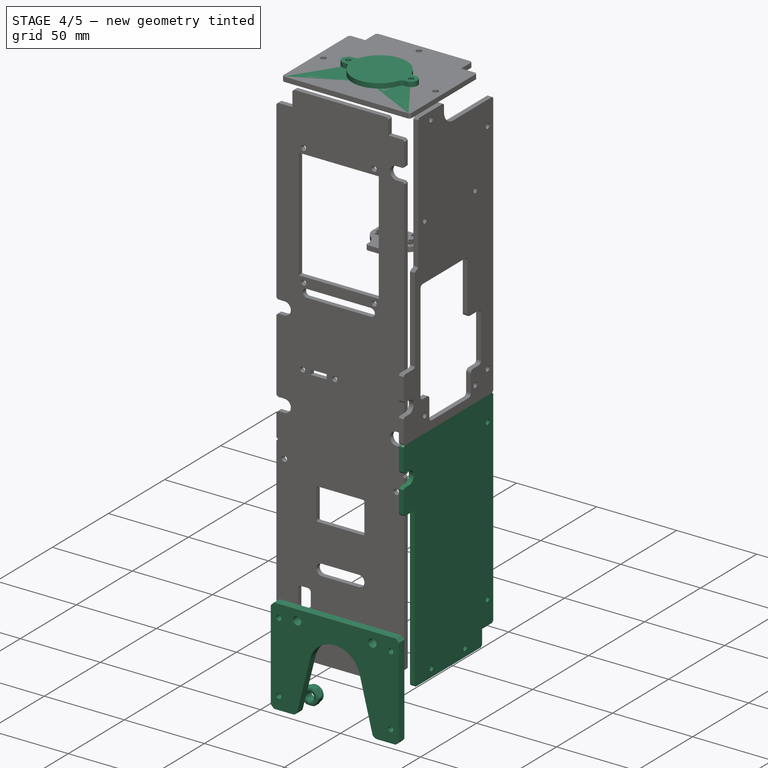
[diagram: stage 4 of 5 — iso view after this stage's code; geometry added in this stage tinted green]
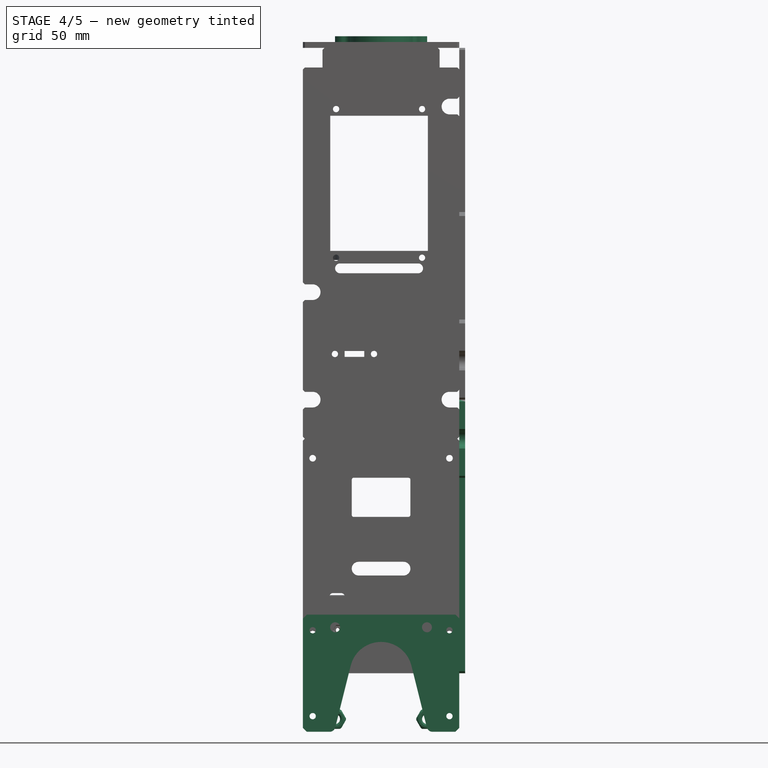
[diagram: stage 4 of 5 — front view after this stage's code; geometry added in this stage tinted green]
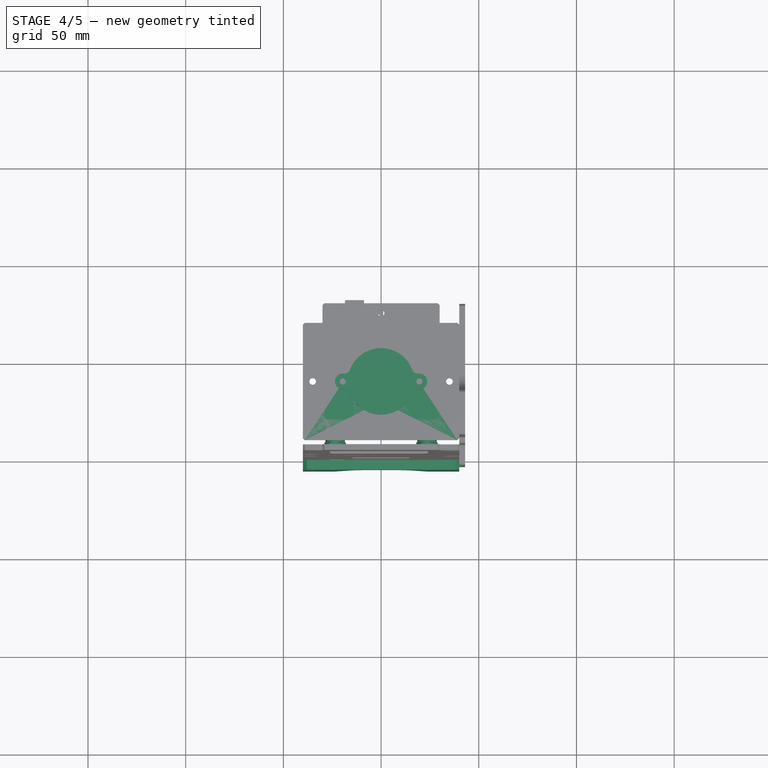
[diagram: stage 4 of 5 — top view after this stage's code; geometry added in this stage tinted green]
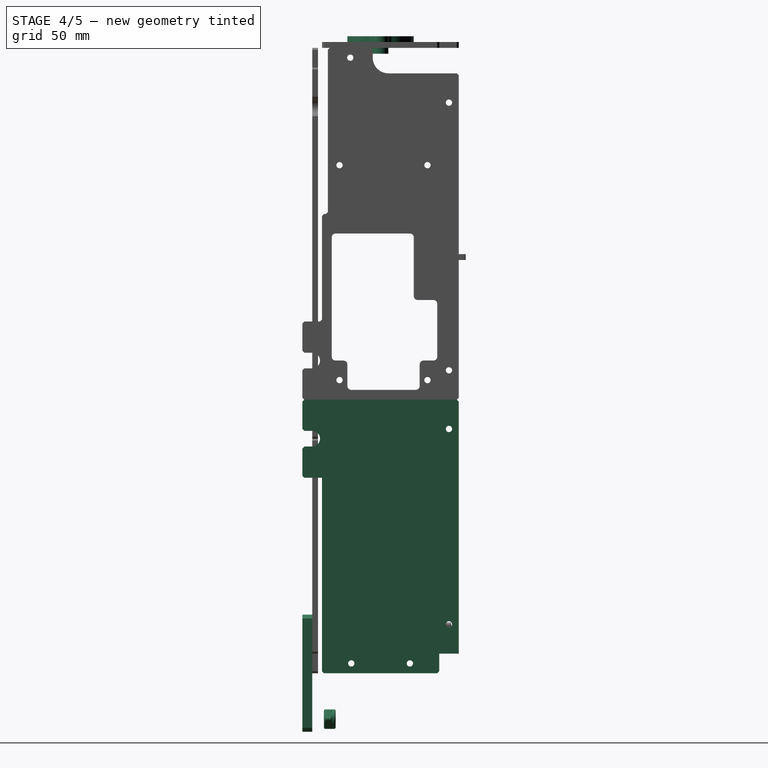
[diagram: stage 4 of 5 — right view after this stage's code; geometry added in this stage tinted green]
FEATURE [Sketcher::SketchObject] Sketch027
  ArcFitTolerance = 0
  AttachmentSupport = -> [XZ_Plane023]
  ExternalBSplineMaxDegree = 0
  ExternalBSplineTolerance = 0
  FullyConstrained = true
  InternalTolerance = 1e-06
  InvalidShape = false
  MakeInternals = false
  MapMode = 5
  Placement = pos=(0,0,0) rot=(1,0,0;1.5708rad)
  Support = -> [XZ_Plane023]
  TreeRank = 0
  ValidateShape = true
  sketch-geometry (16):
    g0: LineSegment StartX=-40 StartY=30 StartZ=0 EndX=40 EndY=30 EndZ=0
    g1: LineSegment StartX=40 StartY=30 StartZ=0 EndX=40 EndY=-30 EndZ=0
    g2: LineSegment [constr] StartX=40 StartY=-30 StartZ=0 EndX=-40 EndY=-30 EndZ=0
    g3: LineSegment StartX=-40 StartY=-30 StartZ=0 EndX=-40 EndY=30 EndZ=0
    g4: Circle [constr] CenterX=-23.4943 CenterY=-23.5 CenterZ=0 NormalX=0 NormalY=0 NormalZ=1 AngleXU=0 Radius=2.55
    g5: Circle CenterX=-23.4943 CenterY=23.5 CenterZ=0 NormalX=0 NormalY=0 NormalZ=1 AngleXU=0 Radius=2.55
    g6: Circle CenterX=23.4943 CenterY=23.5 CenterZ=0 NormalX=0 NormalY=0 NormalZ=1 AngleXU=0 Radius=2.55
    g7: Circle [constr] CenterX=23.4943 CenterY=-23.5 CenterZ=0 NormalX=0 NormalY=0 NormalZ=1 AngleXU=0 Radius=2.55
    g8: Circle [constr] CenterX=1e-16 CenterY=-5e-16 CenterZ=0 NormalX=0 NormalY=0 NormalZ=1 AngleXU=0 Radius=33.23
    g9: LineSegment StartX=-40 StartY=-30 StartZ=0 EndX=-24 EndY=-30 EndZ=0
    g10: LineSegment StartX=-24 StartY=-30 StartZ=0 EndX=-15.5215 EndY=3.88384 EndZ=0
    g11: LineSegment StartX=40 StartY=-30 StartZ=0 EndX=24 EndY=-30 EndZ=0
    g12: LineSegment StartX=24 StartY=-30 StartZ=0 EndX=15.5215 EndY=3.88384 EndZ=0
    g13: ArcOfCircle CenterX=1e-16 CenterY=-5e-16 CenterZ=0 NormalX=0 NormalY=0 NormalZ=1 AngleXU=0 Radius=16 StartAngle=0.245189 EndAngle=2.8964
    g14: LineSegment [constr] StartX=-22.3735 StartY=-23.5 StartZ=0 EndX=-23.4943 EndY=-23.5 EndZ=0
    g15: LineSegment [constr] StartX=-22.3735 StartY=-23.5 StartZ=0 EndX=-20.9443 EndY=-23.5 EndZ=0
  constraints (39):
    c: Coincident(g0,g1)
    c: Coincident(g1,g2)
    c: Coincident(g2,g3)
    c: Coincident(g3,g0)
    c: Horizontal(g0)
    c: Vertical(g3)
    c: Symmetric(g1,g2,g-2)
    c: DistanceX(g2,g2) = 80
    c: Symmetric(g0,g2,g-1)
    c: DistanceY(g1,g1) = 60
    c: Equal(g7,g4)
    c: Equal(g4,g5)
    c: Equal(g5,g6)
    c: Diameter(g6) = 5.1
    c: Symmetric(g6,g7,g-1)
    c: Symmetric(g6,g5,g-2)
    c: Symmetric(g5,g4,g-1)
    c: PointOnObject(g5,g8)
    c: DistanceY(g7,g6) = 47
    c: Symmetric(g6,g4,g8)
    c: Diameter(g8) = 66.46
    c: Coincident(g3,g9)
    c: PointOnObject(g9,g2)
    c: Coincident(g9,g10)
    c: Coincident(g1,g11)
    c: PointOnObject(g11,g2)
    c: Coincident(g11,g12)
    c: Coincident(g13,g8)
    c: Tangent(g13,g12) = -1.5708
    c: Tangent(g13,g10) = 1.5708
    c: Equal(g9,g11)
    c: Diameter(g13) = 32
    c: PointOnObject(g14,g10)
    c: Coincident(g14,g4)
    c: Horizontal(g14)
    c: Coincident(g15,g14)
    c: PointOnObject(g15,g14)
    c: PointOnObject(g15,g4)
    c: DistanceX(g9,g9) = 16
FEATURE [PartDesign::Pad] Pad018
  AddSubType = 0
  AutoTaperInnerAngle = false
  CheckUpToFaceLimits = true
  ClaimChildren = false
  Direction = (1,1,1)
  Fit = 0
  FitJoin = 0
  InnerFit = 0
  InnerFitJoin = 0
  InvalidShape = false
  Length = 5
  Length2 = 100
  Linearize = true
  NewSolid = false
  Placement = pos=(0,0,0) rot=(1,0,0;1.5708rad)
  Profile = -> Sketch027
  Refine = true
  Suppress = false
  TaperInnerAngle = 0
  TaperInnerAngleRev = 0
  TreeRank = 0
  Type = 0
  ValidateShape = true
  _ProfileBasedVersion = 1
FEATURE [PartDesign::Fillet] Fillet007
  AddSubType = 0
  Base = -> Pad018 [Edge2,Edge14]
  BaseFeature = -> Pad018
  InvalidShape = false
  NewSolid = false
  Placement = pos=(0,0,0) rot=(1,0,0;1.5708rad)
  Radius = 3
  Refine = true
  SupportTransform = false
  Suppress = false
  TreeRank = 0
  ValidateShape = true
FEATURE [Sketcher::SketchObject] Sketch029
  ArcFitTolerance = 0
  AttachmentSupport = -> [XZ_Plane023]
  ExternalBSplineMaxDegree = 0
  ExternalBSplineTolerance = 0
  ExternalGeometry = -> [Fillet007]
  FullyConstrained = true
  InternalTolerance = 1e-06
  InvalidShape = false
  MakeInternals = false
  MapMode = 5
  Placement = pos=(0,0,0) rot=(1,0,0;1.5708rad)
  Support = -> [XZ_Plane023]
  TreeRank = 0
  ValidateShape = true
  sketch-geometry (4):
    g0: Circle CenterX=-35 CenterY=22 CenterZ=0 NormalX=0 NormalY=0 NormalZ=1 AngleXU=0 Radius=1.6
    g1: Circle CenterX=-35 CenterY=-22 CenterZ=0 NormalX=0 NormalY=0 NormalZ=1 AngleXU=0 Radius=1.6
    g2: Circle CenterX=35 CenterY=-22 CenterZ=0 NormalX=0 NormalY=0 NormalZ=1 AngleXU=0 Radius=1.6
    g3: Circle CenterX=35 CenterY=22 CenterZ=0 NormalX=0 NormalY=0 NormalZ=1 AngleXU=0 Radius=1.6
  constraints (9):
    c: Equal(g0,g1)
    c: Equal(g1,g2)
    c: Equal(g2,g3)
    c: Diameter(g0) = 3.2
    c: Symmetric(g0,g1,g-1)
    c: Symmetric(g2,g3,g-1)
    c: Symmetric(g0,g3,g-2)
    c: DistanceX(g-4,g0) = 5
    c: DistanceY(g0,g-4) = 8
FEATURE [PartDesign::Pocket] Pocket010
  AddSubType = 1
  AutoTaperInnerAngle = false
  BaseFeature = -> Fillet007
  CheckUpToFaceLimits = true
  ClaimChildren = false
  Fit = 0
  FitJoin = 0
  InnerFit = 0
  InnerFitJoin = 0
  InvalidShape = false
  Length = 5
  Length2 = 100
  Linearize = true
  NewSolid = false
  Placement = pos=(0,0,0) rot=(1,0,0;1.5708rad)
  Profile = -> Sketch029
  Refine = true
  Reversed = true
  Suppress = false
  TaperInnerAngle = 0
  TaperInnerAngleRev = 0
  TreeRank = 0
  Type = 1
  ValidateShape = true
  _ProfileBasedVersion = 1
  _Version = 0
FEATURE [PartDesign::Chamfer] Chamfer003
  AddSubType = 0
  Angle = 45
  Base = -> Pocket010 [Edge38,Edge3,Edge40,Edge22]
  BaseFeature = -> Pocket010
  ChamferType = 0
  FlipDirection = false
  InvalidShape = false
  NewSolid = false
  Placement = pos=(0,0,0) rot=(1,0,0;1.5708rad)
  Refine = true
  Size = 2
  Size2 = 1
  SupportTransform = false
  Suppress = false
  TreeRank = 0
  ValidateShape = true
FEATURE [Sketcher::SketchObject] Sketch028
  ArcFitTolerance = 0
  AttachmentSupport = -> [XZ_Plane024]
  ExternalBSplineMaxDegree = 0
  ExternalBSplineTolerance = 0
  FullyConstrained = true
  InternalTolerance = 1e-06
  InvalidShape = false
  MakeInternals = false
  MapMode = 5
  Placement = pos=(0,0,0) rot=(1,0,0;1.5708rad)
  Support = -> [XZ_Plane024]
  TreeRank = 0
  ValidateShape = true
  sketch-geometry (13):
    g0: Circle CenterX=0 CenterY=0 CenterZ=0 NormalX=0 NormalY=0 NormalZ=1 AngleXU=0 Radius=20
    g1: Circle CenterX=-23.5 CenterY=23.5 CenterZ=0 NormalX=0 NormalY=0 NormalZ=1 AngleXU=0 Radius=2.55
    g2: Circle CenterX=23.5 CenterY=23.5 CenterZ=0 NormalX=0 NormalY=0 NormalZ=1 AngleXU=0 Radius=2.55
    g3: Circle CenterX=23.5 CenterY=-23.5 CenterZ=0 NormalX=0 NormalY=0 NormalZ=1 AngleXU=0 Radius=2.55
    g4: Circle CenterX=-23.5 CenterY=-23.5 CenterZ=0 NormalX=0 NormalY=0 NormalZ=1 AngleXU=0 Radius=2.55
    g5: LineSegment [constr] StartX=-23.5 StartY=23.5 StartZ=0 EndX=23.5 EndY=23.5 EndZ=0
    g6: LineSegment [constr] StartX=23.5 StartY=23.5 StartZ=0 EndX=23.5 EndY=-23.5 EndZ=0
    g7: LineSegment [constr] StartX=23.5 StartY=-23.5 StartZ=0 EndX=-23.5 EndY=-23.5 EndZ=0
    g8: LineSegment [constr] StartX=-23.5 StartY=-23.5 StartZ=0 EndX=-23.5 EndY=23.5 EndZ=0
    g9: LineSegment StartX=-28.5 StartY=28.5 StartZ=0 EndX=28.5 EndY=28.5 EndZ=0
    g10: LineSegment StartX=28.5 StartY=28.5 StartZ=0 EndX=28.5 EndY=-28.5 EndZ=0
    g11: LineSegment StartX=28.5 StartY=-28.5 StartZ=0 EndX=-28.5 EndY=-28.5 EndZ=0
    g12: LineSegment StartX=-28.5 StartY=-28.5 StartZ=0 EndX=-28.5 EndY=28.5 EndZ=0
  constraints (31):
    c: Coincident(g0,g-1)
    c: Diameter(g0) = 40
    c: Coincident(g5,g6)
    c: Coincident(g6,g7)
    c: Coincident(g7,g8)
    c: Coincident(g8,g5)
    c: Horizontal(g5)
    c: Horizontal(g7)
    c: Vertical(g6)
    c: Vertical(g8)
    c: Coincident(g5,g1)
    c: Coincident(g6,g3)
    c: Coincident(g7,g4)
    c: Coincident(g2,g5)
    c: Symmetric(g2,g4,g0)
    c: Equal(g5,g8)
    c: Equal(g2,g1)
    c: Equal(g1,g4)
    c: Equal(g4,g3)
    c: Diameter(g3) = 5.1
    c: DistanceX(g5,g5) = 47
    c: Coincident(g9,g10)
    c: Coincident(g10,g11)
    c: Coincident(g11,g12)
    c: Coincident(g12,g9)
    c: Horizontal(g9)
    c: Vertical(g10)
    c: Symmetric(g9,g11,g0)
    c: Symmetric(g9,g10,g0)
    c: Equal(g9,g12)
    c: DistanceX(g9,g9) = 57
FEATURE [PartDesign::Pad] Pad019
  AddSubType = 0
  AutoTaperInnerAngle = false
  CheckUpToFaceLimits = true
  ClaimChildren = false
  Direction = (1,1,1)
  Fit = 0
  FitJoin = 0
  InnerFit = 0
  InnerFitJoin = 0
  InvalidShape = false
  Length = 3
  Length2 = 100
  Linearize = true
  NewSolid = false
  Placement = pos=(0,0,0) rot=(1,0,0;1.5708rad)
  Profile = -> Sketch028
  Refine = true
  Suppress = false
  TaperInnerAngle = 0
  TaperInnerAngleRev = 0
  TreeRank = 0
  Type = 0
  ValidateShape = true
  _ProfileBasedVersion = 1
FEATURE [PartDesign::Fillet] Fillet006
  AddSubType = 0
  Base = -> Pad019 [Edge1,Edge2,Edge8,Edge5]
  BaseFeature = -> Pad019
  InvalidShape = false
  NewSolid = false
  Placement = pos=(0,0,0) rot=(1,0,0;1.5708rad)
  Radius = 3
  Refine = true
  SupportTransform = false
  Suppress = false
  TreeRank = 0
  ValidateShape = true
FEATURE [Part::FeaturePython] Nut003  label="M6-Nut014"  # Fasteners workbench fastener (typed FeaturePython)
  InvalidShape = false
  Placement = pos=(23.5,6,-23.5) rot=(-1,0,0;1.5708rad)
  TreeRank = 0
  ValidateShape = true
  baseObject = -> Body018 [Edge14]
  diameter = 4
  invert = true
  leftHanded = false
  matchOuter = false
  offset = 6
  thread = false
  type = 5
FEATURE [Part::FeaturePython] Nut004  label="M6-Nut015"  # Fasteners workbench fastener (typed FeaturePython)
  InvalidShape = false
  Placement = pos=(-23.5,6,-23.5) rot=(-1,0,0;1.5708rad)
  TreeRank = 0
  ValidateShape = true
  baseObject = -> Body018 [Edge13]
  diameter = 4
  invert = true
  leftHanded = false
  matchOuter = false
  offset = 6
  thread = false
  type = 5
FEATURE [App::Part] Part006  label="StructureMakerbeam"
  ClaimAllChildren = false
  ExportMode = 1
  Group = -> [Link002,Link003,Link004,Link005,Link006,Link007,Link008,Link009,Link010,Link011,Link012,Link013,Link014,Link015,Link016,Link017,Link018,Link019,Link020]
  Origin = -> Origin156
  TreeRank = 0
  _ExportChildren = -> [Link002,Link003,Link004,Link005,Link006,Link007,Link008,Link009,Link010,Link011,Link012,Link013,Link014,Link015,Link016,Link017,Link018,Link019,Link020]
  _GroupVersion = 1
FEATURE [App::Link] Link021  label="Link021(SupportGauche3D)"
  AutoLinkLabel = true
  AutoPlacement = true
  LinkPlacement = pos=(-30,-5.00004,99.9998) rot=(0,0,1;1.5708rad)
  LinkedObject = -> <external structures.FCStd>#Part004
  Placement = pos=(-30,-5.00004,99.9998) rot=(0,0,1;1.5708rad)
  SyncGroupVisibility = false
  TreeRank = 0
  _LinkVersion = 1
FEATURE [App::Link] Link022  label="Link022(SupportDroit3D)"
  AutoLinkLabel = true
  AutoPlacement = true
  LinkPlacement = pos=(30,-5.00002,100) rot=(0,0,-1;1.5708rad)
  LinkedObject = -> <external structures.FCStd>#Part005
  Placement = pos=(30,-5.00002,100) rot=(0,0,-1;1.5708rad)
  SyncGroupVisibility = false
  TreeRank = 0
  _LinkVersion = 1
FEATURE [App::Link] Link023  label="Link023(PartSideModule)"
  AutoLinkLabel = true
  AutoPlacement = true
  LinkPlacement = pos=(0,-45,15) rot=(0,0,1;0rad)
  LinkedObject = -> <external structures.FCStd>#Part006
  Placement = pos=(0,-45,15) rot=(0,0,1;0rad)
  SyncGroupVisibility = false
  TreeRank = 0
  _LinkVersion = 1
FEATURE [App::Link] Link024  label="Link024(PartSideModule)"
  AutoLinkLabel = true
  AutoPlacement = true
  LinkPlacement = pos=(0,-45,245) rot=(0,0,1;0rad)
  LinkedObject = -> <external structures.FCStd>#Part006
  Placement = pos=(0,-45,245) rot=(0,0,1;0rad)
  SyncGroupVisibility = false
  TreeRank = 0
  _LinkVersion = 1
FEATURE [App::Part] Part003  label="Structure"
  ClaimAllChildren = false
  ExportMode = 1
  Group = -> [Part006,Link021,Link022,Link023,Link024]
  Origin = -> Origin030
  Placement = pos=(0,-1.19209e-06,10) rot=(0,0,1;0rad)
  TreeRank = 0
  _ExportChildren = -> [Part006,Link021,Link022,Link023,Link024]
  _GroupVersion = 1
FEATURE [App::Link] Link025  label="Link025(Poignee)"
  AutoLinkLabel = true
  AutoPlacement = true
  LinkPlacement = pos=(-3.40949e-06,39,315) rot=(1,0,0;0rad)
  LinkedObject = -> <external structures.FCStd>#Part
  Placement = pos=(-3.40949e-06,39,315) rot=(1,0,0;0rad)
  SyncGroupVisibility = false
  TreeRank = 0
  _LinkVersion = 1
FEATURE [TechDraw::DrawSVGTemplate] Template
  Height = 210
  Orientation = 1
  TreeRank = 0
  Width = 297
FEATURE [TechDraw::DrawProjGroupItem] ProjItem  label="Front"
  CoarseView = false
  Direction = (0,0,1)
  Focus = 100
  HardHidden = false
  IsoCount = 0
  IsoHidden = false
  IsoVisible = false
  LockPosition = true
  Perspective = false
  Rotation = 0
  RotationVector = (0,1,0)
  ScaleType = 2
  SeamHidden = false
  SeamVisible = true
  SmoothHidden = false
  SmoothVisible = true
  Source = -> [Body072]
  TreeRank = 0
  Type = 0
  X = 0
  XDirection = (0,1,0)
  Y = 0
FEATURE [TechDraw::DrawProjGroup] ProjGroup
  Anchor = -> ProjItem
  AutoDistribute = true
  LockPosition = false
  ProjectionType = 0
  Rotation = 0
  ScaleType = 0
  Source = -> [Body072]
  TreeRank = 0
  Views = -> [ProjItem]
  X = 39.1213
  Y = 167.196
  spacingX = 15
  spacingY = 15
FEATURE [TechDraw::DrawPage] Page  label="Laser3mmCarterTop"
  KeepUpdated = true
  NextBalloonIndex = 1
  ProjectionType = 0
  Template = -> Template
  TreeRank = 0
  Views = -> [ProjGroup]
FEATURE [TechDraw::DrawSVGTemplate] Template001
  Height = 210
  Orientation = 1
  TreeRank = 0
  Width = 297
FEATURE [Sketcher::SketchObject] Sketch153
  ArcFitTolerance = 0
  AttachmentOffset = pos=(0,0,40) rot=(0,0,1;0rad)
  AttachmentSupport = -> [YZ_Plane091]
  ExternalBSplineMaxDegree = 0
  ExternalBSplineTolerance = 0
  FullyConstrained = true
  InternalTolerance = 1e-06
  InvalidShape = false
  MakeInternals = false
  MapMode = 5
  Placement = pos=(40,-8.9e-15,8.9e-15) rot=(0.57735,0.57735,0.57735;2.0944rad)
  Support = -> [YZ_Plane091]
  TreeRank = 26
  ValidateShape = true
  sketch-geometry (16):
    g0: LineSegment StartX=-5 StartY=140 StartZ=0 EndX=75 EndY=140 EndZ=0
    g1: LineSegment StartX=75 StartY=140 StartZ=0 EndX=75 EndY=10 EndZ=0
    g2: LineSegment StartX=75 StartY=10 StartZ=0 EndX=65 EndY=10 EndZ=0
    g3: LineSegment StartX=65 StartY=10 StartZ=0 EndX=65 EndY=5.15e-14 EndZ=0
    g4: LineSegment StartX=65 StartY=5.19e-14 StartZ=0 EndX=5 EndY=0 EndZ=0
    g5: LineSegment StartX=5 StartY=0 StartZ=0 EndX=5 EndY=100 EndZ=0
    g6: LineSegment StartX=5 StartY=100 StartZ=0 EndX=-5 EndY=100 EndZ=0
    g7: LineSegment StartX=-5 StartY=100 StartZ=0 EndX=-5 EndY=116 EndZ=0
    g8: Circle CenterX=20 CenterY=5 CenterZ=0 NormalX=0 NormalY=0 NormalZ=1 AngleXU=0 Radius=1.6
    g9: Circle CenterX=50 CenterY=5 CenterZ=0 NormalX=0 NormalY=0 NormalZ=1 AngleXU=0 Radius=1.6
    g10: Circle CenterX=70 CenterY=25 CenterZ=0 NormalX=0 NormalY=0 NormalZ=1 AngleXU=0 Radius=1.6
    g11: Circle CenterX=70 CenterY=125 CenterZ=0 NormalX=0 NormalY=0 NormalZ=1 AngleXU=0 Radius=1.6
    g12: ArcOfCircle CenterX=-1.37292e-11 CenterY=120 CenterZ=0 NormalX=0 NormalY=0 NormalZ=1 AngleXU=0 Radius=4 StartAngle=4.71239 EndAngle=7.85398
    g13: LineSegment StartX=-5 StartY=116 StartZ=0 EndX=-4.11307e-11 EndY=116 EndZ=0
    g14: LineSegment StartX=-3.5766e-12 StartY=124 StartZ=0 EndX=-5 EndY=124 EndZ=0
    g15: LineSegment StartX=-5 StartY=124 StartZ=0 EndX=-5 EndY=140 EndZ=0
  constraints (47):
    c: Horizontal(g0)
    c: Coincident(g0,g1)
    c: Vertical(g1)
    c: Coincident(g1,g2)
    c: Coincident(g2,g3)
    c: PointOnObject(g3,g-1)
    c: Vertical(g3)
    c: Coincident(g3,g4)
    c: PointOnObject(g4,g-1)
    c: Coincident(g4,g5)
    c: Vertical(g5)
    c: Coincident(g5,g6)
    c: Horizontal(g6)
    c: Coincident(g6,g7)
    c: Coincident(g15,g0)
    c: Vertical(g7)
    c: DistanceY(g6) = 100
    c: DistanceY(g0) = 140
    c: DistanceX(g6,g6) = 10
    c: DistanceX(g5) = 5
    c: DistanceX(g0,g0) = 80
    c: Equal(g2,g3)
    c: Horizontal(g2)
    c: DistanceX(g2,g2) = 10
    c: Equal(g9,g8)
    c: Equal(g8,g10)
    c: Equal(g10,g11)
    c: Diameter(g11) = 3.2
    c: Vertical(g11,g10)
    c: Horizontal(g8,g9)
    c: DistanceX(g9,g3) = 15
    c: DistanceX(g4,g8) = 15
    c: DistanceY(g8) = 5
    c: DistanceX(g10,g1) = 5
    c: DistanceY(g1,g10) = 15
    c: DistanceY(g11,g0) = 15
    c: Tangent(g13,g12) = -1.5708
    c: Tangent(g12,g14) = -1.5708
    c: Horizontal(g14)
    c: Radius(g12) = 4
    c: Equal(g15,g7)
    c: Vertical(g15)
    c: Coincident(g14,g15)
    c: PointOnObject(g7,g15)
    c: DistanceX(g14,g14) = 5
    c: Coincident(g13,g7)
    c: Horizontal(g13)
FEATURE [PartDesign::Pad] Pad085
  AddSubType = 0
  AlongSketchNormal = false
  AutoTaperInnerAngle = false
  CheckUpToFaceLimits = true
  ClaimChildren = false
  Direction = (1,-2e-16,3e-16)
  Fit = 0
  FitJoin = 0
  InnerFit = 0
  InnerFitJoin = 0
  InvalidShape = false
  Length = 3
  Length2 = 100
  Linearize = true
  NewSolid = false
  Placement = pos=(0,0,0) rot=(0.57735,0.57735,0.57735;2.0944rad)
  Profile = -> Sketch153
  Refine = true
  Suppress = false
  TaperInnerAngle = 0
  TaperInnerAngleRev = 0
  TreeRank = 27
  Type = 0
  ValidateShape = true
  _ProfileBasedVersion = 1
FEATURE [PartDesign::Chamfer] Chamfer056
  AddSubType = 0
  Angle = 45
  Base = -> Pad085 [Edge1,Edge32,Edge23,Edge20,Edge2,Edge5,Edge11,Edge14]
  BaseFeature = -> Pad085
  ChamferType = 0
  FlipDirection = false
  InvalidShape = false
  NewSolid = false
  Placement = pos=(0,0,0) rot=(0.57735,0.57735,0.57735;2.0944rad)
  Refine = true
  Size = 1
  Size2 = 1
  SupportTransform = false
  Suppress = false
  TreeRank = 28
  ValidateShape = true
FEATURE [PartDesign::Chamfer] Chamfer057
  AddSubType = 0
  Angle = 45
  Base = -> Mirrored [Edge83,Edge84,Edge82,Edge81,Edge77,Edge76,Edge75,Edge74]
  BaseFeature = -> Mirrored
  ChamferType = 0
  FlipDirection = false
  InvalidShape = false
  NewSolid = false
  Placement = pos=(0,35,320) rot=(0,0,1;0rad)
  Refine = true
  Size = 1
  Size2 = 1
  SupportTransform = false
  Suppress = false
  TreeRank = 44
  ValidateShape = true
FEATURE [TechDraw::DrawSVGTemplate] Template005
  Height = 210
  Orientation = 1
  TreeRank = 121
  Width = 297
FEATURE [TechDraw::DrawSVGTemplate] Template006
  Height = 210
  Orientation = 1
  TreeRank = 201
  Width = 297
FEATURE [TechDraw::DrawProjGroupItem] ProjItem006  label="Front006"
  CoarseView = false
  Direction = (0,0,1)
  Focus = 100
  HardHidden = false
  IsoCount = 0
  IsoHidden = false
  IsoVisible = false
  LockPosition = true
  Perspective = false
  Rotation = 0
  RotationVector = (0,1,0)
  ScaleType = 2
  SeamHidden = false
  SeamVisible = true
  SmoothHidden = false
  SmoothVisible = true
  TreeRank = 204
  Type = 0
  X = 0
  XDirection = (0,1,0)
  Y = 0
FEATURE [TechDraw::DrawProjGroup] ProjGroup006
  Anchor = -> ProjItem006
  AutoDistribute = true
  LockPosition = false
  ProjectionType = 0
  Rotation = 0
  ScaleType = 0
  TreeRank = 205
  Views = -> [ProjItem006]
  X = 36.8036
  Y = 168.482
  spacingX = 15
  spacingY = 15
FEATURE [TechDraw::DrawPage] Page006  label="Laser3mmCarterTopUsbSD"
  KeepUpdated = true
  NextBalloonIndex = 1
  ProjectionType = 0
  Template = -> Template006
  TreeRank = 202
  Views = -> [ProjGroup006]
FEATURE [TechDraw::DrawSVGTemplate] Template007
  Height = 210
  Orientation = 1
  TreeRank = 226
  Width = 297
FEATURE [TechDraw::DrawProjGroupItem] ProjItem007  label="Front007"
  CoarseView = false
  Direction = (0,0,1)
  Focus = 100
  HardHidden = false
  IsoCount = 0
  IsoHidden = false
  IsoVisible = false
  LockPosition = true
  Perspective = false
  Rotation = 0
  RotationVector = (-1,0,0)
  ScaleType = 2
  SeamHidden = false
  SeamVisible = true
  SmoothHidden = false
  SmoothVisible = true
  TreeRank = 229
  Type = 0
  X = 0
  XDirection = (-1,0,0)
  Y = 0
FEATURE [TechDraw::DrawProjGroup] ProjGroup007
  Anchor = -> ProjItem007
  AutoDistribute = true
  LockPosition = false
  ProjectionType = 0
  Rotation = 0
  ScaleType = 0
  TreeRank = 230
  Views = -> [ProjItem007]
  X = 41.8929
  Y = 172.232
  spacingX = 15
  spacingY = 15
FEATURE [TechDraw::DrawPage] Page007  label="Laser3mmCarterTopSD"
  KeepUpdated = true
  NextBalloonIndex = 1
  ProjectionType = 0
  Template = -> Template007
  TreeRank = 227
  Views = -> [ProjGroup007]
FEATURE [TechDraw::DrawSVGTemplate] Template008
  Height = 210
  Orientation = 1
  TreeRank = 253
  Width = 297
FEATURE [TechDraw::DrawProjGroupItem] ProjItem008  label="Front008"
  CoarseView = false
  Direction = (0,-1,0)
  Focus = 100
  HardHidden = false
  IsoCount = 0
  IsoHidden = false
  IsoVisible = false
  LockPosition = true
  Perspective = false
  Rotation = 0
  RotationVector = (1,0,0)
  ScaleType = 2
  SeamHidden = false
  SeamVisible = true
  SmoothHidden = false
  SmoothVisible = true
  TreeRank = 256
  Type = 0
  X = 0
  XDirection = (1,0,0)
  Y = 0
FEATURE [TechDraw::DrawProjGroup] ProjGroup008
  Anchor = -> ProjItem008
  AutoDistribute = true
  LockPosition = false
  ProjectionType = 0
  Rotation = 0
  ScaleType = 0
  TreeRank = 257
  Views = -> [ProjItem008]
  X = 42.5187
  Y = 194.848
  spacingX = 15
  spacingY = 15
FEATURE [TechDraw::DrawPage] Page008  label="Laser3mmSupportPCA"
  KeepUpdated = true
  NextBalloonIndex = 1
  ProjectionType = 0
  Template = -> Template008
  TreeRank = 254
  Views = -> [ProjGroup008]
FEATURE [TechDraw::DrawSVGTemplate] Template009
  Height = 210
  Orientation = 1
  TreeRank = 259
  Width = 297
FEATURE [TechDraw::DrawProjGroupItem] ProjItem009  label="Front009"
  CoarseView = false
  Direction = (1,0,0)
  Focus = 100
  HardHidden = false
  IsoCount = 0
  IsoHidden = false
  IsoVisible = false
  LockPosition = true
  Perspective = false
  Rotation = 0
  RotationVector = (0,-1,0)
  ScaleType = 2
  SeamHidden = false
  SeamVisible = true
  SmoothHidden = false
  SmoothVisible = true
  Source = -> [Chamfer056]
  TreeRank = 262
  Type = 0
  X = 0
  XDirection = (0,-1,0)
  Y = 0
FEATURE [TechDraw::DrawProjGroup] ProjGroup009
  Anchor = -> ProjItem009
  AutoDistribute = true
  LockPosition = false
  ProjectionType = 0
  Rotation = 0
  ScaleType = 0
  Source = -> [Chamfer056]
  TreeRank = 263
  Views = -> [ProjItem009]
  X = 44.2872
  Y = 137.178
  spacingX = 15
  spacingY = 15
FEATURE [TechDraw::DrawPage] Page009  label="Laser3mmCarterInfAscenseur"
  KeepUpdated = true
  NextBalloonIndex = 1
  ProjectionType = 0
  Template = -> Template009
  TreeRank = 260
  Views = -> [ProjGroup009]
FEATURE [PartDesign::FeatureBase] Clone003
  BaseFeature = -> Body072
  InvalidShape = false
  NewSolid = false
  Placement = pos=(0,35,320) rot=(0,0,1;0rad)
  Suppress = false
  TreeRank = 277
  ValidateShape = true
FEATURE [Sketcher::SketchObject] Sketch175
  ArcFitTolerance = 0
  AttachmentSupport = -> [Clone003]
  ExternalBSplineMaxDegree = 0
  ExternalBSplineTolerance = 0
  FullyConstrained = true
  InternalTolerance = 1e-06
  InvalidShape = false
  MakeInternals = false
  MapMode = 5
  Placement = pos=(0,35,323) rot=(0,0,1;0rad)
  Support = -> [Clone003]
  TreeRank = 299
  ValidateShape = true
  sketch-geometry (4):
    g0: Circle CenterX=-5.13e-14 CenterY=0 CenterZ=0 NormalX=0 NormalY=0 NormalZ=1 AngleXU=0 Radius=12
    g1: Circle [constr] CenterX=-5.13e-14 CenterY=0 CenterZ=0 NormalX=0 NormalY=0 NormalZ=1 AngleXU=0 Radius=18
    g2: Circle CenterX=-19.6 CenterY=0 CenterZ=0 NormalX=0 NormalY=0 NormalZ=1 AngleXU=0 Radius=1.6
    g3: Circle CenterX=19.6 CenterY=0 CenterZ=0 NormalX=0 NormalY=0 NormalZ=1 AngleXU=0 Radius=1.6
  constraints (9):
    c: Coincident(g0,g-1)
    c: Diameter(g0) = 24
    c: Coincident(g1,g0)
    c: Diameter(g1) = 36
    c: PointOnObject(g2,g-1)
    c: Equal(g3,g2)
    c: Diameter(g3) = 3.2
    c: Symmetric(g2,g3,g0)
    c: Tangent(g3,g1)
FEATURE [PartDesign::Pocket] Pocket023
  AddSubType = 1
  AutoTaperInnerAngle = false
  BaseFeature = -> Clone003
  CheckUpToFaceLimits = true
  ClaimChildren = false
  Fit = 0
  FitJoin = 0
  InnerFit = 0
  InnerFitJoin = 0
  InvalidShape = false
  Length = 5
  Length2 = 100
  Linearize = true
  NewSolid = false
  Placement = pos=(0,35,320) rot=(0,0,1;0rad)
  Profile = -> Sketch175
  Refine = true
  Suppress = false
  TaperInnerAngle = 0
  TaperInnerAngleRev = 0
  TreeRank = 300
  Type = 1
  ValidateShape = true
  _ProfileBasedVersion = 1
  _Version = 1
FEATURE [PartDesign::Body] Body082  label="CarterTopLED"
  AutoGroupSolids = false
  BaseFeature = -> Body072
  ClaimAllChildren = false
  ExportMode = 0
  Group = -> [Clone003,Sketch175,Pocket023]
  InvalidShape = false
  Origin = -> Origin170
  SingleSolid = true
  Tip = -> Pocket023
  TreeRank = 278
  ValidateShape = true
  _ExportChildren = -> [Clone003,Pocket023]
  _GroupVersion = 1
FEATURE [Part::SubShapeBinder] Import001  label="Import001(Pocket023)"
  BindCopyOnChange = 0
  BindMode = 0
  ClaimChildren = false
  Context = -> Part009 [Body083.Import001.]
  EdgeTolerance = 1e-06
  FillStyle = 0
  Fuse = false
  InvalidShape = false
  MakeFace = false
  MergeEdges = true
  OffsetFill = false
  OffsetIntersection = false
  OffsetJoinType = 0
  OffsetOpenResult = false
  Outline = false
  PartialLoad = false
  Relative = true
  SplitEdges = false
  Support = -> [Body082[Pocket023.]]
  TightBound = false
  TreeRank = 301
  ValidateShape = true
  _Version = 8
FEATURE [Sketcher::SketchObject] Sketch176
  ArcFitTolerance = 0
  AttachmentSupport = -> [Import001]
  ExternalBSplineMaxDegree = 0
  ExternalBSplineTolerance = 0
  ExternalGeometry = -> [Import001]
  FullyConstrained = true
  InternalTolerance = 1e-06
  InvalidShape = false
  MakeInternals = false
  MapMode = 5
  Placement = pos=(0,0,323) rot=(0,0,1;0rad)
  Support = -> [Import001]
  TreeRank = 302
  ValidateShape = true
  sketch-geometry (8):
    g0: ArcOfCircle CenterX=-3.823e-12 CenterY=35 CenterZ=0 NormalX=0 NormalY=0 NormalZ=1 AngleXU=0 Radius=17 StartAngle=0.237521 EndAngle=2.90407
    g1: ArcOfCircle CenterX=-3.823e-12 CenterY=35 CenterZ=0 NormalX=0 NormalY=0 NormalZ=1 AngleXU=0 Radius=17 StartAngle=3.37911 EndAngle=6.04566
    g2: ArcOfCircle CenterX=-19.6 CenterY=35 CenterZ=0 NormalX=0 NormalY=0 NormalZ=1 AngleXU=0 Radius=4 StartAngle=1.5708 EndAngle=4.71239
    g3: ArcOfCircle CenterX=19.6 CenterY=35 CenterZ=0 NormalX=0 NormalY=0 NormalZ=1 AngleXU=0 Radius=4 StartAngle=4.71239 EndAngle=7.85398
    g4: LineSegment StartX=19.6 StartY=39 StartZ=0 EndX=16.5227 EndY=39 EndZ=0
    g5: LineSegment StartX=19.6 StartY=31 StartZ=0 EndX=16.5227 EndY=31 EndZ=0
    g6: LineSegment StartX=-16.5227 StartY=31 StartZ=0 EndX=-19.6 EndY=31 EndZ=0
    g7: LineSegment StartX=-16.5227 StartY=39 StartZ=0 EndX=-19.6 EndY=39 EndZ=0
  constraints (20):
    c: Coincident(g0,g-3)
    c: Coincident(g1,g0)
    c: Coincident(g2,g-4)
    c: Coincident(g3,g-5)
    c: Coincident(g4,g0)
    c: Coincident(g5,g1)
    c: Coincident(g6,g1)
    c: Coincident(g7,g0)
    c: Horizontal(g7)
    c: Horizontal(g6)
    c: Horizontal(g5)
    c: Horizontal(g4)
    c: Equal(g2,g3)
    c: Equal(g0,g1)
    c: Tangent(g7,g2) = -1.5708
    c: Tangent(g6,g2) = 1.5708
    c: Tangent(g5,g3) = 1.5708
    c: Tangent(g4,g3) = -1.5708
    c: Radius(g3) = 4
    c: Radius(g0) = 17
FEATURE [PartDesign::Pad] Pad094
  AddSubType = 0
  AlongSketchNormal = false
  AutoTaperInnerAngle = false
  CheckUpToFaceLimits = true
  ClaimChildren = false
  Direction = (0,0,1)
  Fit = 0
  FitJoin = 0
  InnerFit = 0
  InnerFitJoin = 0
  InvalidShape = false
  Length = 3
  Length2 = 100
  Linearize = true
  NewSolid = false
  Profile = -> Sketch176
  Refine = true
  Suppress = false
  TaperInnerAngle = 0
  TaperInnerAngleRev = 0
  TreeRank = 303
  Type = 0
  ValidateShape = true
  _ProfileBasedVersion = 1
FEATURE [PartDesign::Fillet] Fillet064
  AddSubType = 0
  Base = -> Pad094 [Edge20,Edge5,Edge8,Edge17]
  BaseFeature = -> Pad094
  InvalidShape = false
  NewSolid = false
  Radius = 3
  Refine = true
  SupportTransform = false
  Suppress = false
  TreeRank = 304
  ValidateShape = true
FEATURE [PartDesign::Body] Body083  label="SupLEDTransparent"
  AutoGroupSolids = false
  ClaimAllChildren = false
  ExportMode = 0
  Group = -> [Import001,Sketch176,Pad094,Fillet064]
  InvalidShape = false
  Origin = -> Origin171
  SingleSolid = true
  Tip = -> Fillet064
  TreeRank = 288
  ValidateShape = true
  _ExportChildren = -> [Import001,Pad094,Fillet064]
  _GroupVersion = 1
FEATURE [Part::SubShapeBinder] Import002  label="Import002(Pocket023)"
  BindCopyOnChange = 0
  BindMode = 0
  ClaimChildren = false
  Context = -> Part009 [Body084.Import002.]
  EdgeTolerance = 1e-06
  FillStyle = 0
  Fuse = false
  InvalidShape = false
  MakeFace = false
  MergeEdges = true
  OffsetFill = false
  OffsetIntersection = false
  OffsetJoinType = 0
  OffsetOpenResult = false
  Outline = false
  PartialLoad = false
  Relative = true
  SplitEdges = false
  Support = -> [Body082[Pocket023.]]
  TightBound = false
  TreeRank = 305
  ValidateShape = true
  _Version = 8
FEATURE [Sketcher::SketchObject] Sketch177
  ArcFitTolerance = 0
  AttachmentSupport = -> [Import002]
  ExternalBSplineMaxDegree = 0
  ExternalBSplineTolerance = 0
  ExternalGeometry = -> [Import002]
  FullyConstrained = true
  InternalTolerance = 1e-06
  InvalidShape = false
  MakeInternals = false
  MapMode = 5
  Placement = pos=(0,0,320) rot=(1,0,0;3.14159rad)
  Support = -> [Import002]
  TreeRank = 306
  ValidateShape = true
  sketch-geometry (6):
    g0: Circle CenterX=-19.6 CenterY=-35 CenterZ=0 NormalX=0 NormalY=0 NormalZ=1 AngleXU=0 Radius=2.05
    g1: Circle CenterX=19.6 CenterY=-35 CenterZ=0 NormalX=0 NormalY=0 NormalZ=1 AngleXU=0 Radius=2.05
    g2: ArcOfCircle CenterX=-19.6 CenterY=-35 CenterZ=0 NormalX=0 NormalY=0 NormalZ=1 AngleXU=0 Radius=4 StartAngle=2.14652 EndAngle=5.02364
    g3: ArcOfCircle CenterX=19.6 CenterY=-35 CenterZ=0 NormalX=0 NormalY=0 NormalZ=1 AngleXU=0 Radius=4 StartAngle=4.40114 EndAngle=7.27825
    g4: ArcOfCircle CenterX=-1.05611e-11 CenterY=-65.1967 CenterZ=0 NormalX=0 NormalY=0 NormalZ=1 AngleXU=0 Radius=40 StartAngle=0.99507 EndAngle=2.14652
    g5: ArcOfCircle CenterX=-4.87364e-11 CenterY=-95.9248 CenterZ=0 NormalX=0 NormalY=0 NormalZ=1 AngleXU=0 Radius=60 StartAngle=1.25955 EndAngle=1.88205
  constraints (14):
    c: Coincident(g0,g-4)
    c: Coincident(g1,g-5)
    c: Equal(g0,g1)
    c: Diameter(g0) = 4.1
    c: Coincident(g2,g0)
    c: Coincident(g3,g1)
    c: Equal(g2,g3)
    c: Radius(g2) = 4
    c: Tangent(g4,g2) = -1.5708
    c: Tangent(g4,g3) = -1.5708
    c: Tangent(g5,g2) = 1.5708
    c: Tangent(g5,g3) = 1.5708
    c: Radius(g4) = 40
    c: Radius(g5) = 60
FEATURE [PartDesign::Pad] Pad095
  AddSubType = 0
  AlongSketchNormal = false
  AutoTaperInnerAngle = false
  CheckUpToFaceLimits = true
  ClaimChildren = false
  Direction = (0,0,-1)
  Fit = 0
  FitJoin = 0
  InnerFit = 0
  InnerFitJoin = 0
  InvalidShape = false
  Length = 3
  Length2 = 100
  Linearize = true
  NewSolid = false
  Profile = -> Sketch177
  Refine = true
  Suppress = false
  TaperInnerAngle = 0
  TaperInnerAngleRev = 0
  TreeRank = 307
  Type = 0
  ValidateShape = true
  _ProfileBasedVersion = 1
FEATURE [PartDesign::Body] Body084  label="InfLEDSupport"
  AutoGroupSolids = false
  ClaimAllChildren = false
  ExportMode = 0
  Group = -> [Import002,Sketch177,Pad095]
  InvalidShape = false
  Origin = -> Origin172
  SingleSolid = true
  Tip = -> Pad095
  TreeRank = 298
  ValidateShape = true
  _ExportChildren = -> [Import002,Pad095]
  _GroupVersion = 1
FEATURE [App::Part] Part009  label="EnsembleCarterEquipeLED"
  ClaimAllChildren = false
  ExportMode = 1
  Group = -> [Body082,Body083,Body084]
  Origin = -> Origin169
  TreeRank = 267
  _ExportChildren = -> [Body082,Body083,Body084]
  _GroupVersion = 1
FEATURE [TechDraw::DrawSVGTemplate] Template010
  Height = 210
  Orientation = 1
  TreeRank = 309
  Width = 297
FEATURE [TechDraw::DrawProjGroupItem] ProjItem010  label="Front010"
  CoarseView = false
  Direction = (0,0,-1)
  Focus = 100
  HardHidden = false
  IsoCount = 0
  IsoHidden = false
  IsoVisible = false
  LockPosition = true
  Perspective = false
  Rotation = 0
  RotationVector = (1,0,0)
  ScaleType = 2
  SeamHidden = false
  SeamVisible = true
  SmoothHidden = false
  SmoothVisible = true
  Source = -> [Pad095]
  TreeRank = 312
  Type = 0
  X = 0
  XDirection = (1,0,0)
  Y = 0
FEATURE [TechDraw::DrawProjGroup] ProjGroup010
  Anchor = -> ProjItem010
  AutoDistribute = true
  LockPosition = false
  ProjectionType = 0
  Rotation = 0
  ScaleType = 0
  Source = -> [Pad095]
  TreeRank = 313
  Views = -> [ProjItem010]
  X = 42.7636
  Y = 129.987
  spacingX = 15
  spacingY = 15
FEATURE [TechDraw::DrawProjGroupItem] ProjItem011  label="Front011"
  CoarseView = false
  Direction = (0,0,-1)
  Focus = 100
  HardHidden = false
  IsoCount = 0
  IsoHidden = false
  IsoVisible = false
  LockPosition = true
  Perspective = false
  Rotation = 0
  RotationVector = (1,0,0)
  ScaleType = 2
  SeamHidden = false
  SeamVisible = true
  SmoothHidden = false
  SmoothVisible = true
  Source = -> [Pocket023]
  TreeRank = 315
  Type = 0
  X = 0
  XDirection = (1,0,0)
  Y = 0
FEATURE [TechDraw::DrawProjGroup] ProjGroup011
  Anchor = -> ProjItem011
  AutoDistribute = true
  LockPosition = false
  ProjectionType = 0
  Rotation = 0
  ScaleType = 0
  Source = -> [Pocket023]
  TreeRank = 316
  Views = -> [ProjItem011]
  X = 41.951
  Y = 173.713
  spacingX = 15
  spacingY = 15
FEATURE [TechDraw::DrawPage] Page010  label="Laser3mmCarterTopLED"
  KeepUpdated = true
  NextBalloonIndex = 1
  ProjectionType = 0
  Template = -> Template010
  TreeRank = 310
  Views = -> [ProjGroup010,ProjGroup011]
FEATURE [TechDraw::DrawSVGTemplate] Template011
  Height = 210
  Orientation = 1
  TreeRank = 318
  Width = 297
FEATURE [TechDraw::DrawProjGroupItem] ProjItem012  label="Front012"
  CoarseView = false
  Direction = (0,0,1)
  Focus = 100
  HardHidden = false
  IsoCount = 0
  IsoHidden = false
  IsoVisible = false
  LockPosition = true
  Perspective = false
  Rotation = 0
  RotationVector = (0,1,0)
  ScaleType = 2
  SeamHidden = false
  SeamVisible = true
  SmoothHidden = false
  SmoothVisible = true
  Source = -> [Fillet064]
  TreeRank = 321
  Type = 0
  X = 0
  XDirection = (0,1,0)
  Y = 0
FEATURE [TechDraw::DrawProjGroup] ProjGroup012
  Anchor = -> ProjItem012
  AutoDistribute = true
  LockPosition = false
  ProjectionType = 0
  Rotation = 0
  ScaleType = 0
  Source = -> [Fillet064]
  TreeRank = 322
  Views = -> [ProjItem012]
  X = 18.7926
  Y = 184.582
  spacingX = 15
  spacingY = 15
FEATURE [TechDraw::DrawPage] Page011  label="Laser3mmTopLED"
  KeepUpdated = true
  NextBalloonIndex = 1
  ProjectionType = 0
  Template = -> Template011
  TreeRank = 319
  Views = -> [ProjGroup012]
FEATURE [Sketcher::SketchObject] Sketch178
  ArcFitTolerance = 1e-06
  AttachmentSupport = -> [Chamfer057]
  ExternalBSplineMaxDegree = 0
  ExternalBSplineTolerance = 0
  FullyConstrained = false
  InternalTolerance = 1e-06
  InvalidShape = false
  MakeInternals = false
  MapMode = 5
  Placement = pos=(0,35,323) rot=(0,0,1;0rad)
  Support = -> [Chamfer057]
  TreeRank = 329
  ValidateShape = true
  sketch-geometry (15):
    g0: LineSegment [constr] StartX=-25 StartY=21.16 StartZ=0 EndX=25 EndY=21.16 EndZ=0
    g1: Circle CenterX=-25 CenterY=21.16 CenterZ=0 NormalX=0 NormalY=0 NormalZ=1 AngleXU=0 Radius=1.6
    g2: Circle CenterX=25 CenterY=21.16 CenterZ=0 NormalX=0 NormalY=0 NormalZ=1 AngleXU=0 Radius=1.6
    g3: Circle CenterX=15 CenterY=21.16 CenterZ=0 NormalX=0 NormalY=0 NormalZ=1 AngleXU=0 Radius=1.6
    g4: Circle CenterX=1 CenterY=21.16 CenterZ=0 NormalX=0 NormalY=0 NormalZ=1 AngleXU=0 Radius=1.6
    g5: ArcOfCircle CenterX=-18.4914 CenterY=25.5064 CenterZ=0 NormalX=0 NormalY=0 NormalZ=1 AngleXU=0 Radius=2 StartAngle=1.5708 EndAngle=3.14159
    g6: LineSegment StartX=-18.4914 StartY=27.5064 StartZ=0 EndX=-8.10547 EndY=27.5064 EndZ=0
    g7: ArcOfCircle CenterX=-8.10547 CenterY=25.5064 CenterZ=0 NormalX=0 NormalY=0 NormalZ=1 AngleXU=0 Radius=2 StartAngle=9e-16 EndAngle=1.5708
    g8: LineSegment StartX=-6.10547 StartY=25.5064 StartZ=0 EndX=-6.10547 EndY=16.8136 EndZ=0
    g9: ArcOfCircle CenterX=-8.10547 CenterY=16.8136 CenterZ=0 NormalX=0 NormalY=0 NormalZ=1 AngleXU=0 Radius=2 StartAngle=4.71239 EndAngle=6.28319
    g10: LineSegment StartX=-8.10547 StartY=14.8136 StartZ=0 EndX=-18.4914 EndY=14.8136 EndZ=0
    g11: ArcOfCircle CenterX=-18.4914 CenterY=16.8136 CenterZ=0 NormalX=0 NormalY=0 NormalZ=1 AngleXU=0 Radius=2 StartAngle=3.14159 EndAngle=4.71239
    g12: LineSegment StartX=-20.4914 StartY=16.8136 StartZ=0 EndX=-20.4914 EndY=25.5064 EndZ=0
    g13: GeomPoint [constr] X=-20.4914 Y=27.5064 Z=0
    g14: GeomPoint [constr] X=-6.10547 Y=14.8136 Z=0
  constraints (33):
    c: Symmetric(g0,g0,g-2)
    c: DistanceX(g0,g0) = 50
    c: Coincident(g1,g0)
    c: Coincident(g2,g0)
    c: PointOnObject(g3,g0)
    c: PointOnObject(g4,g0)
    c: Equal(g4,g3)
    c: Equal(g4,g2)
    c: Equal(g4,g1)
    c: Diameter(g4) = 3.2
    c: DistanceY(g-1,g2) = 21.16
    c: DistanceX(g4,g3) = 14
    c: DistanceX(g3,g2) = 10
    c: Tangent(g5,g6) = 1.5708
    c: Tangent(g6,g7) = 1.5708
    c: Tangent(g7,g8) = 1.5708
    c: Tangent(g8,g9) = 1.5708
    c: Tangent(g9,g10) = 1.5708
    c: Tangent(g10,g11) = 1.5708
    c: Tangent(g11,g12) = 1.5708
    c: Tangent(g12,g5) = 1.5708
    c: Horizontal(g6)
    c: Horizontal(g10)
    c: Vertical(g8)
    c: Vertical(g12)
    c: Equal(g5,g7)
    c: Equal(g7,g9)
    c: PointOnObject(g13,g6)
    c: PointOnObject(g13,g12)
    c: PointOnObject(g14,g8)
    c: PointOnObject(g14,g10)
    c: Symmetric(g5,g11,g0)
    c: Radius(g5) = 2
FEATURE [PartDesign::Pocket] Pocket024
  AddSubType = 1
  AutoTaperInnerAngle = false
  BaseFeature = -> Chamfer057
  CheckUpToFaceLimits = true
  ClaimChildren = false
  Fit = 0
  FitJoin = 0
  InnerFit = 0
  InnerFitJoin = 0
  InvalidShape = false
  Length = 5
  Length2 = 100
  Linearize = true
  NewSolid = false
  Placement = pos=(0,35,320) rot=(0,0,1;0rad)
  Profile = -> Sketch178
  Refine = true
  Suppress = false
  TaperInnerAngle = 0
  TaperInnerAngleRev = 0
  TreeRank = 330
  Type = 1
  ValidateShape = true
  _ProfileBasedVersion = 1
  _Version = 1
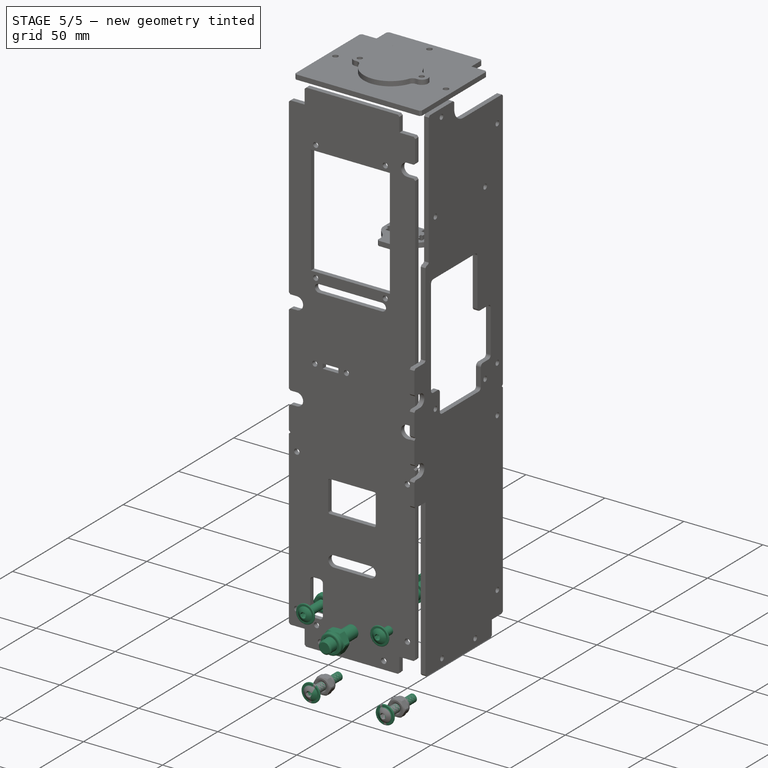
[diagram: stage 5 of 5 — iso view after this stage's code; geometry added in this stage tinted green]
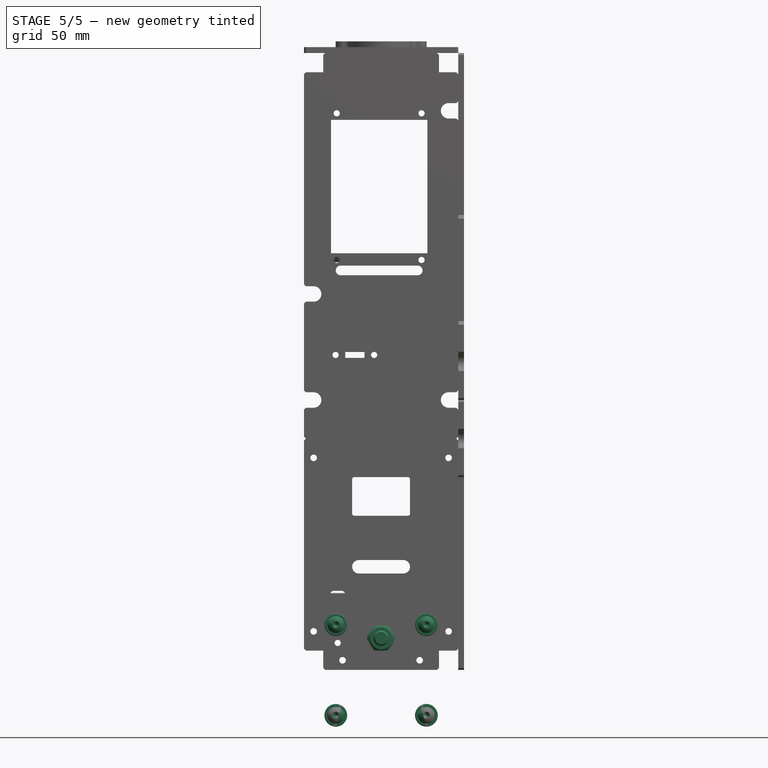
[diagram: stage 5 of 5 — front view after this stage's code; geometry added in this stage tinted green]
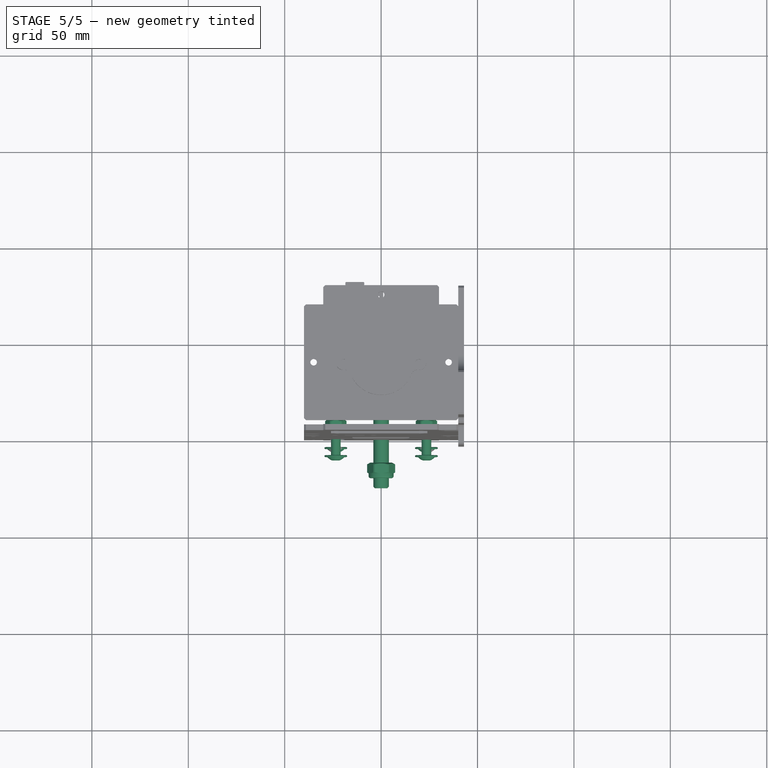
[diagram: stage 5 of 5 — top view after this stage's code; geometry added in this stage tinted green]
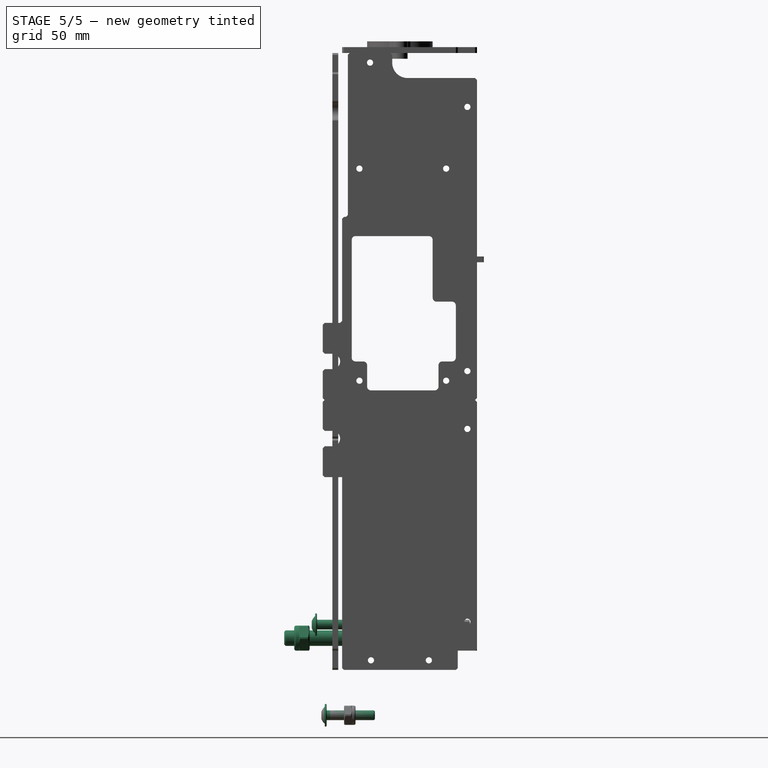
[diagram: stage 5 of 5 — right view after this stage's code; geometry added in this stage tinted green]
FEATURE [PartDesign::Plane] DatumPlane001
  AttachmentOffset = pos=(0,0,-65) rot=(0,0,1;0rad)
  AttachmentSupport = -> [XZ_Plane017]
  InvalidShape = false
  Length = 100
  MapMode = 5
  MinimumLength = 10
  MinimumWidth = 10
  Placement = pos=(0,65,1.44e-14) rot=(1,0,0;1.5708rad)
  ResizeMode = 1
  Support = -> [XZ_Plane017]
  TreeRank = 0
  ValidateShape = true
  Width = 100
FEATURE [Sketcher::SketchObject] Sketch023
  ArcFitTolerance = 0
  AttachmentSupport = -> [DatumPlane001]
  ExternalBSplineMaxDegree = 0
  ExternalBSplineTolerance = 0
  FullyConstrained = true
  InternalTolerance = 1e-06
  InvalidShape = false
  MakeInternals = false
  MapMode = 5
  Placement = pos=(0,65,1.44e-14) rot=(1,0,0;1.5708rad)
  Support = -> [DatumPlane001]
  TreeRank = 0
  ValidateShape = true
  sketch-geometry (8):
    g0: LineSegment StartX=-30 StartY=0 StartZ=0 EndX=-30 EndY=10 EndZ=0
    g1: LineSegment StartX=-30 StartY=10 StartZ=0 EndX=-40 EndY=10 EndZ=0
    g2: LineSegment StartX=-40 StartY=10 StartZ=0 EndX=-40 EndY=30 EndZ=0
    g3: LineSegment StartX=-40 StartY=30 StartZ=0 EndX=40 EndY=30 EndZ=0
    g4: LineSegment StartX=40 StartY=30 StartZ=0 EndX=40 EndY=10 EndZ=0
    g5: LineSegment StartX=40 StartY=10 StartZ=0 EndX=30 EndY=10 EndZ=0
    g6: LineSegment StartX=30 StartY=10 StartZ=0 EndX=30 EndY=3.60814e-11 EndZ=0
    g7: LineSegment StartX=30 StartY=3.60814e-11 StartZ=0 EndX=-30 EndY=0 EndZ=0
  constraints (22):
    c: PointOnObject(g0,g-1)
    c: Vertical(g0)
    c: Coincident(g0,g1)
    c: Horizontal(g1)
    c: Coincident(g1,g2)
    c: Vertical(g2)
    c: Coincident(g2,g3)
    c: Horizontal(g3)
    c: Coincident(g3,g4)
    c: Vertical(g4)
    c: Coincident(g4,g5)
    c: Horizontal(g5)
    c: Coincident(g5,g6)
    c: Vertical(g6)
    c: Coincident(g6,g7)
    c: Coincident(g7,g0)
    c: Symmetric(g0,g6,g-1)
    c: DistanceX(g7,g7) = 60
    c: DistanceY(g0,g0) = 10
    c: Symmetric(g1,g4,g-2)
    c: Equal(g1,g0)
    c: DistanceY(g6,g3) = 30
FEATURE [PartDesign::Pad] Pad015
  AddSubType = 0
  AutoTaperInnerAngle = false
  CheckUpToFaceLimits = true
  ClaimChildren = false
  Direction = (1,1,1)
  Fit = 0
  FitJoin = 0
  InnerFit = 0
  InnerFitJoin = 0
  InvalidShape = false
  Length = 5
  Length2 = 100
  Linearize = true
  NewSolid = false
  Placement = pos=(0,65,1.44e-14) rot=(1,0,0;1.5708rad)
  Profile = -> Sketch023
  Refine = true
  Suppress = false
  TaperInnerAngle = 0
  TaperInnerAngleRev = 0
  TreeRank = 0
  Type = 0
  ValidateShape = true
  _ProfileBasedVersion = 1
FEATURE [Sketcher::SketchObject] Sketch024
  ArcFitTolerance = 0
  AttachmentSupport = -> [DatumPlane001]
  ExternalBSplineMaxDegree = 0
  ExternalBSplineTolerance = 0
  ExternalGeometry = -> [Pad015]
  FullyConstrained = true
  InternalTolerance = 1e-06
  InvalidShape = false
  MakeInternals = false
  MapMode = 5
  Placement = pos=(0,65,1.44e-14) rot=(1,0,0;1.5708rad)
  Support = -> [DatumPlane001]
  TreeRank = 0
  ValidateShape = true
  sketch-geometry (5):
    g0: Circle CenterX=0 CenterY=16.5 CenterZ=0 NormalX=0 NormalY=0 NormalZ=1 AngleXU=0 Radius=4
    g1: Circle CenterX=-35 CenterY=20 CenterZ=0 NormalX=0 NormalY=0 NormalZ=1 AngleXU=0 Radius=1.75
    g2: Circle CenterX=35 CenterY=20 CenterZ=0 NormalX=0 NormalY=0 NormalZ=1 AngleXU=0 Radius=1.75
    g3: LineSegment [constr] StartX=-35 StartY=10 StartZ=0 EndX=-35 EndY=30 EndZ=0
    g4: LineSegment [constr] StartX=-30 StartY=5 StartZ=0 EndX=30 EndY=5 EndZ=0
  constraints (13):
    c: PointOnObject(g0,g-2)
    c: DistanceY(g-1,g0) = 16.5
    c: Diameter(g0) = 8
    c: Vertical(g3)
    c: Symmetric(g-3,g-4,g3)
    c: Symmetric(g1,g2,g-2)
    c: PointOnObject(g3,g-7)
    c: Symmetric(g3,g3,g1)
    c: Equal(g1,g2)
    c: Diameter(g1) = 3.5
    c: PointOnObject(g4,g-4)
    c: Horizontal(g4)
    c: Symmetric(g-6,g-5,g4)
FEATURE [PartDesign::Pocket] Pocket009
  AddSubType = 1
  AutoTaperInnerAngle = false
  BaseFeature = -> Pad015
  CheckUpToFaceLimits = true
  ClaimChildren = false
  Fit = 0
  FitJoin = 0
  InnerFit = 0
  InnerFitJoin = 0
  InvalidShape = false
  Length = 5
  Length2 = 100
  Linearize = true
  NewSolid = false
  Placement = pos=(0,65,1.44e-14) rot=(1,0,0;1.5708rad)
  Profile = -> Sketch024
  Refine = true
  Reversed = true
  Suppress = false
  TaperInnerAngle = 0
  TaperInnerAngleRev = 0
  TreeRank = 0
  Type = 1
  ValidateShape = true
  _ProfileBasedVersion = 1
  _Version = 0
FEATURE [PartDesign::Chamfer] Chamfer001
  AddSubType = 0
  Angle = 45
  Base = -> Pocket009 [Edge29,Edge30,Edge5,Edge1,Edge8,Edge28]
  BaseFeature = -> Pocket009
  ChamferType = 0
  FlipDirection = false
  InvalidShape = false
  NewSolid = false
  Placement = pos=(0,65,1.44e-14) rot=(1,0,0;1.5708rad)
  Refine = true
  Size = 1
  Size2 = 1
  SupportTransform = false
  Suppress = false
  TreeRank = 0
  ValidateShape = true
FEATURE [PartDesign::Body] Body014  label="PlaqueExterneSupportRoue"
  AutoGroupSolids = false
  ClaimAllChildren = false
  ExportMode = 0
  Group = -> [DatumPlane001,Sketch023,Pad015,Sketch024,Pocket009,Chamfer001]
  InvalidShape = false
  Origin = -> Origin020
  SingleSolid = true
  Tip = -> Chamfer001
  TreeRank = 0
  ValidateShape = true
  _ExportChildren = -> [DatumPlane001,Pad015,Pocket009,Chamfer001]
  _GroupVersion = 1
FEATURE [Part::FeaturePython] Screw004  label="M8x90-Screw"  # Fasteners workbench fastener (typed FeaturePython)
  InvalidShape = false
  Placement = pos=(0,65,16.5) rot=(-1,0,0;1.5708rad)
  TreeRank = 0
  ValidateShape = true
  baseObject = -> Body014 [?Edge21]
  diameter = 9
  invert = true
  leftHanded = false
  length = 18
  lengthCustom = 90
  matchOuter = false
  offset = 0
  thread = false
  type = 26
FEATURE [PartDesign::Plane] DatumPlane002
  AttachmentOffset = pos=(0,0,-60) rot=(0,0,1;0rad)
  AttachmentSupport = -> [XZ_Plane018]
  InvalidShape = false
  Length = 100
  MapMode = 5
  MinimumLength = 10
  MinimumWidth = 10
  Placement = pos=(0,60,1.33e-14) rot=(1,0,0;1.5708rad)
  ResizeMode = 1
  Support = -> [XZ_Plane018]
  TreeRank = 0
  ValidateShape = true
  Width = 100
FEATURE [Sketcher::SketchObject] Sketch025
  ArcFitTolerance = 0
  AttachmentSupport = -> [DatumPlane002]
  ExternalBSplineMaxDegree = 0
  ExternalBSplineTolerance = 0
  FullyConstrained = true
  InternalTolerance = 1e-06
  InvalidShape = false
  MakeInternals = false
  MapMode = 5
  Placement = pos=(0,60,1.33e-14) rot=(1,0,0;1.5708rad)
  Support = -> [DatumPlane002]
  TreeRank = 0
  ValidateShape = true
  sketch-geometry (2):
    g0: Circle CenterX=0 CenterY=16.5 CenterZ=0 NormalX=0 NormalY=0 NormalZ=1 AngleXU=0 Radius=4
    g1: Circle CenterX=0 CenterY=16.5 CenterZ=0 NormalX=0 NormalY=0 NormalZ=1 AngleXU=0 Radius=5.5
  constraints (5):
    c: DistanceY(g-1,g0) = 16.5
    c: PointOnObject(g0,g-2)
    c: Coincident(g1,g0)
    c: Diameter(g0) = 8
    c: Diameter(g1) = 11
FEATURE [PartDesign::Pad] Pad016
  AddSubType = 0
  AutoTaperInnerAngle = false
  CheckUpToFaceLimits = true
  ClaimChildren = false
  Direction = (1,1,1)
  Fit = 0
  FitJoin = 0
  InnerFit = 0
  InnerFitJoin = 0
  InvalidShape = false
  Length = 3
  Length2 = 100
  Linearize = true
  NewSolid = false
  Placement = pos=(0,60,1.33e-14) rot=(1,0,0;1.5708rad)
  Profile = -> Sketch025
  Refine = true
  Suppress = false
  TaperInnerAngle = 0
  TaperInnerAngleRev = 0
  TreeRank = 0
  Type = 0
  ValidateShape = true
  _ProfileBasedVersion = 1
FEATURE [PartDesign::Body] Body015  label="RondelleLaser3mm"
  AutoGroupSolids = false
  ClaimAllChildren = false
  ExportMode = 0
  Group = -> [DatumPlane002,Sketch025,Pad016]
  InvalidShape = false
  Origin = -> Origin021
  SingleSolid = true
  Tip = -> Pad016
  TreeRank = 0
  ValidateShape = true
  _ExportChildren = -> [DatumPlane002,Pad016]
  _GroupVersion = 1
FEATURE [PartDesign::Plane] DatumPlane003
  AttachmentOffset = pos=(0,0,5) rot=(0,0,1;0rad)
  AttachmentSupport = -> [XZ_Plane020]
  InvalidShape = false
  Length = 100
  MapMode = 5
  MinimumLength = 10
  MinimumWidth = 10
  Placement = pos=(0,-5,-1.1e-15) rot=(1,0,0;1.5708rad)
  ResizeMode = 1
  Support = -> [XZ_Plane020]
  TreeRank = 0
  ValidateShape = true
  Width = 100
FEATURE [Sketcher::SketchObject] Sketch026
  ArcFitTolerance = 0
  AttachmentSupport = -> [DatumPlane003]
  ExternalBSplineMaxDegree = 0
  ExternalBSplineTolerance = 0
  FullyConstrained = true
  InternalTolerance = 1e-06
  InvalidShape = false
  MakeInternals = false
  MapMode = 5
  Placement = pos=(0,-5,-1.1e-15) rot=(1,0,0;1.5708rad)
  Support = -> [DatumPlane003]
  TreeRank = 0
  ValidateShape = true
  sketch-geometry (24):
    g0: LineSegment [constr] StartX=-40 StartY=0 StartZ=0 EndX=40 EndY=0 EndZ=0
    g1: LineSegment [constr] StartX=40 StartY=0 StartZ=0 EndX=40 EndY=45 EndZ=0
    g2: LineSegment [constr] StartX=40 StartY=45 StartZ=0 EndX=-40 EndY=45 EndZ=0
    g3: LineSegment [constr] StartX=-40 StartY=45 StartZ=0 EndX=-40 EndY=0 EndZ=0
    g4: Circle CenterX=0 CenterY=16.5 CenterZ=0 NormalX=0 NormalY=0 NormalZ=1 AngleXU=0 Radius=4
    g5: LineSegment StartX=-40 StartY=45 StartZ=0 EndX=-30 EndY=45 EndZ=0
    g6: LineSegment StartX=-30 StartY=45 StartZ=0 EndX=-15 EndY=30 EndZ=0
    g7: LineSegment StartX=-15 StartY=30 StartZ=0 EndX=15 EndY=30 EndZ=0
    g8: LineSegment StartX=15 StartY=30 StartZ=0 EndX=30 EndY=45 EndZ=0
    g9: LineSegment StartX=30 StartY=45 StartZ=0 EndX=40 EndY=45 EndZ=0
    g10: LineSegment StartX=-40 StartY=45 StartZ=0 EndX=-40 EndY=10 EndZ=0
    g11: LineSegment StartX=-30 StartY=0 StartZ=0 EndX=30 EndY=0 EndZ=0
    g12: LineSegment StartX=40 StartY=10 StartZ=0 EndX=40 EndY=45 EndZ=0
    g13: LineSegment StartX=-40 StartY=10 StartZ=0 EndX=-35 EndY=10 EndZ=0
    g14: LineSegment StartX=-30 StartY=0 StartZ=0 EndX=-30 EndY=5 EndZ=0
    g15: LineSegment StartX=30 StartY=0 StartZ=0 EndX=30 EndY=5 EndZ=0
    g16: LineSegment StartX=40 StartY=10 StartZ=0 EndX=35 EndY=10 EndZ=0
    g17: ArcOfCircle CenterX=-35 CenterY=5 CenterZ=0 NormalX=0 NormalY=0 NormalZ=1 AngleXU=0 Radius=5 StartAngle=1e-16 EndAngle=1.5708
    g18: ArcOfCircle CenterX=35 CenterY=5 CenterZ=0 NormalX=0 NormalY=0 NormalZ=1 AngleXU=0 Radius=5 StartAngle=1.5708 EndAngle=3.14159
    g19: LineSegment [constr] StartX=-35 StartY=10 StartZ=0 EndX=-35 EndY=45 EndZ=0
    g20: Circle CenterX=-35 CenterY=16 CenterZ=0 NormalX=0 NormalY=0 NormalZ=1 AngleXU=0 Radius=1.6
    g21: Circle CenterX=-35 CenterY=39 CenterZ=0 NormalX=0 NormalY=0 NormalZ=1 AngleXU=0 Radius=1.6
    g22: Circle CenterX=35 CenterY=39 CenterZ=0 NormalX=0 NormalY=0 NormalZ=1 AngleXU=0 Radius=1.6
    g23: Circle CenterX=35 CenterY=16 CenterZ=0 NormalX=0 NormalY=0 NormalZ=1 AngleXU=0 Radius=1.6
  constraints (64):
    c: Coincident(g0,g1)
    c: Coincident(g1,g2)
    c: Coincident(g2,g3)
    c: Coincident(g3,g0)
    c: Horizontal(g2)
    c: Vertical(g1)
    c: Vertical(g3)
    c: PointOnObject(g0,g-1)
    c: Symmetric(g0,g0,g-2)
    c: DistanceX(g0,g0) = 80
    c: PointOnObject(g4,g-2)
    c: DistanceY(g4) = 16.5
    c: Diameter(g4) = 8
    c: Coincident(g5,g3)
    c: PointOnObject(g5,g2)
    c: Coincident(g5,g6)
    c: Coincident(g6,g7)
    c: Coincident(g7,g8)
    c: PointOnObject(g8,g2)
    c: Coincident(g8,g9)
    c: Coincident(g9,g1)
    c: Equal(g9,g5)
    c: DistanceX(g5,g5) = 10
    c: DistanceY(g6) = 30
    c: DistanceY(g3) = 45
    c: Symmetric(g6,g7,g-2)
    c: Angle(g2,g8) = 0.785398
    c: Coincident(g10,g5)
    c: PointOnObject(g10,g3)
    c: PointOnObject(g11,g0)
    c: Coincident(g12,g9)
    c: Symmetric(g10,g12,g-2)
    c: Symmetric(g11,g11,g-2)
    c: Coincident(g13,g10)
    c: Horizontal(g13)
    c: Coincident(g14,g11)
    c: Vertical(g14)
    c: Coincident(g15,g11)
    c: Vertical(g15)
    c: Coincident(g16,g12)
    c: Horizontal(g16)
    c: DistanceY(g0,g12) = 10
    c: DistanceX(g0,g11) = 10
    c: Equal(g14,g15)
    c: Equal(g13,g16)
    c: Equal(g14,g13)
    c: Coincident(g17,g13)
    c: Coincident(g18,g15)
    c: Tangent(g18,g16) = -1.5708
    c: Tangent(g17,g14) = -1.5708
    c: DistanceX(g16,g12) = 5
    c: Coincident(g19,g13)
    c: PointOnObject(g19,g5)
    c: Vertical(g19)
    c: PointOnObject(g20,g19)
    c: PointOnObject(g21,g19)
    c: Symmetric(g23,g20,g-2)
    c: Symmetric(g21,g22,g-2)
    c: Equal(g21,g20)
    c: Equal(g20,g23)
    c: Equal(g23,g22)
    c: Diameter(g21) = 3.2
    c: DistanceY(g21,g19) = 6
    c: DistanceY(g13,g20) = 6
FEATURE [PartDesign::Pad] Pad017
  AddSubType = 0
  AutoTaperInnerAngle = false
  CheckUpToFaceLimits = true
  ClaimChildren = false
  Direction = (1,1,1)
  Fit = 0
  FitJoin = 0
  InnerFit = 0
  InnerFitJoin = 0
  InvalidShape = false
  Length = 5
  Length2 = 100
  Linearize = true
  NewSolid = false
  Placement = pos=(0,-5,-1.1e-15) rot=(1,0,0;1.5708rad)
  Profile = -> Sketch026
  Refine = true
  Suppress = false
  TaperInnerAngle = 0
  TaperInnerAngleRev = 0
  TreeRank = 0
  Type = 0
  ValidateShape = true
  _ProfileBasedVersion = 1
FEATURE [PartDesign::Chamfer] Chamfer002
  AddSubType = 0
  Angle = 45
  Base = -> Pad017 [Edge11,Edge8,Edge1,Edge29,Edge26,Edge38,Edge14,Edge23]
  BaseFeature = -> Pad017
  ChamferType = 0
  FlipDirection = false
  InvalidShape = false
  NewSolid = false
  Placement = pos=(0,-5,-1.1e-15) rot=(1,0,0;1.5708rad)
  Refine = true
  Size = 1
  Size2 = 1
  SupportTransform = false
  Suppress = false
  TreeRank = 0
  ValidateShape = true
FEATURE [PartDesign::Body] Body016  label="PlaqueInterneSupportRoue"
  AutoGroupSolids = false
  ClaimAllChildren = false
  ExportMode = 0
  Group = -> [DatumPlane003,Sketch026,Pad017,Chamfer002]
  InvalidShape = false
  Origin = -> Origin023
  SingleSolid = true
  Tip = -> Chamfer002
  TreeRank = 0
  ValidateShape = true
  _ExportChildren = -> [DatumPlane003,Pad017,Chamfer002]
  _GroupVersion = 1
FEATURE [Part::FeaturePython] Nut  label="M8-Nut"  # Fasteners workbench fastener (typed FeaturePython)
  InvalidShape = false
  Placement = pos=(0,-11.8,16.5) rot=(1,0,0;1.5708rad)
  TreeRank = 0
  ValidateShape = true
  baseObject = -> Washer [Edge1]
  diameter = 6
  invert = false
  leftHanded = false
  matchOuter = false
  offset = 0
  thread = false
  type = 5
FEATURE [Part::FeaturePython] Washer  label="M8-Washer"  # Fasteners workbench fastener (typed FeaturePython)
  InvalidShape = false
  Placement = pos=(0,-10,16.5) rot=(1,0,0;1.5708rad)
  TreeRank = 0
  ValidateShape = true
  baseObject = -> Body016 [Edge54]
  diameter = 8
  invert = false
  matchOuter = false
  offset = 0
  type = 3
FEATURE [App::Link] Link  label="Link(OmniWheelequipedV2)"
  AutoLinkLabel = true
  AutoPlacement = true
  LinkPlacement = pos=(0,56.2,16.5) rot=(0,1,0;0rad)
  LinkedObject = -> <external omniwheel.FCStd>#Part016
  Placement = pos=(0,56.2,16.5) rot=(0,1,0;0rad)
  SyncGroupVisibility = false
  TreeRank = 0
  _LinkVersion = 1
FEATURE [App::Part] Part  label="Ensemble Roue"
  ClaimAllChildren = false
  ExportMode = 1
  Group = -> [Link,Body014,Screw004,Body015,Body016,Nut,Washer]
  Origin = -> Origin
  TreeRank = 0
  _ExportChildren = -> [Link,Body014,Screw004,Body015,Body016,Nut,Washer]
  _GroupVersion = 1
FEATURE [Part::FeaturePython] Screw007  label="M5x25-Screw036"  # Fasteners workbench fastener (typed FeaturePython)
  InvalidShape = false
  Placement = pos=(23.4943,-3,-23.5) rot=(1,0,0;1.5708rad)
  TreeRank = 0
  ValidateShape = true
  baseObject = -> Body017 [?Edge45]
  diameter = 3
  invert = false
  leftHanded = false
  length = 6
  lengthCustom = 25
  matchOuter = false
  offset = -5
  thread = false
  type = 39
FEATURE [Sketcher::SketchObject] Sketch030
  ArcFitTolerance = 0
  AttachmentSupport = -> [XZ_Plane023]
  ExternalBSplineMaxDegree = 0
  ExternalBSplineTolerance = 0
  FullyConstrained = true
  InternalTolerance = 1e-06
  InvalidShape = false
  MakeInternals = false
  MapMode = 5
  Placement = pos=(0,0,0) rot=(1,0,0;1.5708rad)
  Support = -> [XZ_Plane023]
  TreeRank = 0
  ValidateShape = true
  sketch-geometry (8):
    g0: ArcOfCircle CenterX=-23.5 CenterY=-23.5 CenterZ=0 NormalX=0 NormalY=0 NormalZ=1 AngleXU=0 Radius=7 StartAngle=2.64609 EndAngle=3.14159
    g1: ArcOfCircle CenterX=23.5 CenterY=-23.5 CenterZ=0 NormalX=0 NormalY=0 NormalZ=1 AngleXU=0 Radius=7 StartAngle=1e-16 EndAngle=0.495503
    g2: LineSegment StartX=-30.5 StartY=-23.5 StartZ=0 EndX=-30.5 EndY=-30 EndZ=0
    g3: LineSegment StartX=-30.5 StartY=-30 StartZ=0 EndX=30.5 EndY=-30 EndZ=0
    g4: LineSegment StartX=30.5 StartY=-23.5 StartZ=0 EndX=30.5 EndY=-30 EndZ=0
    g5: LineSegment StartX=-29.6581 StartY=-20.1717 StartZ=0 EndX=-14.5155 EndY=7.84533 EndZ=0
    g6: ArcOfCircle CenterX=0 CenterY=0 CenterZ=0 NormalX=0 NormalY=0 NormalZ=1 AngleXU=0 Radius=16.5 StartAngle=0.495503 EndAngle=2.64609
    g7: LineSegment StartX=14.5155 StartY=7.84533 StartZ=0 EndX=29.6581 EndY=-20.1717 EndZ=0
  constraints (18):
    c: DistanceX(g0,g1) = 47
    c: DistanceY(g0,g-1) = 23.5
    c: Diameter(g0) = 14
    c: Coincident(g3,g2)
    c: Coincident(g4,g3)
    c: Vertical(g4)
    c: Coincident(g6,g-1)
    c: Tangent(g7,g6) = 1.5708
    c: Tangent(g7,g1) = 1.5708
    c: Tangent(g6,g5) = 1.5708
    c: Tangent(g2,g0) = -1.5708
    c: Tangent(g5,g0) = 1.5708
    c: Tangent(g4,g1) = 1.5708
    c: Symmetric(g3,g2,g-2)
    c: DistanceY(g3,g6) = 30
    c: Vertical(g2)
    c: Symmetric(g1,g0,g-2)
    c: Diameter(g6) = 33
FEATURE [PartDesign::Pocket] Pocket011
  AddSubType = 1
  AutoTaperInnerAngle = false
  BaseFeature = -> Chamfer003
  CheckUpToFaceLimits = true
  ClaimChildren = false
  Fit = 0
  FitJoin = 0
  InnerFit = 0
  InnerFitJoin = 0
  InvalidShape = false
  Length = 5
  Length2 = 100
  Linearize = true
  NewSolid = false
  Placement = pos=(0,0,0) rot=(1,0,0;1.5708rad)
  Profile = -> Sketch030
  Refine = true
  Reversed = true
  Suppress = false
  TaperInnerAngle = 0
  TaperInnerAngleRev = 0
  TreeRank = 0
  Type = 1
  ValidateShape = true
  _ProfileBasedVersion = 1
  _Version = 0
FEATURE [PartDesign::Chamfer] Chamfer004
  AddSubType = 0
  Angle = 45
  Base = -> Pocket011 [Edge54,Edge2]
  BaseFeature = -> Pocket011
  ChamferType = 0
  FlipDirection = false
  InvalidShape = false
  NewSolid = false
  Placement = pos=(0,0,0) rot=(1,0,0;1.5708rad)
  Refine = true
  Size = 2
  Size2 = 1
  SupportTransform = false
  Suppress = false
  TreeRank = 0
  ValidateShape = true
FEATURE [PartDesign::Body] Body017  label="SupportMoteur5mm"
  AutoGroupSolids = false
  ClaimAllChildren = false
  ExportMode = 0
  Group = -> [Sketch027,Pad018,Fillet007,Sketch029,Pocket010,Chamfer003,Sketch030,Pocket011,Chamfer004]
  InvalidShape = false
  Origin = -> Origin026
  Placement = pos=(0,-3,0) rot=(0,0,1;0rad)
  SingleSolid = true
  Tip = -> Chamfer004
  TreeRank = 0
  ValidateShape = true
  _ExportChildren = -> [Pad018,Fillet007,Pocket010,Chamfer003,Pocket011,Chamfer004]
  _GroupVersion = 1
FEATURE [Part::FeaturePython] Nut001  label="M6-Nut"  # Fasteners workbench fastener (typed FeaturePython)
  InvalidShape = false
  Placement = pos=(-23.5,6,23.5) rot=(-1,0,0;1.5708rad)
  TreeRank = 0
  ValidateShape = true
  baseObject = -> Body018 [Edge16]
  diameter = 4
  invert = true
  leftHanded = false
  matchOuter = false
  offset = 6
  thread = false
  type = 5
FEATURE [PartDesign::Body] Body018  label="SupportMoteur3mm"
  AutoGroupSolids = false
  ClaimAllChildren = false
  ExportMode = 0
  Group = -> [Sketch028,Pad019,Fillet006]
  InvalidShape = false
  Origin = -> Origin027
  SingleSolid = true
  Tip = -> Fillet006
  TreeRank = 0
  ValidateShape = true
  _ExportChildren = -> [Pad019,Fillet006]
  _GroupVersion = 1
FEATURE [Part::FeaturePython] Nut002  label="M6-Nut013"  # Fasteners workbench fastener (typed FeaturePython)
  InvalidShape = false
  Placement = pos=(23.5,6,23.5) rot=(-1,0,0;1.5708rad)
  TreeRank = 0
  ValidateShape = true
  baseObject = -> Body018 [Edge15]
  diameter = 4
  invert = true
  leftHanded = false
  matchOuter = false
  offset = 6
  thread = false
  type = 5
FEATURE [Part::FeaturePython] Screw005  label="M5x25-Screw"  # Fasteners workbench fastener (typed FeaturePython)
  InvalidShape = false
  Placement = pos=(-23.4943,-8,23.5) rot=(1,0,0;1.5708rad)
  TreeRank = 0
  ValidateShape = true
  diameter = 3
  invert = false
  leftHanded = false
  length = 6
  lengthCustom = 25
  matchOuter = false
  offset = 0
  thread = false
  type = 39
FEATURE [Part::FeaturePython] Screw006  label="M5x25-Screw037"  # Fasteners workbench fastener (typed FeaturePython)
  InvalidShape = false
  Placement = pos=(23.4943,-8,23.5) rot=(1,0,0;1.5708rad)
  TreeRank = 0
  ValidateShape = true
  baseObject = -> Body017 [Edge31]
  diameter = 3
  invert = false
  leftHanded = false
  length = 6
  lengthCustom = 25
  matchOuter = false
  offset = 0
  thread = false
  type = 39
FEATURE [Part::FeaturePython] Screw008  label="M5x25-Screw038"  # Fasteners workbench fastener (typed FeaturePython)
  InvalidShape = false
  Placement = pos=(-23.4943,-3,-23.5) rot=(1,0,0;1.5708rad)
  TreeRank = 0
  ValidateShape = true
  baseObject = -> Body017 [?Edge42]
  diameter = 3
  invert = false
  leftHanded = false
  length = 6
  lengthCustom = 25
  matchOuter = false
  offset = -5
  thread = false
  type = 39
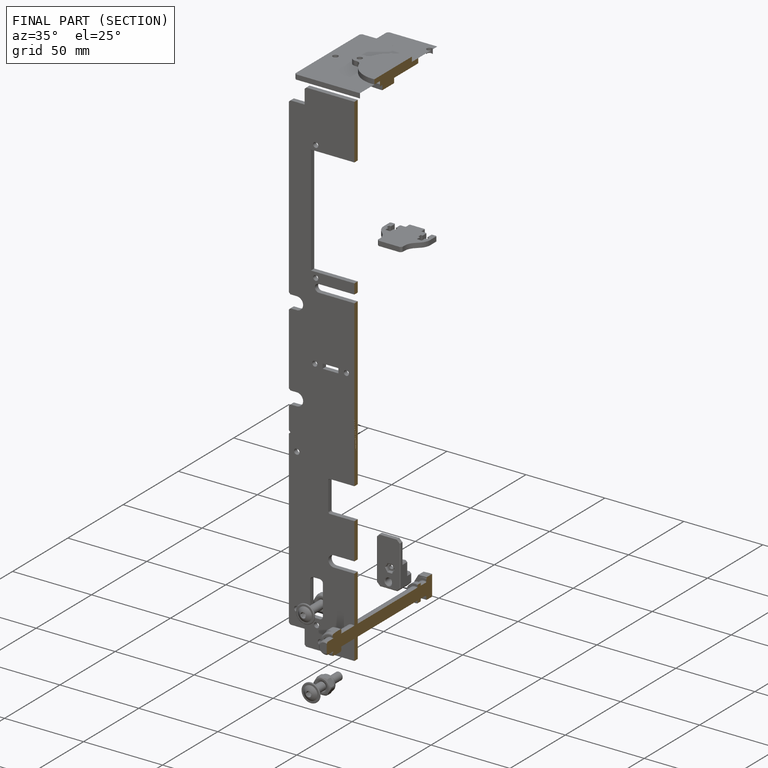
[diagram: finished part — half-section view (interior)]
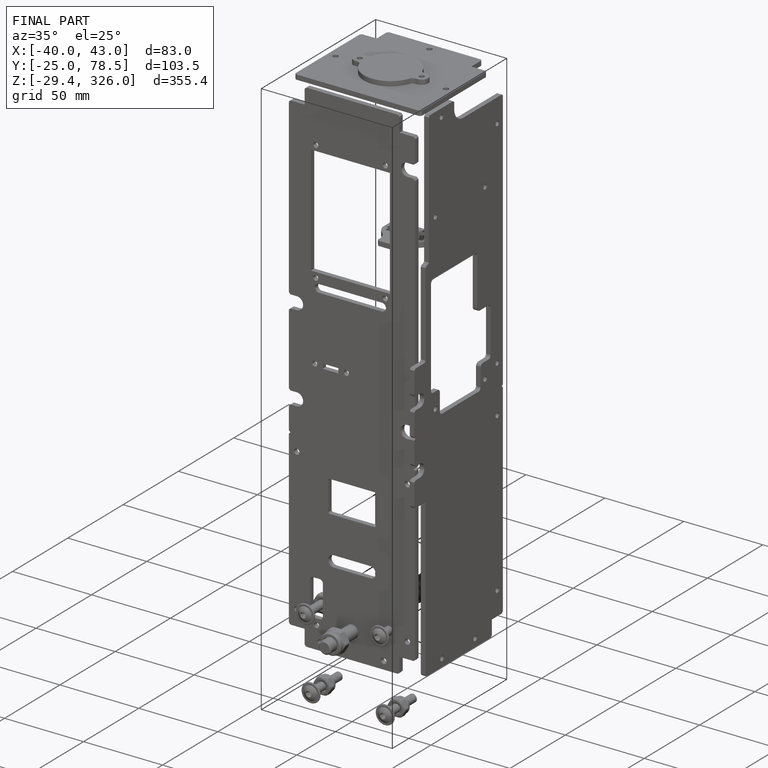
[diagram: finished part — iso view with bounding-box wireframe]
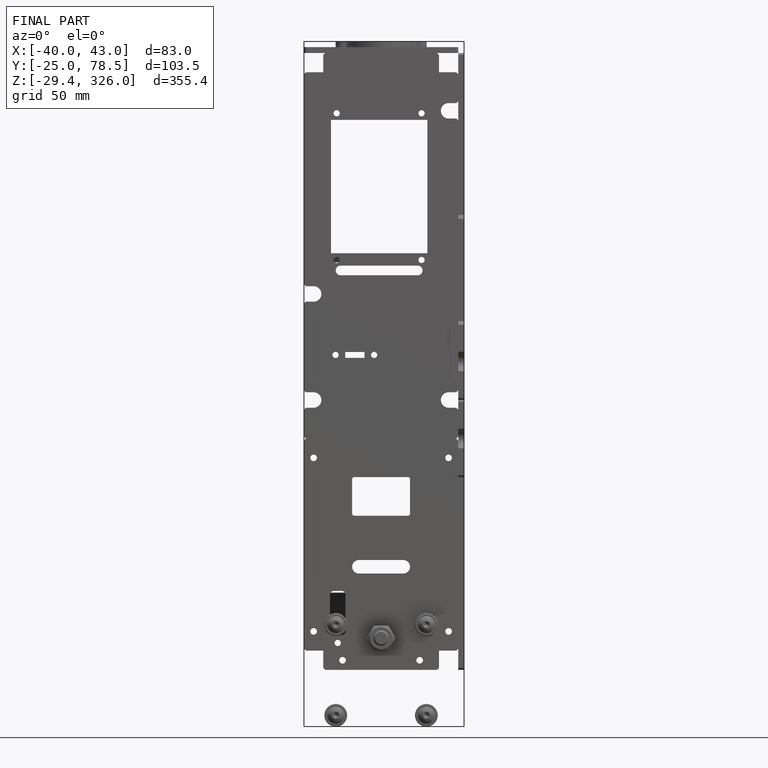
[diagram: finished part — front view with bounding-box wireframe]
